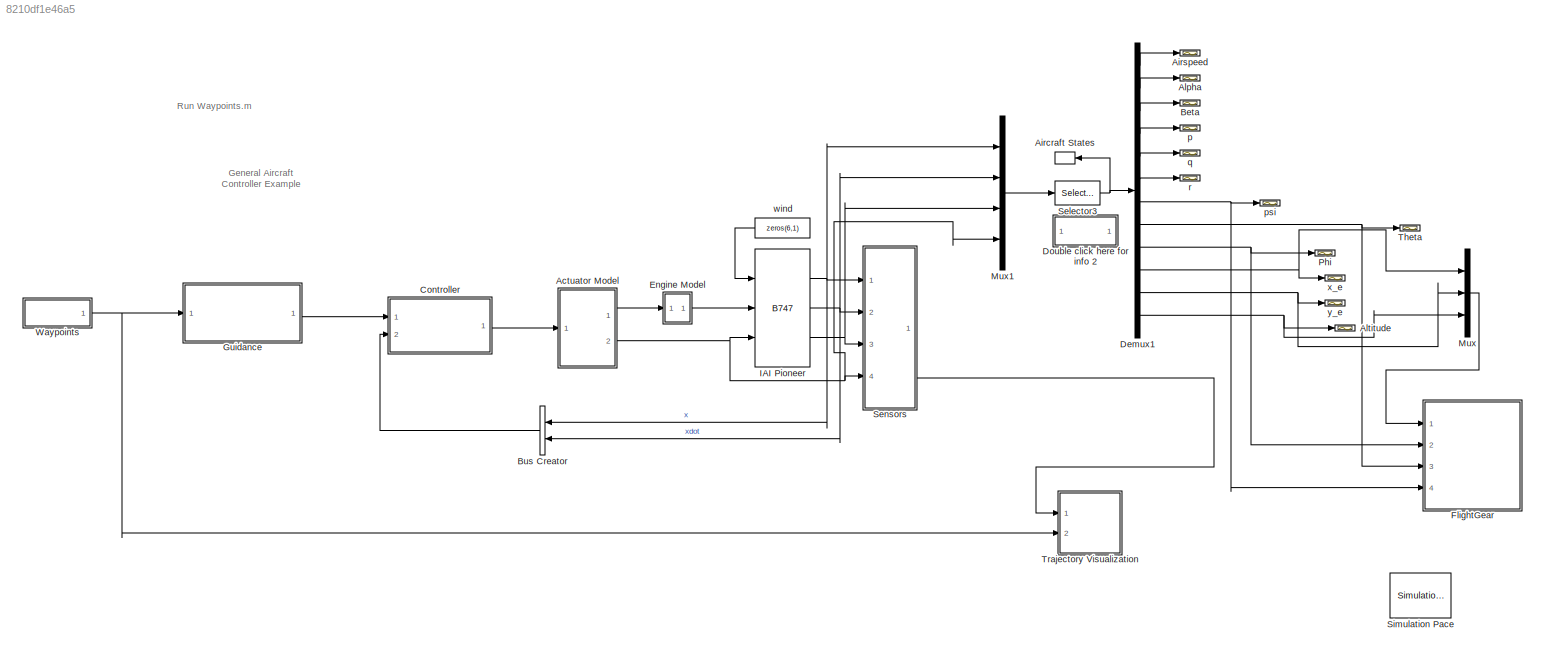
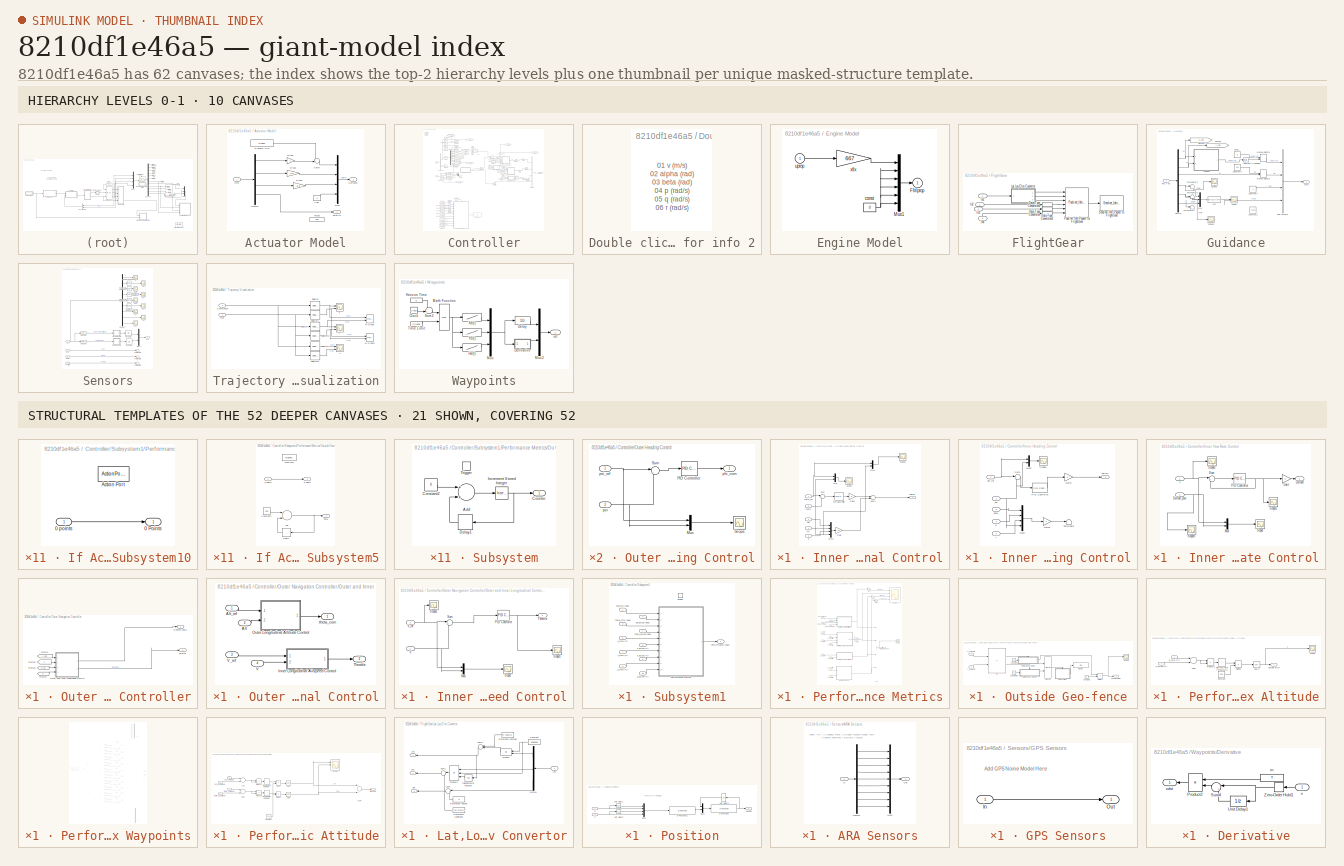
[diagram: thumbnail index - top-2 hierarchy levels (10 canvases) + 21 structural-template representatives of the remaining 52 canvases]
MODEL slx_8210df1e46a5
KIND model
CONFIG AbsTol = auto
CONFIG EnableMultiTasking = on
CONFIG FixedStep = T
CONFIG InitFcn = Waypoints\nRollPitchTracking_Stab_ControlPioneer
CONFIG MaxStep = auto
CONFIG MinStep = auto
CONFIG RelTol = 1e-3
CONFIG SampleTimeConstraint = Unconstrained
CONFIG Solver = VariableStepAuto
CONFIG SolverName = VariableStepAuto
CONFIG StartTime = 0
CONFIG StopTime = 445
BLOCK [Reference]  IAI Pioneer   REF=airlib/B747  (lib defined in mdl_00852699f85c, mdl_b3a2112ccc5d, +1 more)
  Ports = [3, 3]
  SourceBlock = airlib/B747
  SourceType = General Nonlinear Aircraft Model
BLOCK [SubSystem] Actuator Model
  Ports = [1, 2]
  RequestExecContextInheritance = off
BLOCK [Demux] Actuator Model/Demux
  Outputs = [1 1 1 1]
  Ports = [1, 4]
BLOCK [Constant] Actuator Model/Elevator Trim
  Value = 0.0493
BLOCK [Mux] Actuator Model/Mux1
  Ports = [4, 1]
BLOCK [Sum] Actuator Model/Sum5
  IconShape = round
  Inputs = ++|
  Ports = [2, 1]
BLOCK [Outport] Actuator Model/Surfaces
  IconDisplay = Port number
  Port = 2
BLOCK [Outport] Actuator Model/Throttle
  IconDisplay = Port number
BLOCK [Constant] Actuator Model/Thrust
  Value = 0.36
BLOCK [Inport] Actuator Model/cmd
  IconDisplay = Port number
BLOCK [Constant] Actuator Model/flap
  Value = 0
BLOCK [Gain] Actuator Model/wind1
  Gain = -1
BLOCK [Gain] Actuator Model/wind2
  Gain = -1/3
BLOCK [Gain] Actuator Model/wind4
  Gain = -1/3
BLOCK [ToWorkspace] Aircraft States
  Ports = [1]
  SampleTime = 0.05
  VariableName = x
BLOCK [Scope] Airspeed
  Floating = off
  NumInputPorts = 1
  Ports = [1]
  ScopeSpecificationString = Simulink.scopes.TimeScopeBlockCfg('CurrentConfiguration', extmgr.ConfigurationSet(extmgr.Configuration('Core','General UI',true),extmgr.Configuration('Core','Source UI',true),extmgr.Configuration('Sources','WiredSimulink',true,'DataLoggingVariableName','ScopeData2','DataLoggingSaveFormat','StructureWithTime','DataLoggingLimitDataPoints',true,'DataLoggingDecimation','1','DataLoggingDecimateData',tr...<+1776ch>
BLOCK [Scope] Alpha
  Floating = off
  NumInputPorts = 1
  Ports = [1]
  ScopeSpecificationString = Simulink.scopes.TimeScopeBlockCfg('CurrentConfiguration', extmgr.ConfigurationSet(extmgr.Configuration('Core','General UI',true),extmgr.Configuration('Core','Source UI',true),extmgr.Configuration('Sources','WiredSimulink',true,'DataLoggingVariableName','ScopeData3','DataLoggingSaveFormat','StructureWithTime','DataLoggingLimitDataPoints',true,'DataLoggingDecimation','1','DataLoggingDecimateData',tr...<+1780ch>
BLOCK [Scope] Altitude
  Floating = off
  NumInputPorts = 1
  Ports = [1]
  ScopeSpecificationString = Simulink.scopes.TimeScopeBlockCfg('CurrentConfiguration', extmgr.ConfigurationSet(extmgr.Configuration('Core','General UI',true),extmgr.Configuration('Core','Source UI',true),extmgr.Configuration('Sources','WiredSimulink',true,'DataLoggingVariableName','ScopeData4','DataLoggingSaveFormat','StructureWithTime','DataLoggingLimitDataPoints',true,'DataLoggingDecimation','1','DataLoggingDecimateData',tr...<+1856ch>
BLOCK [Scope] Beta
  Floating = off
  NumInputPorts = 1
  Ports = [1]
  ScopeSpecificationString = Simulink.scopes.TimeScopeBlockCfg('CurrentConfiguration', extmgr.ConfigurationSet(extmgr.Configuration('Core','General UI',true),extmgr.Configuration('Core','Source UI',true),extmgr.Configuration('Sources','WiredSimulink',true,'DataLoggingVariableName','ScopeData5','DataLoggingSaveFormat','StructureWithTime','DataLoggingLimitDataPoints',true,'DataLoggingDecimation','1','DataLoggingDecimateData',tr...<+1807ch>
BLOCK [BusCreator] Bus Creator
  DisplayOption = bar
  InheritFromInputs = on
  Inputs = 2
  Ports = [2, 1]
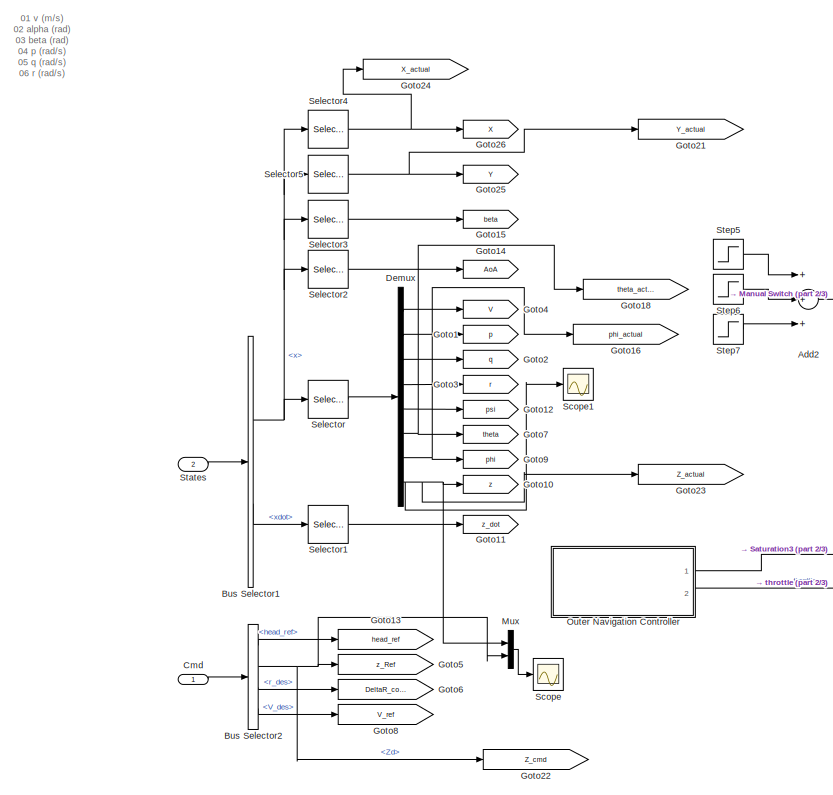
[diagram: Controller - part 1/3, top left region]
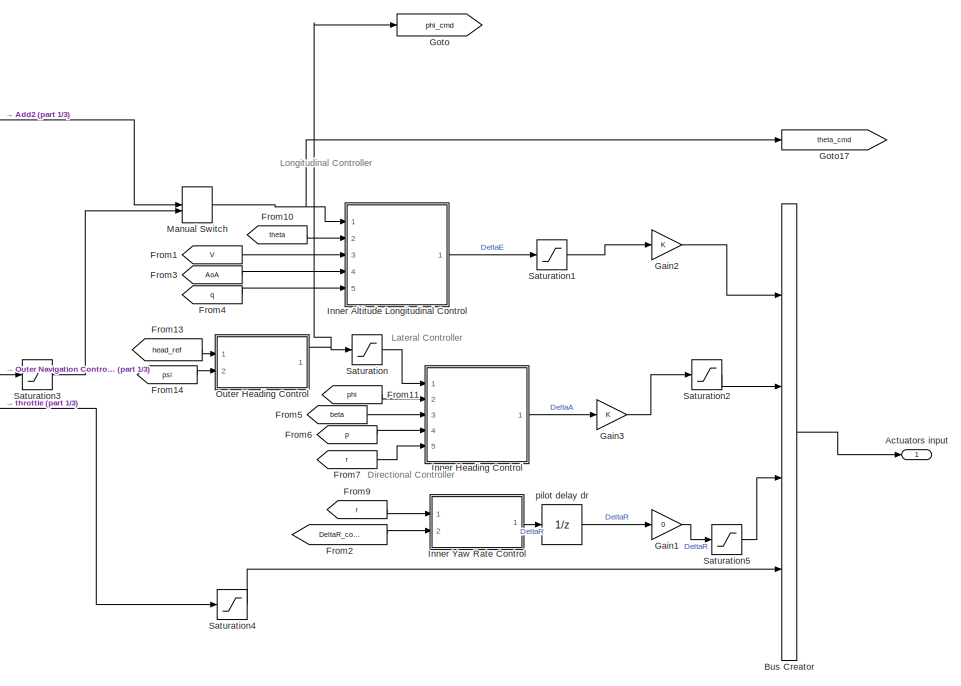
[diagram: Controller - part 2/3, middle right region]
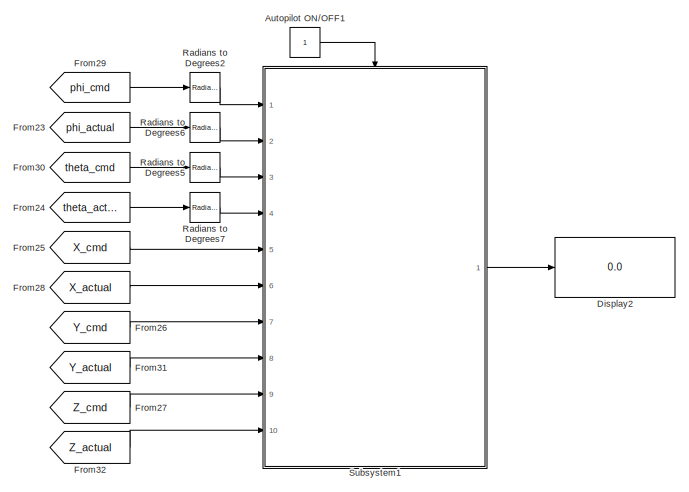
[diagram: Controller - part 3/3, bottom left region]
BLOCK [SubSystem] Controller
  Ports = [2, 1]
  RequestExecContextInheritance = off
BLOCK [Outport] Controller/Actuators input
  IconDisplay = Port number
BLOCK [Sum] Controller/Add2
  InputSameDT = off
  Inputs = +++
  OutDataTypeStr = Inherit: Inherit via internal rule
  Ports = [3, 1]
  SaturateOnIntegerOverflow = off
BLOCK [Constant] Controller/Autopilot ON//OFF1
BLOCK [BusCreator] Controller/Bus Creator
  DisplayOption = bar
  InheritFromInputs = on
  Inputs = 4
  Ports = [4, 1]
BLOCK [BusSelector] Controller/Bus Selector1
  OutputAsBus = off
  OutputSignals = x,xdot
  Ports = [1, 2]
BLOCK [BusSelector] Controller/Bus Selector2
  OutputAsBus = off
  OutputSignals = head_ref,Zd,r_des,V_des
  Ports = [1, 4]
BLOCK [Inport] Controller/Cmd
  IconDisplay = Port number
BLOCK [Demux] Controller/Demux
  DisplayOption = bar
  Outputs = 8
  Ports = [1, 8]
BLOCK [Display] Controller/Display2
  Decimation = 1
  Ports = [1]
BLOCK [From] Controller/From1
  CloseFcn = tagdialog Close
  GotoTag = V
  TagVisibility = global
BLOCK [From] Controller/From10
  CloseFcn = tagdialog Close
  GotoTag = theta
BLOCK [From] Controller/From11
  CloseFcn = tagdialog Close
  GotoTag = phi
BLOCK [From] Controller/From13
  CloseFcn = tagdialog Close
  GotoTag = head_ref
  TagVisibility = global
BLOCK [From] Controller/From14
  CloseFcn = tagdialog Close
  GotoTag = psi
BLOCK [From] Controller/From2
  CloseFcn = tagdialog Close
  GotoTag = DeltaR_comm
  TagVisibility = global
BLOCK [From] Controller/From23
  GotoTag = phi_actual
BLOCK [From] Controller/From24
  GotoTag = theta_actual
BLOCK [From] Controller/From25
  GotoTag = X_cmd
  TagVisibility = global
BLOCK [From] Controller/From26
  GotoTag = Y_cmd
  TagVisibility = global
BLOCK [From] Controller/From27
  GotoTag = Z_cmd
BLOCK [From] Controller/From28
  GotoTag = X_actual
BLOCK [From] Controller/From29
  GotoTag = phi_cmd
BLOCK [From] Controller/From3
  CloseFcn = tagdialog Close
  GotoTag = AoA
  TagVisibility = global
BLOCK [From] Controller/From30
  GotoTag = theta_cmd
BLOCK [From] Controller/From31
  GotoTag = Y_actual
BLOCK [From] Controller/From32
  GotoTag = Z_actual
BLOCK [From] Controller/From4
  CloseFcn = tagdialog Close
  GotoTag = q
BLOCK [From] Controller/From5
  CloseFcn = tagdialog Close
  GotoTag = beta
  TagVisibility = global
BLOCK [From] Controller/From6
  CloseFcn = tagdialog Close
  GotoTag = p
BLOCK [From] Controller/From7
  CloseFcn = tagdialog Close
  GotoTag = r
BLOCK [From] Controller/From9
  CloseFcn = tagdialog Close
  GotoTag = r
BLOCK [Gain] Controller/Gain1
  Gain = 0
  OutDataTypeStr = Inherit: Inherit via internal rule
  ParamDataTypeStr = Inherit: Inherit via internal rule
  SaturateOnIntegerOverflow = off
BLOCK [Gain] Controller/Gain2
  OutDataTypeStr = Inherit: Inherit via internal rule
  ParamDataTypeStr = Inherit: Inherit via internal rule
  SaturateOnIntegerOverflow = off
BLOCK [Gain] Controller/Gain3
  OutDataTypeStr = Inherit: Inherit via internal rule
  ParamDataTypeStr = Inherit: Inherit via internal rule
  SaturateOnIntegerOverflow = off
BLOCK [Goto] Controller/Goto
  GotoTag = phi_cmd
BLOCK [Goto] Controller/Goto1
  GotoTag = p
BLOCK [Goto] Controller/Goto10
  GotoTag = z
  TagVisibility = global
BLOCK [Goto] Controller/Goto11
  GotoTag = z_dot
BLOCK [Goto] Controller/Goto12
  GotoTag = psi
BLOCK [Goto] Controller/Goto13
  GotoTag = head_ref
  TagVisibility = global
BLOCK [Goto] Controller/Goto14
  GotoTag = AoA
  TagVisibility = global
BLOCK [Goto] Controller/Goto15
  GotoTag = beta
  TagVisibility = global
BLOCK [Goto] Controller/Goto16
  GotoTag = phi_actual
BLOCK [Goto] Controller/Goto17
  GotoTag = theta_cmd
BLOCK [Goto] Controller/Goto18
  GotoTag = theta_actual
BLOCK [Goto] Controller/Goto2
  GotoTag = q
BLOCK [Goto] Controller/Goto21
  GotoTag = Y_actual
BLOCK [Goto] Controller/Goto22
  GotoTag = Z_cmd
BLOCK [Goto] Controller/Goto23
  GotoTag = Z_actual
BLOCK [Goto] Controller/Goto24
  GotoTag = X_actual
BLOCK [Goto] Controller/Goto25
  GotoTag = Y
  TagVisibility = global
BLOCK [Goto] Controller/Goto26
  GotoTag = X
  TagVisibility = global
BLOCK [Goto] Controller/Goto3
  GotoTag = r
BLOCK [Goto] Controller/Goto4
  GotoTag = V
  TagVisibility = global
BLOCK [Goto] Controller/Goto5
  GotoTag = z_Ref
  TagVisibility = global
BLOCK [Goto] Controller/Goto6
  GotoTag = DeltaR_comm
  TagVisibility = global
BLOCK [Goto] Controller/Goto7
  GotoTag = theta
BLOCK [Goto] Controller/Goto8
  GotoTag = V_ref
  TagVisibility = global
BLOCK [Goto] Controller/Goto9
  GotoTag = phi
BLOCK [SubSystem] Controller/Inner Altitude Longitudinal Control
  Ports = [5, 1]
  RequestExecContextInheritance = off
  TreatAsAtomicUnit = on
BLOCK [Inport] Controller/Inner Altitude Longitudinal Control/AoA
  IconDisplay = Port number
  Port = 4
BLOCK [Gain] Controller/Inner Altitude Longitudinal Control/Gain
  Gain = -K1
  Multiplication = Matrix(K*u)
  OutDataTypeStr = Inherit: Inherit via internal rule
  ParamDataTypeStr = Inherit: Inherit via internal rule
  SaturateOnIntegerOverflow = off
BLOCK [Gain] Controller/Inner Altitude Longitudinal Control/Gain1
  OutDataTypeStr = Inherit: Inherit via internal rule
  ParamDataTypeStr = Inherit: Inherit via internal rule
  SaturateOnIntegerOverflow = off
BLOCK [Mux] Controller/Inner Altitude Longitudinal Control/Mux
  DisplayOption = bar
  Inputs = 2
  Ports = [2, 1]
BLOCK [Mux] Controller/Inner Altitude Longitudinal Control/Mux1
  DisplayOption = bar
  Ports = [4, 1]
BLOCK [Mux] Controller/Inner Altitude Longitudinal Control/Mux2
  DisplayOption = bar
  Inputs = 2
  Ports = [2, 1]
BLOCK [Reference] Controller/Inner Altitude Longitudinal Control/PID Controller  REF=simulink/Continuous/PID Controller
  Ports = [1, 1]
  SourceBlock = simulink/Continuous/PID Controller
  SourceProductBaseCode = SL
  SourceProductName = Simulink
  SourceType = PID 1dof
BLOCK [Scope] Controller/Inner Altitude Longitudinal Control/Scope
  Floating = off
  NumInputPorts = 1
  Ports = [1]
  ScopeSpecificationString = Simulink.scopes.TimeScopeBlockCfg('CurrentConfiguration', extmgr.ConfigurationSet(extmgr.Configuration('Core','General UI',true),extmgr.Configuration('Core','Source UI',true),extmgr.Configuration('Sources','WiredSimulink',true,'DataLoggingVariableName','ScopeData14'),extmgr.Configuration('Visuals','Time Domain',true,'SerializedDisplays',{struct('MinYLimReal','-0.22018','MaxYLimReal','0.4946','YLab...<+1446ch>
BLOCK [Scope] Controller/Inner Altitude Longitudinal Control/Scope1
  Floating = off
  NumInputPorts = 1
  Ports = [1]
  ScopeSpecificationString = Simulink.scopes.TimeScopeBlockCfg('CurrentConfiguration', extmgr.ConfigurationSet(extmgr.Configuration('Core','General UI',true),extmgr.Configuration('Core','Source UI',true),extmgr.Configuration('Sources','WiredSimulink',true,'DataLoggingVariableName','ScopeData1'),extmgr.Configuration('Visuals','Time Domain',true,'SerializedDisplays',{struct('MinYLimReal','-0.62256','MaxYLimReal','0.65234','YLab...<+1376ch>
BLOCK [Sum] Controller/Inner Altitude Longitudinal Control/Sum
  IconShape = round
  InputSameDT = off
  Inputs = |+-
  OutDataTypeStr = Inherit: Inherit via internal rule
  Ports = [2, 1]
  SaturateOnIntegerOverflow = off
BLOCK [Sum] Controller/Inner Altitude Longitudinal Control/Sum1
  InputSameDT = off
  OutDataTypeStr = Inherit: Inherit via internal rule
  Ports = [2, 1]
  SaturateOnIntegerOverflow = off
BLOCK [Inport] Controller/Inner Altitude Longitudinal Control/Vel
  IconDisplay = Port number
  Port = 3
BLOCK [Outport] Controller/Inner Altitude Longitudinal Control/deltaE
  IconDisplay = Port number
BLOCK [Inport] Controller/Inner Altitude Longitudinal Control/q
  IconDisplay = Port number
  Port = 5
BLOCK [Inport] Controller/Inner Altitude Longitudinal Control/theta
  IconDisplay = Port number
  Port = 2
BLOCK [Inport] Controller/Inner Altitude Longitudinal Control/theta_ref
  IconDisplay = Port number
BLOCK [SubSystem] Controller/Inner Heading Control
  Ports = [5, 1]
  RequestExecContextInheritance = off
  TreatAsAtomicUnit = on
BLOCK [Gain] Controller/Inner Heading Control/Gain1
  OutDataTypeStr = Inherit: Inherit via internal rule
  ParamDataTypeStr = Inherit: Inherit via internal rule
  SaturateOnIntegerOverflow = off
BLOCK [Gain] Controller/Inner Heading Control/Gain2
  Gain = 0
  Multiplication = Matrix(K*u)
  OutDataTypeStr = Inherit: Inherit via internal rule
  ParamDataTypeStr = Inherit: Inherit via internal rule
  SaturateOnIntegerOverflow = off
BLOCK [Mux] Controller/Inner Heading Control/Mux2
  DisplayOption = bar
  Ports = [4, 1]
BLOCK [Mux] Controller/Inner Heading Control/Mux3
  DisplayOption = bar
  Inputs = 2
  Ports = [2, 1]
BLOCK [Reference] Controller/Inner Heading Control/PID Controller  REF=simulink/Continuous/PID Controller
  Ports = [1, 1]
  SourceBlock = simulink/Continuous/PID Controller
  SourceProductBaseCode = SL
  SourceProductName = Simulink
  SourceType = PID 1dof
BLOCK [Scope] Controller/Inner Heading Control/Scope1
  Floating = off
  NumInputPorts = 1
  Ports = [1]
  ScopeSpecificationString = Simulink.scopes.TimeScopeBlockCfg('CurrentConfiguration', extmgr.ConfigurationSet(extmgr.Configuration('Core','General UI',true),extmgr.Configuration('Core','Source UI',true),extmgr.Configuration('Sources','WiredSimulink',true,'DataLoggingVariableName','ScopeData1'),extmgr.Configuration('Visuals','Time Domain',true,'SerializedDisplays',{struct('MinYLimReal','-1.15961','MaxYLimReal','1.80102','YLab...<+1445ch>
BLOCK [Sum] Controller/Inner Heading Control/Sum1
  IconShape = round
  InputSameDT = off
  Inputs = |+-
  OutDataTypeStr = Inherit: Inherit via internal rule
  Ports = [2, 1]
  SaturateOnIntegerOverflow = off
BLOCK [Terminator] Controller/Inner Heading Control/Terminator
BLOCK [Inport] Controller/Inner Heading Control/beta
  IconDisplay = Port number
  Port = 3
BLOCK [Outport] Controller/Inner Heading Control/deltaA
  IconDisplay = Port number
BLOCK [Inport] Controller/Inner Heading Control/p
  IconDisplay = Port number
  Port = 4
BLOCK [Inport] Controller/Inner Heading Control/phi
  IconDisplay = Port number
  Port = 2
BLOCK [Inport] Controller/Inner Heading Control/phi_ref
  IconDisplay = Port number
BLOCK [Inport] Controller/Inner Heading Control/r
  IconDisplay = Port number
  Port = 5
BLOCK [SubSystem] Controller/Inner Yaw Rate Control
  Ports = [2, 1]
  RequestExecContextInheritance = off
  TreatAsAtomicUnit = on
BLOCK [Outport] Controller/Inner Yaw Rate Control/DeltaR
  IconDisplay = Port number
BLOCK [Inport] Controller/Inner Yaw Rate Control/DeltaR_com
  IconDisplay = Port number
  Port = 2
BLOCK [Gain] Controller/Inner Yaw Rate Control/Gain
  OutDataTypeStr = Inherit: Inherit via internal rule
  ParamDataTypeStr = Inherit: Inherit via internal rule
  SaturateOnIntegerOverflow = off
BLOCK [Mux] Controller/Inner Yaw Rate Control/Mux
  DisplayOption = bar
  Inputs = 2
  Ports = [2, 1]
BLOCK [Reference] Controller/Inner Yaw Rate Control/PID Controller  REF=simulink/Continuous/PID Controller
  Ports = [1, 1]
  SourceBlock = simulink/Continuous/PID Controller
  SourceProductBaseCode = SL
  SourceProductName = Simulink
  SourceType = PID 1dof
BLOCK [Scope] Controller/Inner Yaw Rate Control/Scope
  Floating = off
  NumInputPorts = 1
  Ports = [1]
  ScopeSpecificationString = Simulink.scopes.TimeScopeBlockCfg('CurrentConfiguration', extmgr.ConfigurationSet(extmgr.Configuration('Core','General UI',true),extmgr.Configuration('Core','Source UI',true),extmgr.Configuration('Sources','WiredSimulink',true,'DataLoggingVariableName','ScopeData2'),extmgr.Configuration('Visuals','Time Domain',true,'SerializedDisplays',{struct('MinYLimReal','-0.87599','MaxYLimReal','0.88801','YLab...<+1446ch>
BLOCK [Scope] Controller/Inner Yaw Rate Control/Scope1
  Floating = off
  NumInputPorts = 1
  Ports = [1]
  ScopeSpecificationString = Simulink.scopes.TimeScopeBlockCfg('CurrentConfiguration', extmgr.ConfigurationSet(extmgr.Configuration('Core','General UI',true),extmgr.Configuration('Core','Source UI',true),extmgr.Configuration('Sources','WiredSimulink',true,'DataLoggingVariableName','ScopeData3'),extmgr.Configuration('Visuals','Time Domain',true,'SerializedDisplays',{struct('MinYLimReal','-0.00042','MaxYLimReal','0.00042','YLab...<+1446ch>
BLOCK [Scope] Controller/Inner Yaw Rate Control/Scope2
  Floating = off
  NumInputPorts = 1
  Ports = [1]
  ScopeSpecificationString = Simulink.scopes.TimeScopeBlockCfg('CurrentConfiguration', extmgr.ConfigurationSet(extmgr.Configuration('Core','General UI',true),extmgr.Configuration('Core','Source UI',true),extmgr.Configuration('Sources','WiredSimulink',true,'DataLoggingVariableName','ScopeData1'),extmgr.Configuration('Visuals','Time Domain',true,'SerializedDisplays',{struct('MinYLimReal','-0.87599','MaxYLimReal','0.88801','YLab...<+1433ch>
BLOCK [Scope] Controller/Inner Yaw Rate Control/Scope3
  Floating = off
  NumInputPorts = 1
  Ports = [1]
  ScopeSpecificationString = Simulink.scopes.TimeScopeBlockCfg('CurrentConfiguration', extmgr.ConfigurationSet(extmgr.Configuration('Core','General UI',true),extmgr.Configuration('Core','Source UI',true),extmgr.Configuration('Sources','WiredSimulink',true,'DataLoggingVariableName','ScopeData2'),extmgr.Configuration('Visuals','Time Domain',true,'SerializedDisplays',{struct('MinYLimReal','0.9','MaxYLimReal','1.1','YLabelReal','...<+1408ch>
BLOCK [Sum] Controller/Inner Yaw Rate Control/Sum
  IconShape = round
  InputSameDT = off
  Inputs = |+-
  OutDataTypeStr = Inherit: Inherit via internal rule
  Ports = [2, 1]
  SaturateOnIntegerOverflow = off
BLOCK [Inport] Controller/Inner Yaw Rate Control/r
  IconDisplay = Port number
BLOCK [ManualSwitch] Controller/Manual Switch
  CurrentSetting = 0
BLOCK [Mux] Controller/Mux
  DisplayOption = bar
  Inputs = 2
  Ports = [2, 1]
BLOCK [SubSystem] Controller/Outer Heading Control
  Ports = [2, 1]
  RequestExecContextInheritance = off
  TreatAsAtomicUnit = on
BLOCK [Mux] Controller/Outer Heading Control/Mux
  DisplayOption = bar
  Inputs = 2
  Ports = [2, 1]
BLOCK [Reference] Controller/Outer Heading Control/PID Controller  REF=simulink/Continuous/PID Controller
  Ports = [1, 1]
  SourceBlock = simulink/Continuous/PID Controller
  SourceProductBaseCode = SL
  SourceProductName = Simulink
  SourceType = PID 1dof
BLOCK [Scope] Controller/Outer Heading Control/Scope
  Floating = off
  NumInputPorts = 1
  Ports = [1]
  ScopeSpecificationString = Simulink.scopes.TimeScopeBlockCfg('CurrentConfiguration', extmgr.ConfigurationSet(extmgr.Configuration('Core','General UI',true),extmgr.Configuration('Core','Source UI',true),extmgr.Configuration('Sources','WiredSimulink',true,'DataLoggingVariableName','ScopeData4'),extmgr.Configuration('Visuals','Time Domain',true,'SerializedDisplays',{struct('MinYLimReal','-1.31691','MaxYLimReal','10.67235','YLa...<+1449ch>
BLOCK [Sum] Controller/Outer Heading Control/Sum
  IconShape = round
  InputSameDT = off
  Inputs = |+-
  OutDataTypeStr = Inherit: Inherit via internal rule
  Ports = [2, 1]
  SaturateOnIntegerOverflow = off
BLOCK [Outport] Controller/Outer Heading Control/phi_com
  IconDisplay = Port number
BLOCK [Inport] Controller/Outer Heading Control/psi
  IconDisplay = Port number
  Port = 2
BLOCK [Inport] Controller/Outer Heading Control/psi_ref
  IconDisplay = Port number
BLOCK [SubSystem] Controller/Outer Navigation Controller
  Ports = [0, 2]
  RequestExecContextInheritance = off
BLOCK [Outport] Controller/Outer Navigation Controller/Desired Theta
  IconDisplay = Port number
BLOCK [From] Controller/Outer Navigation Controller/From18
  CloseFcn = tagdialog Close
  GotoTag = V_ref
  TagVisibility = global
BLOCK [From] Controller/Outer Navigation Controller/From19
  CloseFcn = tagdialog Close
  GotoTag = V
  TagVisibility = global
BLOCK [From] Controller/Outer Navigation Controller/From20
  CloseFcn = tagdialog Close
  GotoTag = z
  TagVisibility = global
BLOCK [From] Controller/Outer Navigation Controller/From21
  CloseFcn = tagdialog Close
  GotoTag = z_Ref
  TagVisibility = global
BLOCK [SubSystem] Controller/Outer Navigation Controller/Outer and Inner Longitudinal Control
  Ports = [4, 2]
  RequestExecContextInheritance = off
  TreatAsAtomicUnit = on
BLOCK [Inport] Controller/Outer Navigation Controller/Outer and Inner Longitudinal Control/Alt
  IconDisplay = Port number
  Port = 2
BLOCK [Inport] Controller/Outer Navigation Controller/Outer and Inner Longitudinal Control/Alt_ref
  IconDisplay = Port number
BLOCK [SubSystem] Controller/Outer Navigation Controller/Outer and Inner Longitudinal Control/Inner Longitudinal Airspeed Control
  Ports = [2, 1]
  RequestExecContextInheritance = off
  TreatAsAtomicUnit = on
BLOCK [Mux] Controller/Outer Navigation Controller/Outer and Inner Longitudinal Control/Inner Longitudinal Airspeed Control/Mux
  DisplayOption = bar
  Inputs = 2
  Ports = [2, 1]
BLOCK [Reference] Controller/Outer Navigation Controller/Outer and Inner Longitudinal Control/Inner Longitudinal Airspeed Control/PID Controller  REF=simulink/Continuous/PID Controller
  Ports = [1, 1]
  SourceBlock = simulink/Continuous/PID Controller
  SourceProductBaseCode = SL
  SourceProductName = Simulink
  SourceType = PID 1dof
BLOCK [Scope] Controller/Outer Navigation Controller/Outer and Inner Longitudinal Control/Inner Longitudinal Airspeed Control/Scope
  Floating = off
  NumInputPorts = 1
  Ports = [1]
  ScopeSpecificationString = Simulink.scopes.TimeScopeBlockCfg('CurrentConfiguration', extmgr.ConfigurationSet(extmgr.Configuration('Core','General UI',true),extmgr.Configuration('Core','Source UI',true),extmgr.Configuration('Sources','WiredSimulink',true,'DataLoggingVariableName','ScopeData2'),extmgr.Configuration('Visuals','Time Domain',true,'SerializedDisplays',{struct('MinYLimReal','4.83856','MaxYLimReal','68.61144','YLab...<+1414ch>
BLOCK [Scope] Controller/Outer Navigation Controller/Outer and Inner Longitudinal Control/Inner Longitudinal Airspeed Control/Scope1
  Floating = off
  NumInputPorts = 1
  Ports = [1]
  ScopeSpecificationString = Simulink.scopes.TimeScopeBlockCfg('CurrentConfiguration', extmgr.ConfigurationSet(extmgr.Configuration('Core','General UI',true),extmgr.Configuration('Core','Source UI',true),extmgr.Configuration('Sources','WiredSimulink',true,'DataLoggingVariableName','ScopeData3'),extmgr.Configuration('Visuals','Time Domain',true,'SerializedDisplays',{struct('MinYLimReal','-41.77593','MaxYLimReal','12.29994','YL...<+1432ch>
BLOCK [Scope] Controller/Outer Navigation Controller/Outer and Inner Longitudinal Control/Inner Longitudinal Airspeed Control/Scope2
  Floating = off
  NumInputPorts = 1
  Ports = [1]
  ScopeSpecificationString = Simulink.scopes.TimeScopeBlockCfg('CurrentConfiguration', extmgr.ConfigurationSet(extmgr.Configuration('Core','General UI',true),extmgr.Configuration('Core','Source UI',true),extmgr.Configuration('Sources','WiredSimulink',true,'DataLoggingVariableName','ScopeData4'),extmgr.Configuration('Visuals','Time Domain',true,'SerializedDisplays',{struct('MinYLimReal','27.46954','MaxYLimReal','42.67005','YLa...<+1424ch>
BLOCK [Sum] Controller/Outer Navigation Controller/Outer and Inner Longitudinal Control/Inner Longitudinal Airspeed Control/Sum
  IconShape = round
  InputSameDT = off
  Inputs = |+-
  OutDataTypeStr = Inherit: Inherit via internal rule
  Ports = [2, 1]
  SaturateOnIntegerOverflow = off
BLOCK [Outport] Controller/Outer Navigation Controller/Outer and Inner Longitudinal Control/Inner Longitudinal Airspeed Control/Throttle
  IconDisplay = Port number
BLOCK [Inport] Controller/Outer Navigation Controller/Outer and Inner Longitudinal Control/Inner Longitudinal Airspeed Control/V
  IconDisplay = Port number
  Port = 2
BLOCK [Inport] Controller/Outer Navigation Controller/Outer and Inner Longitudinal Control/Inner Longitudinal Airspeed Control/V_ref
  IconDisplay = Port number
BLOCK [SubSystem] Controller/Outer Navigation Controller/Outer and Inner Longitudinal Control/Outer Longitudinal Altitude Control
  Ports = [2, 1]
  RequestExecContextInheritance = off
  TreatAsAtomicUnit = on
BLOCK [Inport] Controller/Outer Navigation Controller/Outer and Inner Longitudinal Control/Outer Longitudinal Altitude Control/Alt
  IconDisplay = Port number
  Port = 2
BLOCK [Inport] Controller/Outer Navigation Controller/Outer and Inner Longitudinal Control/Outer Longitudinal Altitude Control/Alt_ref
  IconDisplay = Port number
BLOCK [Mux] Controller/Outer Navigation Controller/Outer and Inner Longitudinal Control/Outer Longitudinal Altitude Control/Mux
  DisplayOption = bar
  Inputs = 2
  Ports = [2, 1]
BLOCK [Reference] Controller/Outer Navigation Controller/Outer and Inner Longitudinal Control/Outer Longitudinal Altitude Control/PID Controller  REF=simulink/Continuous/PID Controller
  Ports = [1, 1]
  SourceBlock = simulink/Continuous/PID Controller
  SourceProductBaseCode = SL
  SourceProductName = Simulink
  SourceType = PID 1dof
BLOCK [Scope] Controller/Outer Navigation Controller/Outer and Inner Longitudinal Control/Outer Longitudinal Altitude Control/Scope
  Floating = off
  NumInputPorts = 1
  Ports = [1]
  ScopeSpecificationString = Simulink.scopes.TimeScopeBlockCfg('CurrentConfiguration', extmgr.ConfigurationSet(extmgr.Configuration('Core','General UI',true),extmgr.Configuration('Core','Source UI',true),extmgr.Configuration('Sources','WiredSimulink',true,'DataLoggingVariableName','ScopeData1'),extmgr.Configuration('Visuals','Time Domain',true,'SerializedDisplays',{struct('MinYLimReal','218.03315','MaxYLimReal','222.60692','Y...<+1460ch>
BLOCK [Sum] Controller/Outer Navigation Controller/Outer and Inner Longitudinal Control/Outer Longitudinal Altitude Control/Sum
  IconShape = round
  InputSameDT = off
  Inputs = |+-
  OutDataTypeStr = Inherit: Inherit via internal rule
  Ports = [2, 1]
  SaturateOnIntegerOverflow = off
BLOCK [Outport] Controller/Outer Navigation Controller/Outer and Inner Longitudinal Control/Outer Longitudinal Altitude Control/theta_com
  IconDisplay = Port number
BLOCK [Outport] Controller/Outer Navigation Controller/Outer and Inner Longitudinal Control/Throttle
  IconDisplay = Port number
  Port = 2
BLOCK [Inport] Controller/Outer Navigation Controller/Outer and Inner Longitudinal Control/V
  IconDisplay = Port number
  Port = 4
BLOCK [Inport] Controller/Outer Navigation Controller/Outer and Inner Longitudinal Control/V_ref
  IconDisplay = Port number
  Port = 3
BLOCK [Outport] Controller/Outer Navigation Controller/Outer and Inner Longitudinal Control/theta_com
  IconDisplay = Port number
BLOCK [Outport] Controller/Outer Navigation Controller/Throttle
  IconDisplay = Port number
  Port = 2
BLOCK [Reference] Controller/Radians to Degrees2  REF=simulink_extras/Transformations/Radians
to Degrees
  Ports = [1, 1]
  SourceBlock = simulink_extras/Transformations/Radians\nto Degrees
  SourceProductBaseCode = SL
  SourceProductName = Simulink
  SourceType = RadiansToDegrees
BLOCK [Reference] Controller/Radians to Degrees5  REF=simulink_extras/Transformations/Radians
to Degrees
  Ports = [1, 1]
  SourceBlock = simulink_extras/Transformations/Radians\nto Degrees
  SourceProductBaseCode = SL
  SourceProductName = Simulink
  SourceType = RadiansToDegrees
BLOCK [Reference] Controller/Radians to Degrees6  REF=simulink_extras/Transformations/Radians
to Degrees
  Ports = [1, 1]
  SourceBlock = simulink_extras/Transformations/Radians\nto Degrees
  SourceProductBaseCode = SL
  SourceProductName = Simulink
  SourceType = RadiansToDegrees
BLOCK [Reference] Controller/Radians to Degrees7  REF=simulink_extras/Transformations/Radians
to Degrees
  Ports = [1, 1]
  SourceBlock = simulink_extras/Transformations/Radians\nto Degrees
  SourceProductBaseCode = SL
  SourceProductName = Simulink
  SourceType = RadiansToDegrees
BLOCK [Saturate] Controller/Saturation
  InputPortMap = u0
  LowerLimit = -62*pi/180
  Ports = [1, 1]
  UpperLimit = 62*pi/180
BLOCK [Saturate] Controller/Saturation1
  InputPortMap = u0
  LowerLimit = -40*pi/180
  Ports = [1, 1]
  UpperLimit = 40*pi/180
BLOCK [Saturate] Controller/Saturation2
  InputPortMap = u0
  LowerLimit = -45*pi/180
  Ports = [1, 1]
  UpperLimit = 45*pi/180
BLOCK [Saturate] Controller/Saturation3
  InputPortMap = u0
  LowerLimit = -65*pi/180
  Ports = [1, 1]
  UpperLimit = 65*pi/180
BLOCK [Saturate] Controller/Saturation4
  InputPortMap = u0
  LowerLimit = 0
  Ports = [1, 1]
  UpperLimit = 1
BLOCK [Saturate] Controller/Saturation5
  InputPortMap = u0
  LowerLimit = -40*pi/180
  Ports = [1, 1]
  UpperLimit = 40*pi/180
BLOCK [Scope] Controller/Scope
  Floating = off
  NumInputPorts = 1
  Ports = [1]
  ScopeSpecificationString = Simulink.scopes.TimeScopeBlockCfg('CurrentConfiguration', extmgr.ConfigurationSet(extmgr.Configuration('Core','General UI',true),extmgr.Configuration('Core','Source UI',true),extmgr.Configuration('Sources','WiredSimulink',true,'DataLoggingVariableName','ScopeData1'),extmgr.Configuration('Visuals','Time Domain',true,'SerializedDisplays',{struct('MinYLimReal','218.56697','MaxYLimReal','222.07107','Y...<+1416ch>
BLOCK [Scope] Controller/Scope1
  Floating = off
  NumInputPorts = 1
  Ports = [1]
  ScopeSpecificationString = Simulink.scopes.TimeScopeBlockCfg('CurrentConfiguration', extmgr.ConfigurationSet(extmgr.Configuration('Core','General UI',true),extmgr.Configuration('Core','Source UI',true),extmgr.Configuration('Sources','WiredSimulink',true,'DataLoggingVariableName','ScopeData2'),extmgr.Configuration('Visuals','Time Domain',true,'SerializedDisplays',{struct('MinYLimReal','210.74127','MaxYLimReal','303.32269','Y...<+1410ch>
BLOCK [Selector] Controller/Selector
  IndexOptions = Index vector (dialog)
  Indices = [1 4 5 6 7 8 9 12]
  InputPortWidth = 12
  OutputSizes = 1
  Ports = [1, 1]
BLOCK [Selector] Controller/Selector1
  IndexOptions = Index vector (dialog)
  Indices = 12
  InputPortWidth = 12
  OutputSizes = 1
  Ports = [1, 1]
BLOCK [Selector] Controller/Selector2
  IndexOptions = Index vector (dialog)
  Indices = 2
  InputPortWidth = 12
  OutputSizes = 1
  Ports = [1, 1]
BLOCK [Selector] Controller/Selector3
  IndexOptions = Index vector (dialog)
  Indices = 3
  InputPortWidth = 12
  OutputSizes = 1
  Ports = [1, 1]
BLOCK [Selector] Controller/Selector4
  IndexOptions = Index vector (dialog)
  Indices = 10
  InputPortWidth = 12
  OutputSizes = 1
  Ports = [1, 1]
BLOCK [Selector] Controller/Selector5
  IndexOptions = Index vector (dialog)
  Indices = 11
  InputPortWidth = 12
  OutputSizes = 1
  Ports = [1, 1]
BLOCK [Inport] Controller/States
  IconDisplay = Port number
  Port = 2
BLOCK [Step] Controller/Step5
  After = 30*pi/180
BLOCK [Step] Controller/Step6
  After = -30*pi/180
  Before = 30*pi/180
  Time = 20
BLOCK [Step] Controller/Step7
  After = 0
  Before = -30*pi/180
  Time = 40
BLOCK [SubSystem] Controller/Subsystem1
  Ports = [10, 1, 1]
  RequestExecContextInheritance = off
BLOCK [EnablePort] Controller/Subsystem1/Enable
  Ports = []
BLOCK [Outport] Controller/Subsystem1/Performance Index
  IconDisplay = Port number
BLOCK [SubSystem] Controller/Subsystem1/Performance Metrics
  Ports = [10, 1]
  RequestExecContextInheritance = off
BLOCK [Sum] Controller/Subsystem1/Performance Metrics/Add
  InputSameDT = off
  Inputs = -+--
  OutDataTypeStr = Inherit: Inherit via internal rule
  Ports = [4, 1]
  SaturateOnIntegerOverflow = off
BLOCK [Gain] Controller/Subsystem1/Performance Metrics/Gain
  Gain = -1
  OutDataTypeStr = Inherit: Inherit via internal rule
  ParamDataTypeStr = Inherit: Inherit via internal rule
  SaturateOnIntegerOverflow = off
BLOCK [Gain] Controller/Subsystem1/Performance Metrics/Gain1
  Gain = -1
  OutDataTypeStr = Inherit: Inherit via internal rule
  ParamDataTypeStr = Inherit: Inherit via internal rule
  SaturateOnIntegerOverflow = off
BLOCK [Gain] Controller/Subsystem1/Performance Metrics/Gain2
  Gain = -1
  OutDataTypeStr = Inherit: Inherit via internal rule
  ParamDataTypeStr = Inherit: Inherit via internal rule
  SaturateOnIntegerOverflow = off
BLOCK [Gain] Controller/Subsystem1/Performance Metrics/Gain3
  Gain = 1/10
  OutDataTypeStr = Inherit: Inherit via internal rule
  ParamDataTypeStr = Inherit: Inherit via internal rule
  SaturateOnIntegerOverflow = off
BLOCK [SubSystem] Controller/Subsystem1/Performance Metrics/Outside Geo-fence
  Ports = [2, 1]
  RequestExecContextInheritance = off
BLOCK [Constant] Controller/Subsystem1/Performance Metrics/Outside Geo-fence/Constant14
  Value = 0
BLOCK [Constant] Controller/Subsystem1/Performance Metrics/Outside Geo-fence/Constant2
  Value = 5
BLOCK [Constant] Controller/Subsystem1/Performance Metrics/Outside Geo-fence/Constant9
  Value = 5
BLOCK [Display] Controller/Subsystem1/Performance Metrics/Outside Geo-fence/Display
  Decimation = 1
  Ports = [1]
BLOCK [SubSystem] Controller/Subsystem1/Performance Metrics/Outside Geo-fence/If Action Subsystem10
  Ports = [1, 1, 0, 0, 0, 0, 0, 1]
  RequestExecContextInheritance = off
  TreatAsAtomicUnit = on
BLOCK [Outport] Controller/Subsystem1/Performance Metrics/Outside Geo-fence/If Action Subsystem10/0 Points
  IconDisplay = Port number
BLOCK [Inport] Controller/Subsystem1/Performance Metrics/Outside Geo-fence/If Action Subsystem10/0 points  
  IconDisplay = Port number
BLOCK [ActionPort] Controller/Subsystem1/Performance Metrics/Outside Geo-fence/If Action Subsystem10/Action Port
  ActionType = else
  InitializeStates = reset
BLOCK [SubSystem] Controller/Subsystem1/Performance Metrics/Outside Geo-fence/If Action Subsystem5
  Ports = [1, 2, 0, 0, 0, 0, 0, 1]
  RequestExecContextInheritance = off
  TreatAsAtomicUnit = on
BLOCK [Outport] Controller/Subsystem1/Performance Metrics/Outside Geo-fence/If Action Subsystem5/5 Points
  IconDisplay = Port number
  Port = 2
BLOCK [Inport] Controller/Subsystem1/Performance Metrics/Outside Geo-fence/If Action Subsystem5/5 points  
  IconDisplay = Port number
BLOCK [ActionPort] Controller/Subsystem1/Performance Metrics/Outside Geo-fence/If Action Subsystem5/Action Port
  ActionType = then
BLOCK [Sum] Controller/Subsystem1/Performance Metrics/Outside Geo-fence/If Action Subsystem5/Add
  InputSameDT = off
  OutDataTypeStr = Inherit: Inherit via internal rule
  Ports = [2, 1]
  SaturateOnIntegerOverflow = off
BLOCK [Constant] Controller/Subsystem1/Performance Metrics/Outside Geo-fence/If Action Subsystem5/Constant2
  Value = 0.05
BLOCK [Delay] Controller/Subsystem1/Performance Metrics/Outside Geo-fence/If Action Subsystem5/Delay1
  DelayLength = 1
  InitialCondition = 0
  InputPortMap = u0
  Ports = [1, 1]
BLOCK [Outport] Controller/Subsystem1/Performance Metrics/Outside Geo-fence/If Action Subsystem5/Time
  IconDisplay = Port number
BLOCK [If] Controller/Subsystem1/Performance Metrics/Outside Geo-fence/If1
  IfExpression = u2<0 | u1<0 |  u2>2750 | u1>4750
  NumInputs = 2
  Ports = [2, 2]
BLOCK [Merge] Controller/Subsystem1/Performance Metrics/Outside Geo-fence/Merge
  Ports = [2, 1]
BLOCK [Product] Controller/Subsystem1/Performance Metrics/Outside Geo-fence/Multiply1
  InputSameDT = off
  OutDataTypeStr = Inherit: Inherit via internal rule
  Ports = [2, 1]
  RndMeth = Floor
  SaturateOnIntegerOverflow = off
BLOCK [Outport] Controller/Subsystem1/Performance Metrics/Outside Geo-fence/Penalty = f(time)
  IconDisplay = Port number
BLOCK [Scope] Controller/Subsystem1/Performance Metrics/Outside Geo-fence/Scope
  Floating = off
  NumInputPorts = 1
  Ports = [1]
  ScopeSpecificationString = Simulink.scopes.TimeScopeBlockCfg('CurrentConfiguration', extmgr.ConfigurationSet(extmgr.Configuration('Core','General UI',true),extmgr.Configuration('Core','Source UI',true),extmgr.Configuration('Sources','WiredSimulink',true,'DataLoggingVariableName','ScopeData2'),extmgr.Configuration('Visuals','Time Domain',true,'SerializedDisplays',{struct('MinYLimReal','-1.00000','MaxYLimReal','1.00000','YLab...<+1401ch>
BLOCK [SubSystem] Controller/Subsystem1/Performance Metrics/Outside Geo-fence/Subsystem
  Ports = [0, 1, 0, 1]
  RequestExecContextInheritance = off
BLOCK [Sum] Controller/Subsystem1/Performance Metrics/Outside Geo-fence/Subsystem/Add
  InputSameDT = off
  OutDataTypeStr = Inherit: Inherit via internal rule
  Ports = [2, 1]
  SaturateOnIntegerOverflow = off
BLOCK [Constant] Controller/Subsystem1/Performance Metrics/Outside Geo-fence/Subsystem/Constant2
  Value = 0
BLOCK [Outport] Controller/Subsystem1/Performance Metrics/Outside Geo-fence/Subsystem/Counter
  IconDisplay = Port number
BLOCK [Delay] Controller/Subsystem1/Performance Metrics/Outside Geo-fence/Subsystem/Delay1
  DelayLength = 1
  InitialCondition = 0
  InputPortMap = u0
  Ports = [1, 1]
BLOCK [Reference] Controller/Subsystem1/Performance Metrics/Outside Geo-fence/Subsystem/Increment Stored Integer  REF=simulink/Additional Math
& Discrete/Additional Math:
Increment - Decrement/Increment
Stored Integer
  Ports = [1, 1]
  SourceBlock = simulink/Additional Math\n& Discrete/Additional Math:\nIncrement - Decrement/Increment\nStored Integer
  SourceProductBaseCode = SL
  SourceProductName = Simulink
  SourceType = Stored Integer Value Increment
BLOCK [TriggerPort] Controller/Subsystem1/Performance Metrics/Outside Geo-fence/Subsystem/Trigger
  PortDimensions = 1
  Ports = []
  StatesWhenEnabling = held
  VariantControl = Variant
BLOCK [Inport] Controller/Subsystem1/Performance Metrics/Outside Geo-fence/X_actual (ft)
  IconDisplay = Port number
BLOCK [Inport] Controller/Subsystem1/Performance Metrics/Outside Geo-fence/Y_actual (ft)
  IconDisplay = Port number
  Port = 2
BLOCK [Outport] Controller/Subsystem1/Performance Metrics/Performance Index
  IconDisplay = Port number
BLOCK [SubSystem] Controller/Subsystem1/Performance Metrics/Performance Index Altitude
  Ports = [2, 1]
  RequestExecContextInheritance = off
BLOCK [Sum] Controller/Subsystem1/Performance Metrics/Performance Index Altitude/Add2
  InputSameDT = off
  Inputs = +-
  OutDataTypeStr = Inherit: Inherit via internal rule
  Ports = [2, 1]
  SaturateOnIntegerOverflow = off
BLOCK [Outport] Controller/Subsystem1/Performance Metrics/Performance Index Altitude/Altitude Error
  IconDisplay = Port number
BLOCK [Constant] Controller/Subsystem1/Performance Metrics/Performance Index Altitude/Constant
  Value = 600
BLOCK [DiscreteIntegrator] Controller/Subsystem1/Performance Metrics/Performance Index Altitude/Discrete-Time Integrator2
  ICPrevOutput = DiscIntNeverNeededParam
  ICPrevScaledInput = DiscIntNeverNeededParam
  Ports = [1, 1]
  SampleTime = -1
BLOCK [Product] Controller/Subsystem1/Performance Metrics/Performance Index Altitude/Divide2
  InputSameDT = off
  Inputs = */
  OutDataTypeStr = Inherit: Inherit via internal rule
  Ports = [2, 1]
  RndMeth = Floor
  SaturateOnIntegerOverflow = off
BLOCK [Product] Controller/Subsystem1/Performance Metrics/Performance Index Altitude/Product2
  InputSameDT = off
  OutDataTypeStr = Inherit: Inherit via internal rule
  Ports = [2, 1]
  SaturateOnIntegerOverflow = off
BLOCK [Scope] Controller/Subsystem1/Performance Metrics/Performance Index Altitude/Scope
  Floating = off
  NumInputPorts = 1
  Ports = [1]
  ScopeSpecificationString = Simulink.scopes.TimeScopeBlockCfg('CurrentConfiguration', extmgr.ConfigurationSet(extmgr.Configuration('Core','General UI',true),extmgr.Configuration('Core','Source UI',true),extmgr.Configuration('Sources','WiredSimulink',true,'DataLoggingVariableName','ScopeData5'),extmgr.Configuration('Visuals','Time Domain',true,'SerializedDisplays',{struct('MinYLimReal','-5.16934','MaxYLimReal','46.52405','YLa...<+1388ch>
BLOCK [Sqrt] Controller/Subsystem1/Performance Metrics/Performance Index Altitude/Sqrt2
BLOCK [Inport] Controller/Subsystem1/Performance Metrics/Performance Index Altitude/Z_actual (ft)
  IconDisplay = Port number
  Port = 2
BLOCK [Inport] Controller/Subsystem1/Performance Metrics/Performance Index Altitude/Z_cmd (ft)
  IconDisplay = Port number
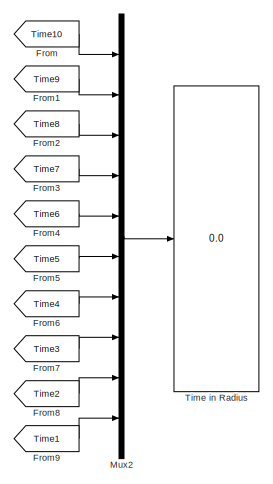
[diagram: Controller/Subsystem1/Performance Metrics/Performance Index Waypoints - part 1/7, top right region]
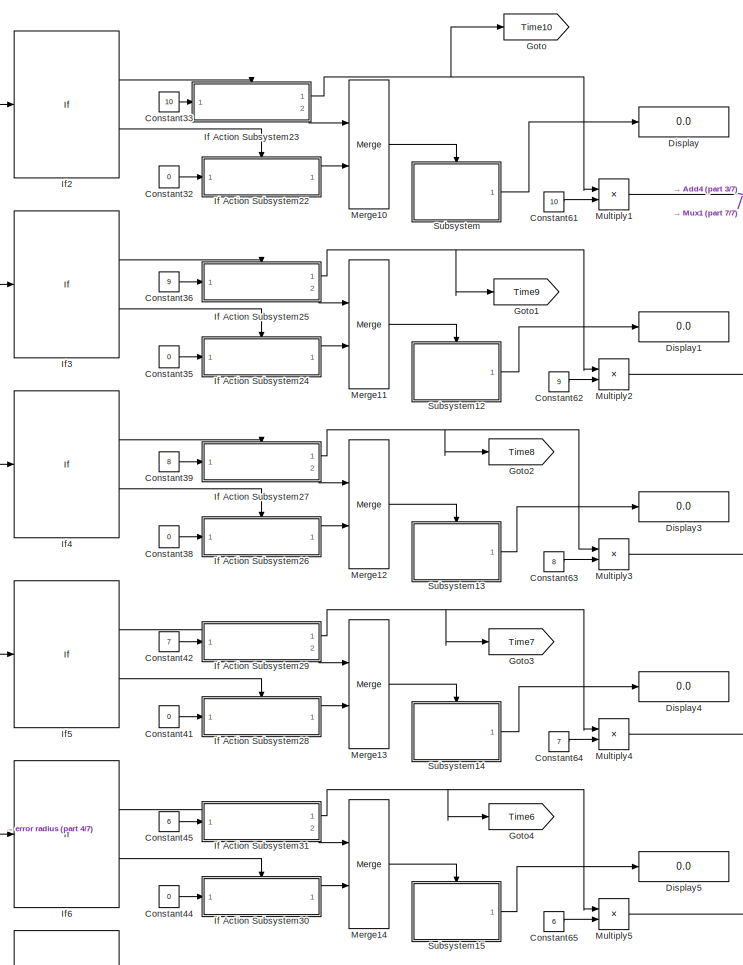
[diagram: Controller/Subsystem1/Performance Metrics/Performance Index Waypoints - part 2/7, central region]
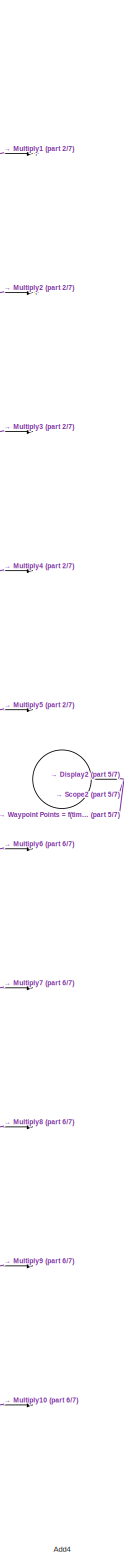
[diagram: Controller/Subsystem1/Performance Metrics/Performance Index Waypoints - part 3/7, middle right region]
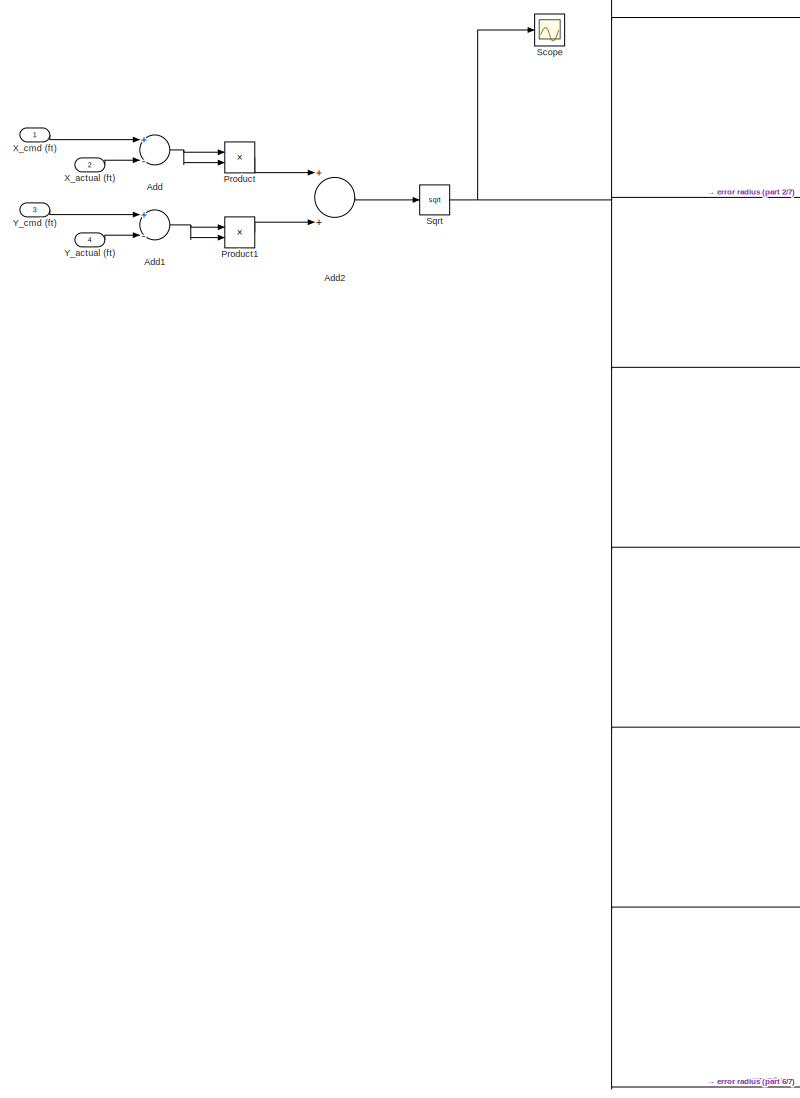
[diagram: Controller/Subsystem1/Performance Metrics/Performance Index Waypoints - part 4/7, middle left region]
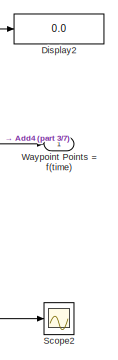
[diagram: Controller/Subsystem1/Performance Metrics/Performance Index Waypoints - part 5/7, middle right region]
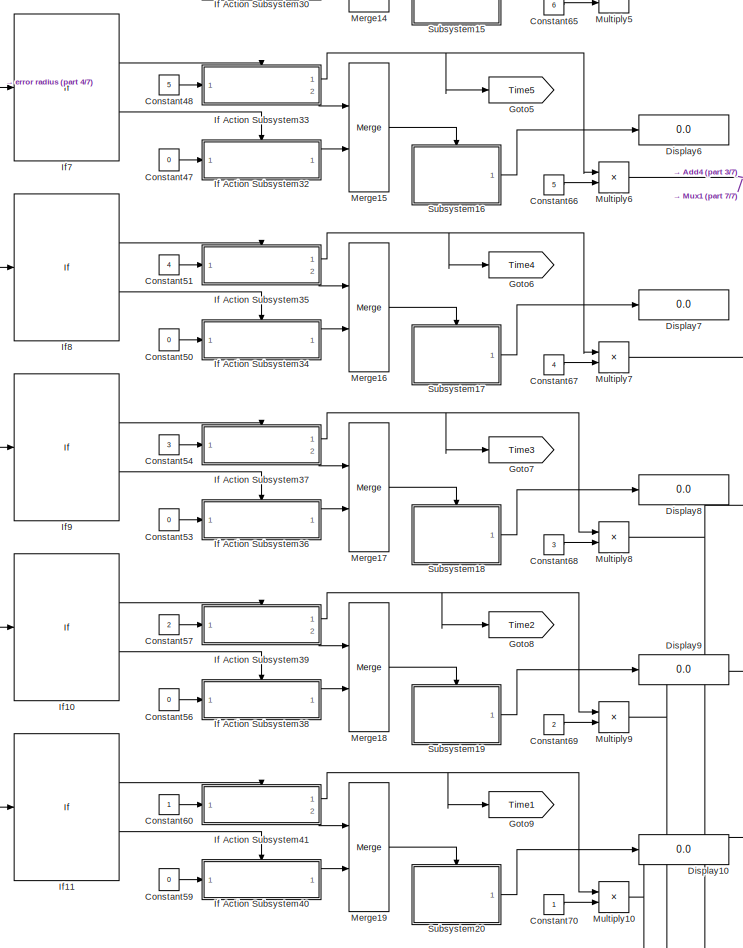
[diagram: Controller/Subsystem1/Performance Metrics/Performance Index Waypoints - part 6/7, central region]
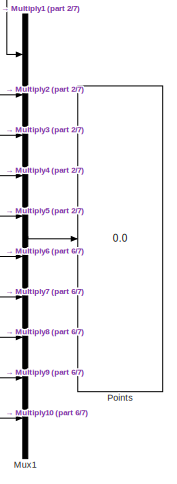
[diagram: Controller/Subsystem1/Performance Metrics/Performance Index Waypoints - part 7/7, bottom right region]
BLOCK [SubSystem] Controller/Subsystem1/Performance Metrics/Performance Index Waypoints
  Ports = [4, 1]
  RequestExecContextInheritance = off
BLOCK [Sum] Controller/Subsystem1/Performance Metrics/Performance Index Waypoints/Add
  InputSameDT = off
  Inputs = +-
  OutDataTypeStr = Inherit: Inherit via internal rule
  Ports = [2, 1]
  SaturateOnIntegerOverflow = off
BLOCK [Sum] Controller/Subsystem1/Performance Metrics/Performance Index Waypoints/Add1
  InputSameDT = off
  Inputs = +-
  OutDataTypeStr = Inherit: Inherit via internal rule
  Ports = [2, 1]
  SaturateOnIntegerOverflow = off
BLOCK [Sum] Controller/Subsystem1/Performance Metrics/Performance Index Waypoints/Add2
  InputSameDT = off
  OutDataTypeStr = Inherit: Inherit via internal rule
  Ports = [2, 1]
  SaturateOnIntegerOverflow = off
BLOCK [Sum] Controller/Subsystem1/Performance Metrics/Performance Index Waypoints/Add4
  InputSameDT = off
  Inputs = 10
  OutDataTypeStr = Inherit: Inherit via internal rule
  Ports = [10, 1]
  SaturateOnIntegerOverflow = off
BLOCK [Constant] Controller/Subsystem1/Performance Metrics/Performance Index Waypoints/Constant32
  Value = 0
BLOCK [Constant] Controller/Subsystem1/Performance Metrics/Performance Index Waypoints/Constant33
  Value = 10
BLOCK [Constant] Controller/Subsystem1/Performance Metrics/Performance Index Waypoints/Constant35
  Value = 0
BLOCK [Constant] Controller/Subsystem1/Performance Metrics/Performance Index Waypoints/Constant36
  Value = 9
BLOCK [Constant] Controller/Subsystem1/Performance Metrics/Performance Index Waypoints/Constant38
  Value = 0
BLOCK [Constant] Controller/Subsystem1/Performance Metrics/Performance Index Waypoints/Constant39
  Value = 8
BLOCK [Constant] Controller/Subsystem1/Performance Metrics/Performance Index Waypoints/Constant41
  Value = 0
BLOCK [Constant] Controller/Subsystem1/Performance Metrics/Performance Index Waypoints/Constant42
  Value = 7
BLOCK [Constant] Controller/Subsystem1/Performance Metrics/Performance Index Waypoints/Constant44
  Value = 0
BLOCK [Constant] Controller/Subsystem1/Performance Metrics/Performance Index Waypoints/Constant45
  Value = 6
BLOCK [Constant] Controller/Subsystem1/Performance Metrics/Performance Index Waypoints/Constant47
  Value = 0
BLOCK [Constant] Controller/Subsystem1/Performance Metrics/Performance Index Waypoints/Constant48
  Value = 5
BLOCK [Constant] Controller/Subsystem1/Performance Metrics/Performance Index Waypoints/Constant50
  Value = 0
BLOCK [Constant] Controller/Subsystem1/Performance Metrics/Performance Index Waypoints/Constant51
  Value = 4
BLOCK [Constant] Controller/Subsystem1/Performance Metrics/Performance Index Waypoints/Constant53
  Value = 0
BLOCK [Constant] Controller/Subsystem1/Performance Metrics/Performance Index Waypoints/Constant54
  Value = 3
BLOCK [Constant] Controller/Subsystem1/Performance Metrics/Performance Index Waypoints/Constant56
  Value = 0
BLOCK [Constant] Controller/Subsystem1/Performance Metrics/Performance Index Waypoints/Constant57
  Value = 2
BLOCK [Constant] Controller/Subsystem1/Performance Metrics/Performance Index Waypoints/Constant59
  Value = 0
BLOCK [Constant] Controller/Subsystem1/Performance Metrics/Performance Index Waypoints/Constant60
BLOCK [Constant] Controller/Subsystem1/Performance Metrics/Performance Index Waypoints/Constant61
  Value = 10
BLOCK [Constant] Controller/Subsystem1/Performance Metrics/Performance Index Waypoints/Constant62
  Value = 9
BLOCK [Constant] Controller/Subsystem1/Performance Metrics/Performance Index Waypoints/Constant63
  Value = 8
BLOCK [Constant] Controller/Subsystem1/Performance Metrics/Performance Index Waypoints/Constant64
  Value = 7
BLOCK [Constant] Controller/Subsystem1/Performance Metrics/Performance Index Waypoints/Constant65
  Value = 6
BLOCK [Constant] Controller/Subsystem1/Performance Metrics/Performance Index Waypoints/Constant66
  Value = 5
BLOCK [Constant] Controller/Subsystem1/Performance Metrics/Performance Index Waypoints/Constant67
  Value = 4
BLOCK [Constant] Controller/Subsystem1/Performance Metrics/Performance Index Waypoints/Constant68
  Value = 3
BLOCK [Constant] Controller/Subsystem1/Performance Metrics/Performance Index Waypoints/Constant69
  Value = 2
BLOCK [Constant] Controller/Subsystem1/Performance Metrics/Performance Index Waypoints/Constant70
BLOCK [Display] Controller/Subsystem1/Performance Metrics/Performance Index Waypoints/Display
  Decimation = 1
  Ports = [1]
BLOCK [Display] Controller/Subsystem1/Performance Metrics/Performance Index Waypoints/Display1
  Decimation = 1
  Ports = [1]
BLOCK [Display] Controller/Subsystem1/Performance Metrics/Performance Index Waypoints/Display10
  Decimation = 1
  Ports = [1]
BLOCK [Display] Controller/Subsystem1/Performance Metrics/Performance Index Waypoints/Display2
  Decimation = 1
  Ports = [1]
BLOCK [Display] Controller/Subsystem1/Performance Metrics/Performance Index Waypoints/Display3
  Decimation = 1
  Ports = [1]
BLOCK [Display] Controller/Subsystem1/Performance Metrics/Performance Index Waypoints/Display4
  Decimation = 1
  Ports = [1]
BLOCK [Display] Controller/Subsystem1/Performance Metrics/Performance Index Waypoints/Display5
  Decimation = 1
  Ports = [1]
BLOCK [Display] Controller/Subsystem1/Performance Metrics/Performance Index Waypoints/Display6
  Decimation = 1
  Ports = [1]
BLOCK [Display] Controller/Subsystem1/Performance Metrics/Performance Index Waypoints/Display7
  Decimation = 1
  Ports = [1]
BLOCK [Display] Controller/Subsystem1/Performance Metrics/Performance Index Waypoints/Display8
  Decimation = 1
  Ports = [1]
BLOCK [Display] Controller/Subsystem1/Performance Metrics/Performance Index Waypoints/Display9
  Decimation = 1
  Ports = [1]
BLOCK [From] Controller/Subsystem1/Performance Metrics/Performance Index Waypoints/From
  GotoTag = Time10
BLOCK [From] Controller/Subsystem1/Performance Metrics/Performance Index Waypoints/From1
  GotoTag = Time9
BLOCK [From] Controller/Subsystem1/Performance Metrics/Performance Index Waypoints/From2
  GotoTag = Time8
BLOCK [From] Controller/Subsystem1/Performance Metrics/Performance Index Waypoints/From3
  GotoTag = Time7
BLOCK [From] Controller/Subsystem1/Performance Metrics/Performance Index Waypoints/From4
  GotoTag = Time6
BLOCK [From] Controller/Subsystem1/Performance Metrics/Performance Index Waypoints/From5
  GotoTag = Time5
BLOCK [From] Controller/Subsystem1/Performance Metrics/Performance Index Waypoints/From6
  GotoTag = Time4
BLOCK [From] Controller/Subsystem1/Performance Metrics/Performance Index Waypoints/From7
  GotoTag = Time3
BLOCK [From] Controller/Subsystem1/Performance Metrics/Performance Index Waypoints/From8
  GotoTag = Time2
BLOCK [From] Controller/Subsystem1/Performance Metrics/Performance Index Waypoints/From9
  GotoTag = Time1
BLOCK [Goto] Controller/Subsystem1/Performance Metrics/Performance Index Waypoints/Goto
  GotoTag = Time10
BLOCK [Goto] Controller/Subsystem1/Performance Metrics/Performance Index Waypoints/Goto1
  GotoTag = Time9
BLOCK [Goto] Controller/Subsystem1/Performance Metrics/Performance Index Waypoints/Goto2
  GotoTag = Time8
BLOCK [Goto] Controller/Subsystem1/Performance Metrics/Performance Index Waypoints/Goto3
  GotoTag = Time7
BLOCK [Goto] Controller/Subsystem1/Performance Metrics/Performance Index Waypoints/Goto4
  GotoTag = Time6
BLOCK [Goto] Controller/Subsystem1/Performance Metrics/Performance Index Waypoints/Goto5
  GotoTag = Time5
BLOCK [Goto] Controller/Subsystem1/Performance Metrics/Performance Index Waypoints/Goto6
  GotoTag = Time4
BLOCK [Goto] Controller/Subsystem1/Performance Metrics/Performance Index Waypoints/Goto7
  GotoTag = Time3
BLOCK [Goto] Controller/Subsystem1/Performance Metrics/Performance Index Waypoints/Goto8
  GotoTag = Time2
BLOCK [Goto] Controller/Subsystem1/Performance Metrics/Performance Index Waypoints/Goto9
  GotoTag = Time1
BLOCK [SubSystem] Controller/Subsystem1/Performance Metrics/Performance Index Waypoints/If Action Subsystem22
  Ports = [1, 1, 0, 0, 0, 0, 0, 1]
  RequestExecContextInheritance = off
  TreatAsAtomicUnit = on
BLOCK [Outport] Controller/Subsystem1/Performance Metrics/Performance Index Waypoints/If Action Subsystem22/0 Points
  IconDisplay = Port number
BLOCK [Inport] Controller/Subsystem1/Performance Metrics/Performance Index Waypoints/If Action Subsystem22/0 points  
  IconDisplay = Port number
BLOCK [ActionPort] Controller/Subsystem1/Performance Metrics/Performance Index Waypoints/If Action Subsystem22/Action Port
  ActionType = else
  InitializeStates = reset
BLOCK [SubSystem] Controller/Subsystem1/Performance Metrics/Performance Index Waypoints/If Action Subsystem23
  Ports = [1, 2, 0, 0, 0, 0, 0, 1]
  RequestExecContextInheritance = off
  TreatAsAtomicUnit = on
BLOCK [Outport] Controller/Subsystem1/Performance Metrics/Performance Index Waypoints/If Action Subsystem23/10 Points
  IconDisplay = Port number
  Port = 2
BLOCK [Inport] Controller/Subsystem1/Performance Metrics/Performance Index Waypoints/If Action Subsystem23/10 points  
  IconDisplay = Port number
BLOCK [ActionPort] Controller/Subsystem1/Performance Metrics/Performance Index Waypoints/If Action Subsystem23/Action Port
  ActionType = then
BLOCK [Sum] Controller/Subsystem1/Performance Metrics/Performance Index Waypoints/If Action Subsystem23/Add
  InputSameDT = off
  OutDataTypeStr = Inherit: Inherit via internal rule
  Ports = [2, 1]
  SaturateOnIntegerOverflow = off
BLOCK [Constant] Controller/Subsystem1/Performance Metrics/Performance Index Waypoints/If Action Subsystem23/Constant2
  Value = 0.05
BLOCK [Delay] Controller/Subsystem1/Performance Metrics/Performance Index Waypoints/If Action Subsystem23/Delay1
  DelayLength = 1
  InitialCondition = 0
  InputPortMap = u0
  Ports = [1, 1]
BLOCK [Outport] Controller/Subsystem1/Performance Metrics/Performance Index Waypoints/If Action Subsystem23/Time
  IconDisplay = Port number
BLOCK [SubSystem] Controller/Subsystem1/Performance Metrics/Performance Index Waypoints/If Action Subsystem24
  Ports = [1, 1, 0, 0, 0, 0, 0, 1]
  RequestExecContextInheritance = off
  TreatAsAtomicUnit = on
BLOCK [Outport] Controller/Subsystem1/Performance Metrics/Performance Index Waypoints/If Action Subsystem24/0 Points
  IconDisplay = Port number
BLOCK [Inport] Controller/Subsystem1/Performance Metrics/Performance Index Waypoints/If Action Subsystem24/0 points  
  IconDisplay = Port number
BLOCK [ActionPort] Controller/Subsystem1/Performance Metrics/Performance Index Waypoints/If Action Subsystem24/Action Port
  ActionType = else
  InitializeStates = reset
BLOCK [SubSystem] Controller/Subsystem1/Performance Metrics/Performance Index Waypoints/If Action Subsystem25
  Ports = [1, 2, 0, 0, 0, 0, 0, 1]
  RequestExecContextInheritance = off
  TreatAsAtomicUnit = on
BLOCK [Outport] Controller/Subsystem1/Performance Metrics/Performance Index Waypoints/If Action Subsystem25/9 Points
  IconDisplay = Port number
  Port = 2
BLOCK [Inport] Controller/Subsystem1/Performance Metrics/Performance Index Waypoints/If Action Subsystem25/9 points  
  IconDisplay = Port number
BLOCK [ActionPort] Controller/Subsystem1/Performance Metrics/Performance Index Waypoints/If Action Subsystem25/Action Port
  ActionType = then
BLOCK [Sum] Controller/Subsystem1/Performance Metrics/Performance Index Waypoints/If Action Subsystem25/Add
  InputSameDT = off
  OutDataTypeStr = Inherit: Inherit via internal rule
  Ports = [2, 1]
  SaturateOnIntegerOverflow = off
BLOCK [Constant] Controller/Subsystem1/Performance Metrics/Performance Index Waypoints/If Action Subsystem25/Constant2
  Value = 0.05
BLOCK [Delay] Controller/Subsystem1/Performance Metrics/Performance Index Waypoints/If Action Subsystem25/Delay1
  DelayLength = 1
  InitialCondition = 0
  InputPortMap = u0
  Ports = [1, 1]
BLOCK [Outport] Controller/Subsystem1/Performance Metrics/Performance Index Waypoints/If Action Subsystem25/Time
  IconDisplay = Port number
BLOCK [SubSystem] Controller/Subsystem1/Performance Metrics/Performance Index Waypoints/If Action Subsystem26
  Ports = [1, 1, 0, 0, 0, 0, 0, 1]
  RequestExecContextInheritance = off
  TreatAsAtomicUnit = on
BLOCK [Outport] Controller/Subsystem1/Performance Metrics/Performance Index Waypoints/If Action Subsystem26/0 Points
  IconDisplay = Port number
BLOCK [Inport] Controller/Subsystem1/Performance Metrics/Performance Index Waypoints/If Action Subsystem26/0 points  
  IconDisplay = Port number
BLOCK [ActionPort] Controller/Subsystem1/Performance Metrics/Performance Index Waypoints/If Action Subsystem26/Action Port
  ActionType = else
  InitializeStates = reset
BLOCK [SubSystem] Controller/Subsystem1/Performance Metrics/Performance Index Waypoints/If Action Subsystem27
  Ports = [1, 2, 0, 0, 0, 0, 0, 1]
  RequestExecContextInheritance = off
  TreatAsAtomicUnit = on
BLOCK [Outport] Controller/Subsystem1/Performance Metrics/Performance Index Waypoints/If Action Subsystem27/8 Points
  IconDisplay = Port number
  Port = 2
BLOCK [Inport] Controller/Subsystem1/Performance Metrics/Performance Index Waypoints/If Action Subsystem27/8 points  
  IconDisplay = Port number
BLOCK [ActionPort] Controller/Subsystem1/Performance Metrics/Performance Index Waypoints/If Action Subsystem27/Action Port
  ActionType = then
BLOCK [Sum] Controller/Subsystem1/Performance Metrics/Performance Index Waypoints/If Action Subsystem27/Add
  InputSameDT = off
  OutDataTypeStr = Inherit: Inherit via internal rule
  Ports = [2, 1]
  SaturateOnIntegerOverflow = off
BLOCK [Constant] Controller/Subsystem1/Performance Metrics/Performance Index Waypoints/If Action Subsystem27/Constant2
  Value = 0.05
BLOCK [Delay] Controller/Subsystem1/Performance Metrics/Performance Index Waypoints/If Action Subsystem27/Delay1
  DelayLength = 1
  InitialCondition = 0
  InputPortMap = u0
  Ports = [1, 1]
BLOCK [Outport] Controller/Subsystem1/Performance Metrics/Performance Index Waypoints/If Action Subsystem27/Time
  IconDisplay = Port number
BLOCK [SubSystem] Controller/Subsystem1/Performance Metrics/Performance Index Waypoints/If Action Subsystem28
  Ports = [1, 1, 0, 0, 0, 0, 0, 1]
  RequestExecContextInheritance = off
  TreatAsAtomicUnit = on
BLOCK [Outport] Controller/Subsystem1/Performance Metrics/Performance Index Waypoints/If Action Subsystem28/0 Points
  IconDisplay = Port number
BLOCK [Inport] Controller/Subsystem1/Performance Metrics/Performance Index Waypoints/If Action Subsystem28/0 points  
  IconDisplay = Port number
BLOCK [ActionPort] Controller/Subsystem1/Performance Metrics/Performance Index Waypoints/If Action Subsystem28/Action Port
  ActionType = else
  InitializeStates = reset
BLOCK [SubSystem] Controller/Subsystem1/Performance Metrics/Performance Index Waypoints/If Action Subsystem29
  Ports = [1, 2, 0, 0, 0, 0, 0, 1]
  RequestExecContextInheritance = off
  TreatAsAtomicUnit = on
BLOCK [Outport] Controller/Subsystem1/Performance Metrics/Performance Index Waypoints/If Action Subsystem29/7 Points
  IconDisplay = Port number
  Port = 2
BLOCK [Inport] Controller/Subsystem1/Performance Metrics/Performance Index Waypoints/If Action Subsystem29/7 points  
  IconDisplay = Port number
BLOCK [ActionPort] Controller/Subsystem1/Performance Metrics/Performance Index Waypoints/If Action Subsystem29/Action Port
  ActionType = then
BLOCK [Sum] Controller/Subsystem1/Performance Metrics/Performance Index Waypoints/If Action Subsystem29/Add
  InputSameDT = off
  OutDataTypeStr = Inherit: Inherit via internal rule
  Ports = [2, 1]
  SaturateOnIntegerOverflow = off
BLOCK [Constant] Controller/Subsystem1/Performance Metrics/Performance Index Waypoints/If Action Subsystem29/Constant2
  Value = 0.05
BLOCK [Delay] Controller/Subsystem1/Performance Metrics/Performance Index Waypoints/If Action Subsystem29/Delay1
  DelayLength = 1
  InitialCondition = 0
  InputPortMap = u0
  Ports = [1, 1]
BLOCK [Outport] Controller/Subsystem1/Performance Metrics/Performance Index Waypoints/If Action Subsystem29/Time
  IconDisplay = Port number
BLOCK [SubSystem] Controller/Subsystem1/Performance Metrics/Performance Index Waypoints/If Action Subsystem30
  Ports = [1, 1, 0, 0, 0, 0, 0, 1]
  RequestExecContextInheritance = off
  TreatAsAtomicUnit = on
BLOCK [Outport] Controller/Subsystem1/Performance Metrics/Performance Index Waypoints/If Action Subsystem30/0 Points
  IconDisplay = Port number
BLOCK [Inport] Controller/Subsystem1/Performance Metrics/Performance Index Waypoints/If Action Subsystem30/0 points  
  IconDisplay = Port number
BLOCK [ActionPort] Controller/Subsystem1/Performance Metrics/Performance Index Waypoints/If Action Subsystem30/Action Port
  ActionType = else
  InitializeStates = reset
BLOCK [SubSystem] Controller/Subsystem1/Performance Metrics/Performance Index Waypoints/If Action Subsystem31
  Ports = [1, 2, 0, 0, 0, 0, 0, 1]
  RequestExecContextInheritance = off
  TreatAsAtomicUnit = on
BLOCK [Outport] Controller/Subsystem1/Performance Metrics/Performance Index Waypoints/If Action Subsystem31/6 Points
  IconDisplay = Port number
  Port = 2
BLOCK [Inport] Controller/Subsystem1/Performance Metrics/Performance Index Waypoints/If Action Subsystem31/6 points  
  IconDisplay = Port number
BLOCK [ActionPort] Controller/Subsystem1/Performance Metrics/Performance Index Waypoints/If Action Subsystem31/Action Port
  ActionType = then
BLOCK [Sum] Controller/Subsystem1/Performance Metrics/Performance Index Waypoints/If Action Subsystem31/Add
  InputSameDT = off
  OutDataTypeStr = Inherit: Inherit via internal rule
  Ports = [2, 1]
  SaturateOnIntegerOverflow = off
BLOCK [Constant] Controller/Subsystem1/Performance Metrics/Performance Index Waypoints/If Action Subsystem31/Constant2
  Value = 0.05
BLOCK [Delay] Controller/Subsystem1/Performance Metrics/Performance Index Waypoints/If Action Subsystem31/Delay1
  DelayLength = 1
  InitialCondition = 0
  InputPortMap = u0
  Ports = [1, 1]
BLOCK [Outport] Controller/Subsystem1/Performance Metrics/Performance Index Waypoints/If Action Subsystem31/Time
  IconDisplay = Port number
BLOCK [SubSystem] Controller/Subsystem1/Performance Metrics/Performance Index Waypoints/If Action Subsystem32
  Ports = [1, 1, 0, 0, 0, 0, 0, 1]
  RequestExecContextInheritance = off
  TreatAsAtomicUnit = on
BLOCK [Outport] Controller/Subsystem1/Performance Metrics/Performance Index Waypoints/If Action Subsystem32/0 Points
  IconDisplay = Port number
BLOCK [Inport] Controller/Subsystem1/Performance Metrics/Performance Index Waypoints/If Action Subsystem32/0 points  
  IconDisplay = Port number
BLOCK [ActionPort] Controller/Subsystem1/Performance Metrics/Performance Index Waypoints/If Action Subsystem32/Action Port
  ActionType = else
  InitializeStates = reset
BLOCK [SubSystem] Controller/Subsystem1/Performance Metrics/Performance Index Waypoints/If Action Subsystem33
  Ports = [1, 2, 0, 0, 0, 0, 0, 1]
  RequestExecContextInheritance = off
  TreatAsAtomicUnit = on
BLOCK [Outport] Controller/Subsystem1/Performance Metrics/Performance Index Waypoints/If Action Subsystem33/5 Points
  IconDisplay = Port number
  Port = 2
BLOCK [Inport] Controller/Subsystem1/Performance Metrics/Performance Index Waypoints/If Action Subsystem33/5 points  
  IconDisplay = Port number
BLOCK [ActionPort] Controller/Subsystem1/Performance Metrics/Performance Index Waypoints/If Action Subsystem33/Action Port
  ActionType = then
BLOCK [Sum] Controller/Subsystem1/Performance Metrics/Performance Index Waypoints/If Action Subsystem33/Add
  InputSameDT = off
  OutDataTypeStr = Inherit: Inherit via internal rule
  Ports = [2, 1]
  SaturateOnIntegerOverflow = off
BLOCK [Constant] Controller/Subsystem1/Performance Metrics/Performance Index Waypoints/If Action Subsystem33/Constant2
  Value = 0.05
BLOCK [Delay] Controller/Subsystem1/Performance Metrics/Performance Index Waypoints/If Action Subsystem33/Delay1
  DelayLength = 1
  InitialCondition = 0
  InputPortMap = u0
  Ports = [1, 1]
BLOCK [Outport] Controller/Subsystem1/Performance Metrics/Performance Index Waypoints/If Action Subsystem33/Time
  IconDisplay = Port number
BLOCK [SubSystem] Controller/Subsystem1/Performance Metrics/Performance Index Waypoints/If Action Subsystem34
  Ports = [1, 1, 0, 0, 0, 0, 0, 1]
  RequestExecContextInheritance = off
  TreatAsAtomicUnit = on
BLOCK [Outport] Controller/Subsystem1/Performance Metrics/Performance Index Waypoints/If Action Subsystem34/0 Points
  IconDisplay = Port number
BLOCK [Inport] Controller/Subsystem1/Performance Metrics/Performance Index Waypoints/If Action Subsystem34/0 points  
  IconDisplay = Port number
BLOCK [ActionPort] Controller/Subsystem1/Performance Metrics/Performance Index Waypoints/If Action Subsystem34/Action Port
  ActionType = else
  InitializeStates = reset
BLOCK [SubSystem] Controller/Subsystem1/Performance Metrics/Performance Index Waypoints/If Action Subsystem35
  Ports = [1, 2, 0, 0, 0, 0, 0, 1]
  RequestExecContextInheritance = off
  TreatAsAtomicUnit = on
BLOCK [Outport] Controller/Subsystem1/Performance Metrics/Performance Index Waypoints/If Action Subsystem35/4 Points
  IconDisplay = Port number
  Port = 2
BLOCK [Inport] Controller/Subsystem1/Performance Metrics/Performance Index Waypoints/If Action Subsystem35/4 points  
  IconDisplay = Port number
BLOCK [ActionPort] Controller/Subsystem1/Performance Metrics/Performance Index Waypoints/If Action Subsystem35/Action Port
  ActionType = then
BLOCK [Sum] Controller/Subsystem1/Performance Metrics/Performance Index Waypoints/If Action Subsystem35/Add
  InputSameDT = off
  OutDataTypeStr = Inherit: Inherit via internal rule
  Ports = [2, 1]
  SaturateOnIntegerOverflow = off
BLOCK [Constant] Controller/Subsystem1/Performance Metrics/Performance Index Waypoints/If Action Subsystem35/Constant2
  Value = 0.05
BLOCK [Delay] Controller/Subsystem1/Performance Metrics/Performance Index Waypoints/If Action Subsystem35/Delay1
  DelayLength = 1
  InitialCondition = 0
  InputPortMap = u0
  Ports = [1, 1]
BLOCK [Outport] Controller/Subsystem1/Performance Metrics/Performance Index Waypoints/If Action Subsystem35/Time
  IconDisplay = Port number
BLOCK [SubSystem] Controller/Subsystem1/Performance Metrics/Performance Index Waypoints/If Action Subsystem36
  Ports = [1, 1, 0, 0, 0, 0, 0, 1]
  RequestExecContextInheritance = off
  TreatAsAtomicUnit = on
BLOCK [Outport] Controller/Subsystem1/Performance Metrics/Performance Index Waypoints/If Action Subsystem36/0 Points
  IconDisplay = Port number
BLOCK [Inport] Controller/Subsystem1/Performance Metrics/Performance Index Waypoints/If Action Subsystem36/0 points  
  IconDisplay = Port number
BLOCK [ActionPort] Controller/Subsystem1/Performance Metrics/Performance Index Waypoints/If Action Subsystem36/Action Port
  ActionType = else
  InitializeStates = reset
BLOCK [SubSystem] Controller/Subsystem1/Performance Metrics/Performance Index Waypoints/If Action Subsystem37
  Ports = [1, 2, 0, 0, 0, 0, 0, 1]
  RequestExecContextInheritance = off
  TreatAsAtomicUnit = on
BLOCK [Outport] Controller/Subsystem1/Performance Metrics/Performance Index Waypoints/If Action Subsystem37/3 Points
  IconDisplay = Port number
  Port = 2
BLOCK [Inport] Controller/Subsystem1/Performance Metrics/Performance Index Waypoints/If Action Subsystem37/3 points  
  IconDisplay = Port number
BLOCK [ActionPort] Controller/Subsystem1/Performance Metrics/Performance Index Waypoints/If Action Subsystem37/Action Port
  ActionType = then
BLOCK [Sum] Controller/Subsystem1/Performance Metrics/Performance Index Waypoints/If Action Subsystem37/Add
  InputSameDT = off
  OutDataTypeStr = Inherit: Inherit via internal rule
  Ports = [2, 1]
  SaturateOnIntegerOverflow = off
BLOCK [Constant] Controller/Subsystem1/Performance Metrics/Performance Index Waypoints/If Action Subsystem37/Constant2
  Value = 0.05
BLOCK [Delay] Controller/Subsystem1/Performance Metrics/Performance Index Waypoints/If Action Subsystem37/Delay1
  DelayLength = 1
  InitialCondition = 0
  InputPortMap = u0
  Ports = [1, 1]
BLOCK [Outport] Controller/Subsystem1/Performance Metrics/Performance Index Waypoints/If Action Subsystem37/Time
  IconDisplay = Port number
BLOCK [SubSystem] Controller/Subsystem1/Performance Metrics/Performance Index Waypoints/If Action Subsystem38
  Ports = [1, 1, 0, 0, 0, 0, 0, 1]
  RequestExecContextInheritance = off
  TreatAsAtomicUnit = on
BLOCK [Outport] Controller/Subsystem1/Performance Metrics/Performance Index Waypoints/If Action Subsystem38/0 Points
  IconDisplay = Port number
BLOCK [Inport] Controller/Subsystem1/Performance Metrics/Performance Index Waypoints/If Action Subsystem38/0 points  
  IconDisplay = Port number
BLOCK [ActionPort] Controller/Subsystem1/Performance Metrics/Performance Index Waypoints/If Action Subsystem38/Action Port
  ActionType = else
  InitializeStates = reset
BLOCK [SubSystem] Controller/Subsystem1/Performance Metrics/Performance Index Waypoints/If Action Subsystem39
  Ports = [1, 2, 0, 0, 0, 0, 0, 1]
  RequestExecContextInheritance = off
  TreatAsAtomicUnit = on
BLOCK [Outport] Controller/Subsystem1/Performance Metrics/Performance Index Waypoints/If Action Subsystem39/2 Points
  IconDisplay = Port number
  Port = 2
BLOCK [Inport] Controller/Subsystem1/Performance Metrics/Performance Index Waypoints/If Action Subsystem39/2 points  
  IconDisplay = Port number
BLOCK [ActionPort] Controller/Subsystem1/Performance Metrics/Performance Index Waypoints/If Action Subsystem39/Action Port
  ActionType = then
BLOCK [Sum] Controller/Subsystem1/Performance Metrics/Performance Index Waypoints/If Action Subsystem39/Add
  InputSameDT = off
  OutDataTypeStr = Inherit: Inherit via internal rule
  Ports = [2, 1]
  SaturateOnIntegerOverflow = off
BLOCK [Constant] Controller/Subsystem1/Performance Metrics/Performance Index Waypoints/If Action Subsystem39/Constant2
  Value = 0.05
BLOCK [Delay] Controller/Subsystem1/Performance Metrics/Performance Index Waypoints/If Action Subsystem39/Delay1
  DelayLength = 1
  InitialCondition = 0
  InputPortMap = u0
  Ports = [1, 1]
BLOCK [Outport] Controller/Subsystem1/Performance Metrics/Performance Index Waypoints/If Action Subsystem39/Time
  IconDisplay = Port number
BLOCK [SubSystem] Controller/Subsystem1/Performance Metrics/Performance Index Waypoints/If Action Subsystem40
  Ports = [1, 1, 0, 0, 0, 0, 0, 1]
  RequestExecContextInheritance = off
  TreatAsAtomicUnit = on
BLOCK [Outport] Controller/Subsystem1/Performance Metrics/Performance Index Waypoints/If Action Subsystem40/0 Points
  IconDisplay = Port number
BLOCK [Inport] Controller/Subsystem1/Performance Metrics/Performance Index Waypoints/If Action Subsystem40/0 points  
  IconDisplay = Port number
BLOCK [ActionPort] Controller/Subsystem1/Performance Metrics/Performance Index Waypoints/If Action Subsystem40/Action Port
  ActionType = else
  InitializeStates = reset
BLOCK [SubSystem] Controller/Subsystem1/Performance Metrics/Performance Index Waypoints/If Action Subsystem41
  Ports = [1, 2, 0, 0, 0, 0, 0, 1]
  RequestExecContextInheritance = off
  TreatAsAtomicUnit = on
BLOCK [Outport] Controller/Subsystem1/Performance Metrics/Performance Index Waypoints/If Action Subsystem41/1 Points
  IconDisplay = Port number
  Port = 2
BLOCK [Inport] Controller/Subsystem1/Performance Metrics/Performance Index Waypoints/If Action Subsystem41/1 points  
  IconDisplay = Port number
BLOCK [ActionPort] Controller/Subsystem1/Performance Metrics/Performance Index Waypoints/If Action Subsystem41/Action Port
  ActionType = then
BLOCK [Sum] Controller/Subsystem1/Performance Metrics/Performance Index Waypoints/If Action Subsystem41/Add
  InputSameDT = off
  OutDataTypeStr = Inherit: Inherit via internal rule
  Ports = [2, 1]
  SaturateOnIntegerOverflow = off
BLOCK [Constant] Controller/Subsystem1/Performance Metrics/Performance Index Waypoints/If Action Subsystem41/Constant2
  Value = 0.05
BLOCK [Delay] Controller/Subsystem1/Performance Metrics/Performance Index Waypoints/If Action Subsystem41/Delay1
  DelayLength = 1
  InitialCondition = 0
  InputPortMap = u0
  Ports = [1, 1]
BLOCK [Outport] Controller/Subsystem1/Performance Metrics/Performance Index Waypoints/If Action Subsystem41/Time
  IconDisplay = Port number
BLOCK [If] Controller/Subsystem1/Performance Metrics/Performance Index Waypoints/If10
  IfExpression = u1 > 105 & u1 <= 115
  Ports = [1, 2]
BLOCK [If] Controller/Subsystem1/Performance Metrics/Performance Index Waypoints/If11
  IfExpression = u1 > 115 & u1 <= 125
  Ports = [1, 2]
BLOCK [If] Controller/Subsystem1/Performance Metrics/Performance Index Waypoints/If2
  IfExpression = u1 <= 33.76
  Ports = [1, 2]
BLOCK [If] Controller/Subsystem1/Performance Metrics/Performance Index Waypoints/If3
  IfExpression = u1 > 33.76 & u1 <= 45
  Ports = [1, 2]
BLOCK [If] Controller/Subsystem1/Performance Metrics/Performance Index Waypoints/If4
  IfExpression = u1 > 45 & u1 <= 55
  Ports = [1, 2]
BLOCK [If] Controller/Subsystem1/Performance Metrics/Performance Index Waypoints/If5
  IfExpression = u1 > 55 & u1 <= 65
  Ports = [1, 2]
BLOCK [If] Controller/Subsystem1/Performance Metrics/Performance Index Waypoints/If6
  IfExpression = u1 > 65 & u1 <= 75
  Ports = [1, 2]
BLOCK [If] Controller/Subsystem1/Performance Metrics/Performance Index Waypoints/If7
  IfExpression = u1 > 75 & u1 <= 85
  Ports = [1, 2]
BLOCK [If] Controller/Subsystem1/Performance Metrics/Performance Index Waypoints/If8
  IfExpression = u1 > 85 & u1 <= 95
  Ports = [1, 2]
BLOCK [If] Controller/Subsystem1/Performance Metrics/Performance Index Waypoints/If9
  IfExpression = u1 > 95 & u1 <= 105
  Ports = [1, 2]
BLOCK [Merge] Controller/Subsystem1/Performance Metrics/Performance Index Waypoints/Merge10
  Ports = [2, 1]
BLOCK [Merge] Controller/Subsystem1/Performance Metrics/Performance Index Waypoints/Merge11
  Ports = [2, 1]
BLOCK [Merge] Controller/Subsystem1/Performance Metrics/Performance Index Waypoints/Merge12
  Ports = [2, 1]
BLOCK [Merge] Controller/Subsystem1/Performance Metrics/Performance Index Waypoints/Merge13
  Ports = [2, 1]
BLOCK [Merge] Controller/Subsystem1/Performance Metrics/Performance Index Waypoints/Merge14
  Ports = [2, 1]
BLOCK [Merge] Controller/Subsystem1/Performance Metrics/Performance Index Waypoints/Merge15
  Ports = [2, 1]
BLOCK [Merge] Controller/Subsystem1/Performance Metrics/Performance Index Waypoints/Merge16
  Ports = [2, 1]
BLOCK [Merge] Controller/Subsystem1/Performance Metrics/Performance Index Waypoints/Merge17
  Ports = [2, 1]
BLOCK [Merge] Controller/Subsystem1/Performance Metrics/Performance Index Waypoints/Merge18
  Ports = [2, 1]
BLOCK [Merge] Controller/Subsystem1/Performance Metrics/Performance Index Waypoints/Merge19
  Ports = [2, 1]
BLOCK [Product] Controller/Subsystem1/Performance Metrics/Performance Index Waypoints/Multiply1
  InputSameDT = off
  OutDataTypeStr = Inherit: Inherit via internal rule
  Ports = [2, 1]
  RndMeth = Floor
  SaturateOnIntegerOverflow = off
BLOCK [Product] Controller/Subsystem1/Performance Metrics/Performance Index Waypoints/Multiply10
  InputSameDT = off
  OutDataTypeStr = Inherit: Inherit via internal rule
  Ports = [2, 1]
  RndMeth = Floor
  SaturateOnIntegerOverflow = off
BLOCK [Product] Controller/Subsystem1/Performance Metrics/Performance Index Waypoints/Multiply2
  InputSameDT = off
  OutDataTypeStr = Inherit: Inherit via internal rule
  Ports = [2, 1]
  RndMeth = Floor
  SaturateOnIntegerOverflow = off
BLOCK [Product] Controller/Subsystem1/Performance Metrics/Performance Index Waypoints/Multiply3
  InputSameDT = off
  OutDataTypeStr = Inherit: Inherit via internal rule
  Ports = [2, 1]
  RndMeth = Floor
  SaturateOnIntegerOverflow = off
BLOCK [Product] Controller/Subsystem1/Performance Metrics/Performance Index Waypoints/Multiply4
  InputSameDT = off
  OutDataTypeStr = Inherit: Inherit via internal rule
  Ports = [2, 1]
  RndMeth = Floor
  SaturateOnIntegerOverflow = off
BLOCK [Product] Controller/Subsystem1/Performance Metrics/Performance Index Waypoints/Multiply5
  InputSameDT = off
  OutDataTypeStr = Inherit: Inherit via internal rule
  Ports = [2, 1]
  RndMeth = Floor
  SaturateOnIntegerOverflow = off
BLOCK [Product] Controller/Subsystem1/Performance Metrics/Performance Index Waypoints/Multiply6
  InputSameDT = off
  OutDataTypeStr = Inherit: Inherit via internal rule
  Ports = [2, 1]
  RndMeth = Floor
  SaturateOnIntegerOverflow = off
BLOCK [Product] Controller/Subsystem1/Performance Metrics/Performance Index Waypoints/Multiply7
  InputSameDT = off
  OutDataTypeStr = Inherit: Inherit via internal rule
  Ports = [2, 1]
  RndMeth = Floor
  SaturateOnIntegerOverflow = off
BLOCK [Product] Controller/Subsystem1/Performance Metrics/Performance Index Waypoints/Multiply8
  InputSameDT = off
  OutDataTypeStr = Inherit: Inherit via internal rule
  Ports = [2, 1]
  RndMeth = Floor
  SaturateOnIntegerOverflow = off
BLOCK [Product] Controller/Subsystem1/Performance Metrics/Performance Index Waypoints/Multiply9
  InputSameDT = off
  OutDataTypeStr = Inherit: Inherit via internal rule
  Ports = [2, 1]
  RndMeth = Floor
  SaturateOnIntegerOverflow = off
BLOCK [Mux] Controller/Subsystem1/Performance Metrics/Performance Index Waypoints/Mux1
  DisplayOption = bar
  Inputs = 10
  Ports = [10, 1]
BLOCK [Mux] Controller/Subsystem1/Performance Metrics/Performance Index Waypoints/Mux2
  DisplayOption = bar
  Inputs = 10
  Ports = [10, 1]
BLOCK [Display] Controller/Subsystem1/Performance Metrics/Performance Index Waypoints/Points
  Decimation = 1
  Ports = [1]
BLOCK [Product] Controller/Subsystem1/Performance Metrics/Performance Index Waypoints/Product
  InputSameDT = off
  OutDataTypeStr = Inherit: Inherit via internal rule
  Ports = [2, 1]
  SaturateOnIntegerOverflow = off
BLOCK [Product] Controller/Subsystem1/Performance Metrics/Performance Index Waypoints/Product1
  InputSameDT = off
  OutDataTypeStr = Inherit: Inherit via internal rule
  Ports = [2, 1]
  SaturateOnIntegerOverflow = off
BLOCK [Scope] Controller/Subsystem1/Performance Metrics/Performance Index Waypoints/Scope
  Floating = off
  NumInputPorts = 1
  Ports = [1]
  ScopeSpecificationString = Simulink.scopes.TimeScopeBlockCfg('CurrentConfiguration', extmgr.ConfigurationSet(extmgr.Configuration('Core','General UI',true),extmgr.Configuration('Core','Source UI',true),extmgr.Configuration('Sources','WiredSimulink',true,'DataLoggingVariableName','ScopeData1'),extmgr.Configuration('Visuals','Time Domain',true,'SerializedDisplays',{struct('MinYLimReal','-91.12999','MaxYLimReal','820.16993','Y...<+1434ch>
BLOCK [Scope] Controller/Subsystem1/Performance Metrics/Performance Index Waypoints/Scope2
  Floating = off
  NumInputPorts = 1
  Ports = [1]
  ScopeSpecificationString = Simulink.scopes.TimeScopeBlockCfg('CurrentConfiguration', extmgr.ConfigurationSet(extmgr.Configuration('Core','General UI',true),extmgr.Configuration('Core','Source UI',true),extmgr.Configuration('Sources','WiredSimulink',true,'DataLoggingVariableName','ScopeData3'),extmgr.Configuration('Visuals','Time Domain',true,'SerializedDisplays',{struct('MinYLimReal','-65.40625','MaxYLimReal','593.65625','Y...<+1434ch>
BLOCK [Sqrt] Controller/Subsystem1/Performance Metrics/Performance Index Waypoints/Sqrt
BLOCK [SubSystem] Controller/Subsystem1/Performance Metrics/Performance Index Waypoints/Subsystem
  Ports = [0, 1, 0, 1]
  RequestExecContextInheritance = off
BLOCK [Sum] Controller/Subsystem1/Performance Metrics/Performance Index Waypoints/Subsystem/Add
  InputSameDT = off
  OutDataTypeStr = Inherit: Inherit via internal rule
  Ports = [2, 1]
  SaturateOnIntegerOverflow = off
BLOCK [Constant] Controller/Subsystem1/Performance Metrics/Performance Index Waypoints/Subsystem/Constant2
  Value = 0
BLOCK [Outport] Controller/Subsystem1/Performance Metrics/Performance Index Waypoints/Subsystem/Counter
  IconDisplay = Port number
BLOCK [Delay] Controller/Subsystem1/Performance Metrics/Performance Index Waypoints/Subsystem/Delay1
  DelayLength = 1
  InitialCondition = 0
  InputPortMap = u0
  Ports = [1, 1]
BLOCK [Reference] Controller/Subsystem1/Performance Metrics/Performance Index Waypoints/Subsystem/Increment Stored Integer  REF=simulink/Additional Math
& Discrete/Additional Math:
Increment - Decrement/Increment
Stored Integer
  Ports = [1, 1]
  SourceBlock = simulink/Additional Math\n& Discrete/Additional Math:\nIncrement - Decrement/Increment\nStored Integer
  SourceProductBaseCode = SL
  SourceProductName = Simulink
  SourceType = Stored Integer Value Increment
BLOCK [TriggerPort] Controller/Subsystem1/Performance Metrics/Performance Index Waypoints/Subsystem/Trigger
  InitialTriggerSignalState = zero
  PortDimensions = 1
  Ports = []
  StatesWhenEnabling = held
  VariantControl = Variant
BLOCK [SubSystem] Controller/Subsystem1/Performance Metrics/Performance Index Waypoints/Subsystem12
  Ports = [0, 1, 0, 1]
  RequestExecContextInheritance = off
BLOCK [Sum] Controller/Subsystem1/Performance Metrics/Performance Index Waypoints/Subsystem12/Add
  InputSameDT = off
  OutDataTypeStr = Inherit: Inherit via internal rule
  Ports = [2, 1]
  SaturateOnIntegerOverflow = off
BLOCK [Constant] Controller/Subsystem1/Performance Metrics/Performance Index Waypoints/Subsystem12/Constant2
  Value = 0
BLOCK [Outport] Controller/Subsystem1/Performance Metrics/Performance Index Waypoints/Subsystem12/Counter
  IconDisplay = Port number
BLOCK [Delay] Controller/Subsystem1/Performance Metrics/Performance Index Waypoints/Subsystem12/Delay1
  DelayLength = 1
  InitialCondition = 0
  InputPortMap = u0
  Ports = [1, 1]
BLOCK [Reference] Controller/Subsystem1/Performance Metrics/Performance Index Waypoints/Subsystem12/Increment Stored Integer  REF=simulink/Additional Math
& Discrete/Additional Math:
Increment - Decrement/Increment
Stored Integer
  Ports = [1, 1]
  SourceBlock = simulink/Additional Math\n& Discrete/Additional Math:\nIncrement - Decrement/Increment\nStored Integer
  SourceProductBaseCode = SL
  SourceProductName = Simulink
  SourceType = Stored Integer Value Increment
BLOCK [TriggerPort] Controller/Subsystem1/Performance Metrics/Performance Index Waypoints/Subsystem12/Trigger
  InitialTriggerSignalState = zero
  PortDimensions = 1
  Ports = []
  StatesWhenEnabling = held
  VariantControl = Variant
BLOCK [SubSystem] Controller/Subsystem1/Performance Metrics/Performance Index Waypoints/Subsystem13
  Ports = [0, 1, 0, 1]
  RequestExecContextInheritance = off
BLOCK [Sum] Controller/Subsystem1/Performance Metrics/Performance Index Waypoints/Subsystem13/Add
  InputSameDT = off
  OutDataTypeStr = Inherit: Inherit via internal rule
  Ports = [2, 1]
  SaturateOnIntegerOverflow = off
BLOCK [Constant] Controller/Subsystem1/Performance Metrics/Performance Index Waypoints/Subsystem13/Constant2
  Value = 0
BLOCK [Outport] Controller/Subsystem1/Performance Metrics/Performance Index Waypoints/Subsystem13/Counter
  IconDisplay = Port number
BLOCK [Delay] Controller/Subsystem1/Performance Metrics/Performance Index Waypoints/Subsystem13/Delay1
  DelayLength = 1
  InitialCondition = 0
  InputPortMap = u0
  Ports = [1, 1]
BLOCK [Reference] Controller/Subsystem1/Performance Metrics/Performance Index Waypoints/Subsystem13/Increment Stored Integer  REF=simulink/Additional Math
& Discrete/Additional Math:
Increment - Decrement/Increment
Stored Integer
  Ports = [1, 1]
  SourceBlock = simulink/Additional Math\n& Discrete/Additional Math:\nIncrement - Decrement/Increment\nStored Integer
  SourceProductBaseCode = SL
  SourceProductName = Simulink
  SourceType = Stored Integer Value Increment
BLOCK [TriggerPort] Controller/Subsystem1/Performance Metrics/Performance Index Waypoints/Subsystem13/Trigger
  InitialTriggerSignalState = zero
  PortDimensions = 1
  Ports = []
  StatesWhenEnabling = held
  VariantControl = Variant
BLOCK [SubSystem] Controller/Subsystem1/Performance Metrics/Performance Index Waypoints/Subsystem14
  Ports = [0, 1, 0, 1]
  RequestExecContextInheritance = off
BLOCK [Sum] Controller/Subsystem1/Performance Metrics/Performance Index Waypoints/Subsystem14/Add
  InputSameDT = off
  OutDataTypeStr = Inherit: Inherit via internal rule
  Ports = [2, 1]
  SaturateOnIntegerOverflow = off
BLOCK [Constant] Controller/Subsystem1/Performance Metrics/Performance Index Waypoints/Subsystem14/Constant2
  Value = 0
BLOCK [Outport] Controller/Subsystem1/Performance Metrics/Performance Index Waypoints/Subsystem14/Counter
  IconDisplay = Port number
BLOCK [Delay] Controller/Subsystem1/Performance Metrics/Performance Index Waypoints/Subsystem14/Delay1
  DelayLength = 1
  InitialCondition = 0
  InputPortMap = u0
  Ports = [1, 1]
BLOCK [Reference] Controller/Subsystem1/Performance Metrics/Performance Index Waypoints/Subsystem14/Increment Stored Integer  REF=simulink/Additional Math
& Discrete/Additional Math:
Increment - Decrement/Increment
Stored Integer
  Ports = [1, 1]
  SourceBlock = simulink/Additional Math\n& Discrete/Additional Math:\nIncrement - Decrement/Increment\nStored Integer
  SourceProductBaseCode = SL
  SourceProductName = Simulink
  SourceType = Stored Integer Value Increment
BLOCK [TriggerPort] Controller/Subsystem1/Performance Metrics/Performance Index Waypoints/Subsystem14/Trigger
  InitialTriggerSignalState = zero
  PortDimensions = 1
  Ports = []
  StatesWhenEnabling = held
  VariantControl = Variant
BLOCK [SubSystem] Controller/Subsystem1/Performance Metrics/Performance Index Waypoints/Subsystem15
  Ports = [0, 1, 0, 1]
  RequestExecContextInheritance = off
BLOCK [Sum] Controller/Subsystem1/Performance Metrics/Performance Index Waypoints/Subsystem15/Add
  InputSameDT = off
  OutDataTypeStr = Inherit: Inherit via internal rule
  Ports = [2, 1]
  SaturateOnIntegerOverflow = off
BLOCK [Constant] Controller/Subsystem1/Performance Metrics/Performance Index Waypoints/Subsystem15/Constant2
  Value = 0
BLOCK [Outport] Controller/Subsystem1/Performance Metrics/Performance Index Waypoints/Subsystem15/Counter
  IconDisplay = Port number
BLOCK [Delay] Controller/Subsystem1/Performance Metrics/Performance Index Waypoints/Subsystem15/Delay1
  DelayLength = 1
  InitialCondition = 0
  InputPortMap = u0
  Ports = [1, 1]
BLOCK [Reference] Controller/Subsystem1/Performance Metrics/Performance Index Waypoints/Subsystem15/Increment Stored Integer  REF=simulink/Additional Math
& Discrete/Additional Math:
Increment - Decrement/Increment
Stored Integer
  Ports = [1, 1]
  SourceBlock = simulink/Additional Math\n& Discrete/Additional Math:\nIncrement - Decrement/Increment\nStored Integer
  SourceProductBaseCode = SL
  SourceProductName = Simulink
  SourceType = Stored Integer Value Increment
BLOCK [TriggerPort] Controller/Subsystem1/Performance Metrics/Performance Index Waypoints/Subsystem15/Trigger
  InitialTriggerSignalState = zero
  PortDimensions = 1
  Ports = []
  StatesWhenEnabling = held
  VariantControl = Variant
BLOCK [SubSystem] Controller/Subsystem1/Performance Metrics/Performance Index Waypoints/Subsystem16
  Ports = [0, 1, 0, 1]
  RequestExecContextInheritance = off
BLOCK [Sum] Controller/Subsystem1/Performance Metrics/Performance Index Waypoints/Subsystem16/Add
  InputSameDT = off
  OutDataTypeStr = Inherit: Inherit via internal rule
  Ports = [2, 1]
  SaturateOnIntegerOverflow = off
BLOCK [Constant] Controller/Subsystem1/Performance Metrics/Performance Index Waypoints/Subsystem16/Constant2
  Value = 0
BLOCK [Outport] Controller/Subsystem1/Performance Metrics/Performance Index Waypoints/Subsystem16/Counter
  IconDisplay = Port number
BLOCK [Delay] Controller/Subsystem1/Performance Metrics/Performance Index Waypoints/Subsystem16/Delay1
  DelayLength = 1
  InitialCondition = 0
  InputPortMap = u0
  Ports = [1, 1]
BLOCK [Reference] Controller/Subsystem1/Performance Metrics/Performance Index Waypoints/Subsystem16/Increment Stored Integer  REF=simulink/Additional Math
& Discrete/Additional Math:
Increment - Decrement/Increment
Stored Integer
  Ports = [1, 1]
  SourceBlock = simulink/Additional Math\n& Discrete/Additional Math:\nIncrement - Decrement/Increment\nStored Integer
  SourceProductBaseCode = SL
  SourceProductName = Simulink
  SourceType = Stored Integer Value Increment
BLOCK [TriggerPort] Controller/Subsystem1/Performance Metrics/Performance Index Waypoints/Subsystem16/Trigger
  InitialTriggerSignalState = zero
  PortDimensions = 1
  Ports = []
  StatesWhenEnabling = held
  VariantControl = Variant
BLOCK [SubSystem] Controller/Subsystem1/Performance Metrics/Performance Index Waypoints/Subsystem17
  Ports = [0, 1, 0, 1]
  RequestExecContextInheritance = off
BLOCK [Sum] Controller/Subsystem1/Performance Metrics/Performance Index Waypoints/Subsystem17/Add
  InputSameDT = off
  OutDataTypeStr = Inherit: Inherit via internal rule
  Ports = [2, 1]
  SaturateOnIntegerOverflow = off
BLOCK [Constant] Controller/Subsystem1/Performance Metrics/Performance Index Waypoints/Subsystem17/Constant2
  Value = 0
BLOCK [Outport] Controller/Subsystem1/Performance Metrics/Performance Index Waypoints/Subsystem17/Counter
  IconDisplay = Port number
BLOCK [Delay] Controller/Subsystem1/Performance Metrics/Performance Index Waypoints/Subsystem17/Delay1
  DelayLength = 1
  InitialCondition = 0
  InputPortMap = u0
  Ports = [1, 1]
BLOCK [Reference] Controller/Subsystem1/Performance Metrics/Performance Index Waypoints/Subsystem17/Increment Stored Integer  REF=simulink/Additional Math
& Discrete/Additional Math:
Increment - Decrement/Increment
Stored Integer
  Ports = [1, 1]
  SourceBlock = simulink/Additional Math\n& Discrete/Additional Math:\nIncrement - Decrement/Increment\nStored Integer
  SourceProductBaseCode = SL
  SourceProductName = Simulink
  SourceType = Stored Integer Value Increment
BLOCK [TriggerPort] Controller/Subsystem1/Performance Metrics/Performance Index Waypoints/Subsystem17/Trigger
  InitialTriggerSignalState = zero
  PortDimensions = 1
  Ports = []
  StatesWhenEnabling = held
  VariantControl = Variant
BLOCK [SubSystem] Controller/Subsystem1/Performance Metrics/Performance Index Waypoints/Subsystem18
  Ports = [0, 1, 0, 1]
  RequestExecContextInheritance = off
BLOCK [Sum] Controller/Subsystem1/Performance Metrics/Performance Index Waypoints/Subsystem18/Add
  InputSameDT = off
  OutDataTypeStr = Inherit: Inherit via internal rule
  Ports = [2, 1]
  SaturateOnIntegerOverflow = off
BLOCK [Constant] Controller/Subsystem1/Performance Metrics/Performance Index Waypoints/Subsystem18/Constant2
  Value = 0
BLOCK [Outport] Controller/Subsystem1/Performance Metrics/Performance Index Waypoints/Subsystem18/Counter
  IconDisplay = Port number
BLOCK [Delay] Controller/Subsystem1/Performance Metrics/Performance Index Waypoints/Subsystem18/Delay1
  DelayLength = 1
  InitialCondition = 0
  InputPortMap = u0
  Ports = [1, 1]
BLOCK [Reference] Controller/Subsystem1/Performance Metrics/Performance Index Waypoints/Subsystem18/Increment Stored Integer  REF=simulink/Additional Math
& Discrete/Additional Math:
Increment - Decrement/Increment
Stored Integer
  Ports = [1, 1]
  SourceBlock = simulink/Additional Math\n& Discrete/Additional Math:\nIncrement - Decrement/Increment\nStored Integer
  SourceProductBaseCode = SL
  SourceProductName = Simulink
  SourceType = Stored Integer Value Increment
BLOCK [TriggerPort] Controller/Subsystem1/Performance Metrics/Performance Index Waypoints/Subsystem18/Trigger
  InitialTriggerSignalState = zero
  PortDimensions = 1
  Ports = []
  StatesWhenEnabling = held
  VariantControl = Variant
BLOCK [SubSystem] Controller/Subsystem1/Performance Metrics/Performance Index Waypoints/Subsystem19
  Ports = [0, 1, 0, 1]
  RequestExecContextInheritance = off
BLOCK [Sum] Controller/Subsystem1/Performance Metrics/Performance Index Waypoints/Subsystem19/Add
  InputSameDT = off
  OutDataTypeStr = Inherit: Inherit via internal rule
  Ports = [2, 1]
  SaturateOnIntegerOverflow = off
BLOCK [Constant] Controller/Subsystem1/Performance Metrics/Performance Index Waypoints/Subsystem19/Constant2
  Value = 0
BLOCK [Outport] Controller/Subsystem1/Performance Metrics/Performance Index Waypoints/Subsystem19/Counter
  IconDisplay = Port number
BLOCK [Delay] Controller/Subsystem1/Performance Metrics/Performance Index Waypoints/Subsystem19/Delay1
  DelayLength = 1
  InitialCondition = 0
  InputPortMap = u0
  Ports = [1, 1]
BLOCK [Reference] Controller/Subsystem1/Performance Metrics/Performance Index Waypoints/Subsystem19/Increment Stored Integer  REF=simulink/Additional Math
& Discrete/Additional Math:
Increment - Decrement/Increment
Stored Integer
  Ports = [1, 1]
  SourceBlock = simulink/Additional Math\n& Discrete/Additional Math:\nIncrement - Decrement/Increment\nStored Integer
  SourceProductBaseCode = SL
  SourceProductName = Simulink
  SourceType = Stored Integer Value Increment
BLOCK [TriggerPort] Controller/Subsystem1/Performance Metrics/Performance Index Waypoints/Subsystem19/Trigger
  InitialTriggerSignalState = zero
  PortDimensions = 1
  Ports = []
  StatesWhenEnabling = held
  VariantControl = Variant
BLOCK [SubSystem] Controller/Subsystem1/Performance Metrics/Performance Index Waypoints/Subsystem20
  Ports = [0, 1, 0, 1]
  RequestExecContextInheritance = off
BLOCK [Sum] Controller/Subsystem1/Performance Metrics/Performance Index Waypoints/Subsystem20/Add
  InputSameDT = off
  OutDataTypeStr = Inherit: Inherit via internal rule
  Ports = [2, 1]
  SaturateOnIntegerOverflow = off
BLOCK [Constant] Controller/Subsystem1/Performance Metrics/Performance Index Waypoints/Subsystem20/Constant2
  Value = 0
BLOCK [Outport] Controller/Subsystem1/Performance Metrics/Performance Index Waypoints/Subsystem20/Counter
  IconDisplay = Port number
BLOCK [Delay] Controller/Subsystem1/Performance Metrics/Performance Index Waypoints/Subsystem20/Delay1
  DelayLength = 1
  InitialCondition = 0
  InputPortMap = u0
  Ports = [1, 1]
BLOCK [Reference] Controller/Subsystem1/Performance Metrics/Performance Index Waypoints/Subsystem20/Increment Stored Integer  REF=simulink/Additional Math
& Discrete/Additional Math:
Increment - Decrement/Increment
Stored Integer
  Ports = [1, 1]
  SourceBlock = simulink/Additional Math\n& Discrete/Additional Math:\nIncrement - Decrement/Increment\nStored Integer
  SourceProductBaseCode = SL
  SourceProductName = Simulink
  SourceType = Stored Integer Value Increment
BLOCK [TriggerPort] Controller/Subsystem1/Performance Metrics/Performance Index Waypoints/Subsystem20/Trigger
  InitialTriggerSignalState = zero
  PortDimensions = 1
  Ports = []
  StatesWhenEnabling = held
  VariantControl = Variant
BLOCK [Display] Controller/Subsystem1/Performance Metrics/Performance Index Waypoints/Time in Radius
  Decimation = 1
  Ports = [1]
BLOCK [Outport] Controller/Subsystem1/Performance Metrics/Performance Index Waypoints/Waypoint Points = f(time)
  IconDisplay = Port number
BLOCK [Inport] Controller/Subsystem1/Performance Metrics/Performance Index Waypoints/X_actual (ft)
  IconDisplay = Port number
  Port = 2
BLOCK [Inport] Controller/Subsystem1/Performance Metrics/Performance Index Waypoints/X_cmd (ft)
  IconDisplay = Port number
BLOCK [Inport] Controller/Subsystem1/Performance Metrics/Performance Index Waypoints/Y_actual (ft)
  IconDisplay = Port number
  Port = 4
BLOCK [Inport] Controller/Subsystem1/Performance Metrics/Performance Index Waypoints/Y_cmd (ft)
  IconDisplay = Port number
  Port = 3
BLOCK [SubSystem] Controller/Subsystem1/Performance Metrics/Performance Metric Attitude
  Ports = [4, 1]
  RequestExecContextInheritance = off
BLOCK [Sum] Controller/Subsystem1/Performance Metrics/Performance Metric Attitude/Add
  InputSameDT = off
  Inputs = +-
  OutDataTypeStr = Inherit: Inherit via internal rule
  Ports = [2, 1]
  SaturateOnIntegerOverflow = off
BLOCK [Sum] Controller/Subsystem1/Performance Metrics/Performance Metric Attitude/Add1
  InputSameDT = off
  Inputs = +-
  OutDataTypeStr = Inherit: Inherit via internal rule
  Ports = [2, 1]
  SaturateOnIntegerOverflow = off
BLOCK [Outport] Controller/Subsystem1/Performance Metrics/Performance Metric Attitude/Attitude Error
  IconDisplay = Port number
BLOCK [Constant] Controller/Subsystem1/Performance Metrics/Performance Metric Attitude/Constant
  Value = 600
BLOCK [DiscreteIntegrator] Controller/Subsystem1/Performance Metrics/Performance Metric Attitude/Discrete-Time Integrator
  ICPrevOutput = DiscIntNeverNeededParam
  ICPrevScaledInput = DiscIntNeverNeededParam
  Ports = [1, 1]
  SampleTime = -1
BLOCK [DiscreteIntegrator] Controller/Subsystem1/Performance Metrics/Performance Metric Attitude/Discrete-Time Integrator1
  ICPrevOutput = DiscIntNeverNeededParam
  ICPrevScaledInput = DiscIntNeverNeededParam
  Ports = [1, 1]
  SampleTime = -1
BLOCK [Product] Controller/Subsystem1/Performance Metrics/Performance Metric Attitude/Divide
  InputSameDT = off
  Inputs = */
  OutDataTypeStr = Inherit: Inherit via internal rule
  Ports = [2, 1]
  RndMeth = Floor
  SaturateOnIntegerOverflow = off
BLOCK [Product] Controller/Subsystem1/Performance Metrics/Performance Metric Attitude/Divide1
  InputSameDT = off
  Inputs = */
  OutDataTypeStr = Inherit: Inherit via internal rule
  Ports = [2, 1]
  RndMeth = Floor
  SaturateOnIntegerOverflow = off
BLOCK [Product] Controller/Subsystem1/Performance Metrics/Performance Metric Attitude/Product
  InputSameDT = off
  OutDataTypeStr = Inherit: Inherit via internal rule
  Ports = [2, 1]
  SaturateOnIntegerOverflow = off
BLOCK [Product] Controller/Subsystem1/Performance Metrics/Performance Metric Attitude/Product1
  InputSameDT = off
  OutDataTypeStr = Inherit: Inherit via internal rule
  Ports = [2, 1]
  SaturateOnIntegerOverflow = off
BLOCK [Scope] Controller/Subsystem1/Performance Metrics/Performance Metric Attitude/Scope
  Floating = off
  NumInputPorts = 3
  Ports = [3]
  ScopeSpecificationString = Simulink.scopes.TimeScopeBlockCfg('CurrentConfiguration', extmgr.ConfigurationSet(extmgr.Configuration('Core','General UI',true),extmgr.Configuration('Core','Source UI',true),extmgr.Configuration('Sources','WiredSimulink',true,'DataLoggingVariableName','ScopeData7'),extmgr.Configuration('Visuals','Time Domain',true,'SerializedDisplays',{struct('MinYLimReal','-22.84069','MaxYLimReal','205.5662','YL...<+1463ch>
BLOCK [Sqrt] Controller/Subsystem1/Performance Metrics/Performance Metric Attitude/Sqrt
BLOCK [Sqrt] Controller/Subsystem1/Performance Metrics/Performance Metric Attitude/Sqrt1
BLOCK [Sum] Controller/Subsystem1/Performance Metrics/Performance Metric Attitude/Sum4
  InputSameDT = off
  OutDataTypeStr = Inherit: Inherit via internal rule
  Ports = [2, 1]
  SaturateOnIntegerOverflow = off
BLOCK [Inport] Controller/Subsystem1/Performance Metrics/Performance Metric Attitude/phi_actual (deg)
  IconDisplay = Port number
  Port = 2
BLOCK [Inport] Controller/Subsystem1/Performance Metrics/Performance Metric Attitude/phi_cmd (deg)
  IconDisplay = Port number
BLOCK [Inport] Controller/Subsystem1/Performance Metrics/Performance Metric Attitude/theta_actual (deg)
  IconDisplay = Port number
  Port = 4
BLOCK [Inport] Controller/Subsystem1/Performance Metrics/Performance Metric Attitude/theta_cmd (deg)
  IconDisplay = Port number
  Port = 3
BLOCK [Scope] Controller/Subsystem1/Performance Metrics/Scope
  Floating = off
  NumInputPorts = 1
  Ports = [1]
  ScopeSpecificationString = Simulink.scopes.TimeScopeBlockCfg('CurrentConfiguration', extmgr.ConfigurationSet(extmgr.Configuration('Core','General UI',true),extmgr.Configuration('Core','Source UI',true),extmgr.Configuration('Sources','WiredSimulink',true,'DataLoggingVariableName','ScopeData6'),extmgr.Configuration('Visuals','Time Domain',true,'SerializedDisplays',{struct('MinYLimReal','-48.48005','MaxYLimReal','411.79135','Y...<+1397ch>
BLOCK [Scope] Controller/Subsystem1/Performance Metrics/Scope1
  Floating = off
  NumInputPorts = 4
  Ports = [4]
  ScopeSpecificationString = Simulink.scopes.TimeScopeBlockCfg('CurrentConfiguration', extmgr.ConfigurationSet(extmgr.Configuration('Core','General UI',true),extmgr.Configuration('Core','Source UI',true),extmgr.Configuration('Sources','WiredSimulink',true,'DataLoggingVariableName','ScopeData7'),extmgr.Configuration('Visuals','Time Domain',true,'SerializedDisplays',{struct('MinYLimReal','-291.11163','MaxYLimReal','585.95685','...<+1449ch>
BLOCK [Inport] Controller/Subsystem1/Performance Metrics/X_actual (ft)
  IconDisplay = Port number
  Port = 6
BLOCK [InportShadow] Controller/Subsystem1/Performance Metrics/X_actual (ft) 
  IconDisplay = Port number
  Port = 6
BLOCK [Inport] Controller/Subsystem1/Performance Metrics/X_cmd (ft)
  IconDisplay = Port number
  Port = 5
BLOCK [Inport] Controller/Subsystem1/Performance Metrics/Y_actual (ft)
  IconDisplay = Port number
  Port = 8
BLOCK [InportShadow] Controller/Subsystem1/Performance Metrics/Y_actual (ft) 
  IconDisplay = Port number
  Port = 8
BLOCK [Inport] Controller/Subsystem1/Performance Metrics/Y_cmd (ft)
  IconDisplay = Port number
  Port = 7
BLOCK [Inport] Controller/Subsystem1/Performance Metrics/Z_actual (ft)
  IconDisplay = Port number
  Port = 10
BLOCK [Inport] Controller/Subsystem1/Performance Metrics/Z_cmd (ft)
  IconDisplay = Port number
  Port = 9
BLOCK [Inport] Controller/Subsystem1/Performance Metrics/phi_actual (deg)
  IconDisplay = Port number
  Port = 2
BLOCK [Inport] Controller/Subsystem1/Performance Metrics/phi_cmd (deg)
  IconDisplay = Port number
BLOCK [Inport] Controller/Subsystem1/Performance Metrics/theta_actual (deg)
  IconDisplay = Port number
  Port = 4
BLOCK [Inport] Controller/Subsystem1/Performance Metrics/theta_cmd (deg)
  IconDisplay = Port number
  Port = 3
BLOCK [Inport] Controller/Subsystem1/X_actual (ft)
  IconDisplay = Port number
  Port = 6
BLOCK [Inport] Controller/Subsystem1/X_cmd (ft)
  IconDisplay = Port number
  Port = 5
BLOCK [Inport] Controller/Subsystem1/Y_actual (ft)
  IconDisplay = Port number
  Port = 8
BLOCK [Inport] Controller/Subsystem1/Y_cmd (ft)
  IconDisplay = Port number
  Port = 7
BLOCK [Inport] Controller/Subsystem1/Z_actual (ft)
  IconDisplay = Port number
  Port = 10
BLOCK [Inport] Controller/Subsystem1/Z_cmd (ft)
  IconDisplay = Port number
  Port = 9
BLOCK [Inport] Controller/Subsystem1/phi_actual (deg)
  IconDisplay = Port number
  Port = 2
BLOCK [Inport] Controller/Subsystem1/phi_cmd (deg)
  IconDisplay = Port number
BLOCK [Inport] Controller/Subsystem1/theta_actual (deg)
  IconDisplay = Port number
  Port = 4
BLOCK [Inport] Controller/Subsystem1/theta_cmd (deg)
  IconDisplay = Port number
  Port = 3
BLOCK [UnitDelay] Controller/pilot delay dr
  SampleTime = -1
BLOCK [Demux] Demux1
  Outputs = 12
  Ports = [1, 12]
BLOCK [SubSystem] Double click here for info 2
  Ports = []
  RequestExecContextInheritance = off
  ShowPortLabels = none
BLOCK [SubSystem] Engine Model
  Ports = [1, 1]
  RequestExecContextInheritance = off
  ShowPortLabels = none
BLOCK [Outport] Engine Model/FMprop
  IconDisplay = Port number
  InitialOutput = 0
BLOCK [Mux] Engine Model/Mux1
  Inputs = 6
  Ports = [6, 1]
BLOCK [Constant] Engine Model/const
  SampleTime = -1
  Value = 0
BLOCK [Inport] Engine Model/uprop
  IconDisplay = Port number
BLOCK [Gain] Engine Model/xfix
  Gain = 667
BLOCK [SubSystem] FlightGear
  Commented = on
  Ports = [4]
  RequestExecContextInheritance = off
BLOCK [DataTypeConversion] FlightGear/Data Type Conversion
  OutDataTypeStr = single
  RndMeth = Floor
  SaturateOnIntegerOverflow = off
BLOCK [DataTypeConversion] FlightGear/Data Type Conversion1
  OutDataTypeStr = single
  RndMeth = Floor
  SaturateOnIntegerOverflow = off
BLOCK [DataTypeConversion] FlightGear/Data Type Conversion2
  OutDataTypeStr = single
  RndMeth = Floor
  SaturateOnIntegerOverflow = off
BLOCK [Inport] FlightGear/In1
  IconDisplay = Port number
BLOCK [Inport] FlightGear/In2
  IconDisplay = Port number
  Port = 2
BLOCK [Inport] FlightGear/In3
  IconDisplay = Port number
  Port = 3
BLOCK [Inport] FlightGear/In4
  IconDisplay = Port number
  Port = 4
BLOCK [SubSystem] FlightGear/Lat,Lon,Elev Convertor
  Ports = [1, 3]
  RequestExecContextInheritance = off
BLOCK [Constant] FlightGear/Lat,Lon,Elev Convertor/Constant
  Value = 6380000
BLOCK [Demux] FlightGear/Lat,Lon,Elev Convertor/Demux
  Outputs = 3
  Ports = [1, 3]
BLOCK [Outport] FlightGear/Lat,Lon,Elev Convertor/Ele
  IconDisplay = Port number
  Port = 3
BLOCK [Inport] FlightGear/Lat,Lon,Elev Convertor/Inp
  IconDisplay = Port number
BLOCK [Outport] FlightGear/Lat,Lon,Elev Convertor/Lat
  IconDisplay = Port number
  Port = 2
BLOCK [Outport] FlightGear/Lat,Lon,Elev Convertor/Lon
  IconDisplay = Port number
BLOCK [Product] FlightGear/Lat,Lon,Elev Convertor/Product
  InputSameDT = off
  Inputs = /*
  Ports = [2, 1]
  RndMeth = Floor
  SampleTime = Td
BLOCK [Product] FlightGear/Lat,Lon,Elev Convertor/Product1
  InputSameDT = off
  Inputs = *//
  Ports = [3, 1]
  RndMeth = Floor
  SampleTime = Td
BLOCK [Constant] FlightGear/Lat,Lon,Elev Convertor/Reference Altitude
  Value = 0
BLOCK [Constant] FlightGear/Lat,Lon,Elev Convertor/Reference Latitude
  Value = 37.7889/57.3
BLOCK [Constant] FlightGear/Lat,Lon,Elev Convertor/Reference Longitude
  Value = -122.4778/57.3
BLOCK [Sum] FlightGear/Lat,Lon,Elev Convertor/Sum
  IconShape = round
  InputSameDT = off
  Inputs = |++
  OutDataTypeStr = Inherit: Inherit via internal rule
  Ports = [2, 1]
  SampleTime = Td
BLOCK [Sum] FlightGear/Lat,Lon,Elev Convertor/Sum1
  IconShape = round
  InputSameDT = off
  Inputs = |++
  OutDataTypeStr = Inherit: Inherit via internal rule
  Ports = [2, 1]
  SampleTime = Td
BLOCK [Sum] FlightGear/Lat,Lon,Elev Convertor/Sum2
  IconShape = round
  InputSameDT = off
  Inputs = |++
  OutDataTypeStr = Inherit: Inherit via internal rule
  Ports = [2, 1]
  SampleTime = Td
BLOCK [Trigonometry] FlightGear/Lat,Lon,Elev Convertor/Trigonometric Function
  Operator = cos
  Ports = [1, 1]
  SampleTime = Td
BLOCK [Reference] FlightGear/Pack net_fdm Packet for FlightGear  REF=aerolibfltsims/Pack
net_fdm Packet
for FlightGear
  AttributesFormatString = Version Selected: %<FlightGearVersion>
  Ports = [6, 1]
  SourceBlock = aerolibfltsims/Pack\nnet_fdm Packet\nfor FlightGear
  SourceProductBaseCode = AE
  SourceProductName = Aerospace Blockset
  SourceType = FlightGearPackNetFdm
BLOCK [Reference] FlightGear/Send net_fdm Packet to FlightGear  REF=aerolibfltsims/Send
net_fdm Packet
to FlightGear
  Ports = [1]
  SourceBlock = aerolibfltsims/Send\nnet_fdm Packet\nto FlightGear
  SourceProductBaseCode = AE
  SourceProductName = Aerospace Blockset
  SourceType = FlightGearSendNetFdm
BLOCK [SubSystem] Guidance
  Ports = [1, 1]
  RequestExecContextInheritance = off
BLOCK [BusCreator] Guidance/Bus Creator
  DisplayOption = bar
  InheritFromInputs = on
  Inputs = 4
  Ports = [4, 1]
BLOCK [Outport] Guidance/Cmd
  IconDisplay = Port number
BLOCK [Constant] Guidance/Constant2
  SampleTime = -1
  Value = 41.15
BLOCK [Constant] Guidance/Constant4
  SampleTime = -1
  Value = 0
BLOCK [Constant] Guidance/Constant7
  SampleTime = -1
  Value = 220
BLOCK [Reference] Guidance/Degrees to Radians  REF=simulink_extras/Transformations/Degrees to
Radians
  Ports = [1, 1]
  SourceBlock = simulink_extras/Transformations/Degrees to\nRadians
  SourceProductBaseCode = SL
  SourceProductName = Simulink
  SourceType = DegreesToRadians
BLOCK [Demux] Guidance/Demux
  DisplayOption = bar
  Outputs = 6
  Ports = [1, 6]
BLOCK [Fcn] Guidance/Fcn
  Expr = sqrt(u(1)^2+u(2)^2+u(3)^2)
BLOCK [Goto] Guidance/Goto19
  GotoTag = X_cmd
  TagVisibility = global
BLOCK [Goto] Guidance/Goto20
  GotoTag = Y_cmd
  TagVisibility = global
BLOCK [ManualSwitch] Guidance/Manual Switch1
  CurrentSetting = 0
BLOCK [ManualSwitch] Guidance/Manual Switch2
BLOCK [Mux] Guidance/Mux
  DisplayOption = bar
  Inputs = 3
  Ports = [3, 1]
BLOCK [Inport] Guidance/Pos + vel
  IconDisplay = Port number
BLOCK [SubSystem] Guidance/Position
  Ports = [2, 1]
  RequestExecContextInheritance = off
BLOCK [Outport] Guidance/Position/Heading
  IconDisplay = Port number
BLOCK [Mux] Guidance/Position/Mux1
  DisplayOption = bar
  Ports = [4, 1]
BLOCK [Mux] Guidance/Position/Mux2
  DisplayOption = bar
  Inputs = 2
  Ports = [2, 1]
BLOCK [S-Function] Guidance/Position/S-Function1
  EnableBusSupport = off
  FunctionName = XYtoHeadingCorr
  Ports = [1, 1]
  SFcnIsStateOwnerBlock = off
  SFunctionDeploymentMode = off
BLOCK [S-Function] Guidance/Position/S-Function11
  EnableBusSupport = off
  FunctionName = XYtoHeading
  Ports = [1, 1]
  SFcnIsStateOwnerBlock = off
  SFunctionDeploymentMode = off
BLOCK [UnitDelay] Guidance/Position/Unit Delay1
  SampleTime = -1
BLOCK [UnitDelay] Guidance/Position/Unit Delay2
  SampleTime = -1
BLOCK [UnitDelay] Guidance/Position/Unit Delay3
  SampleTime = -1
BLOCK [Inport] Guidance/Position/X
  IconDisplay = Port number
BLOCK [Inport] Guidance/Position/Y
  IconDisplay = Port number
  Port = 2
BLOCK [Scope] Guidance/Scope
  Floating = off
  NumInputPorts = 1
  Ports = [1]
  ScopeSpecificationString = Simulink.scopes.TimeScopeBlockCfg('CurrentConfiguration', extmgr.ConfigurationSet(extmgr.Configuration('Core','General UI',true),extmgr.Configuration('Core','Source UI',true),extmgr.Configuration('Sources','WiredSimulink',true,'DataLoggingVariableName','ScopeData1'),extmgr.Configuration('Visuals','Time Domain',true,'SerializedDisplays',{struct('MinYLimReal','27.46954','MaxYLimReal','42.67005','YLa...<+1395ch>
BLOCK [Scope] Guidance/Scope1
  Floating = off
  NumInputPorts = 1
  Ports = [1]
  ScopeSpecificationString = Simulink.scopes.TimeScopeBlockCfg('CurrentConfiguration', extmgr.ConfigurationSet(extmgr.Configuration('Core','General UI',true),extmgr.Configuration('Core','Source UI',true),extmgr.Configuration('Sources','WiredSimulink',true,'DataLoggingVariableName','ScopeData2'),extmgr.Configuration('Visuals','Time Domain',true,'SerializedDisplays',{struct('MinYLimReal','-51.4375','MaxYLimReal','51.4375','YLab...<+1364ch>
BLOCK [Scope] Guidance/Scope2
  Floating = off
  NumInputPorts = 1
  Ports = [1]
  ScopeSpecificationString = Simulink.scopes.TimeScopeBlockCfg('CurrentConfiguration', extmgr.ConfigurationSet(extmgr.Configuration('Core','General UI',true),extmgr.Configuration('Core','Source UI',true),extmgr.Configuration('Sources','WiredSimulink',true,'DataLoggingVariableName','ScopeData3'),extmgr.Configuration('Visuals','Time Domain',true,'SerializedDisplays',{struct('MinYLimReal','-51.4375','MaxYLimReal','51.4375','YLab...<+1364ch>
BLOCK [Terminator] Guidance/Terminator1
BLOCK [Terminator] Guidance/Terminator2
BLOCK [Terminator] Guidance/Terminator3
BLOCK [Constant] Guidance/head_
  SampleTime = -1
  Value = 0
BLOCK [Mux] Mux
  DisplayOption = bar
  Inputs = 3
  Ports = [3, 1]
BLOCK [Mux] Mux1
  Inputs = [12 12 12 4]
  Ports = [4, 1]
BLOCK [Scope] Phi
  Floating = off
  NumInputPorts = 1
  Ports = [1]
  ScopeSpecificationString = Simulink.scopes.TimeScopeBlockCfg('CurrentConfiguration', extmgr.ConfigurationSet(extmgr.Configuration('Core','General UI',true),extmgr.Configuration('Core','Source UI',true),extmgr.Configuration('Sources','WiredSimulink',true,'DataLoggingVariableName','ScopeData6','DataLoggingSaveFormat','StructureWithTime','DataLoggingLimitDataPoints',true,'DataLoggingDecimation','1','DataLoggingDecimateData',tr...<+1805ch>
BLOCK [Selector] Selector3
  IndexOptions = Index vector (dialog)
  Indices = 1:12
  InputPortWidth = 40
  OutputSizes = 1
  Ports = [1, 1]
BLOCK [SubSystem] Sensors
  Ports = [4, 1]
  RequestExecContextInheritance = off
BLOCK [Scope] Sensors/AOA
  Floating = off
  NumInputPorts = 1
  Ports = [1]
  ScopeSpecificationString = Simulink.scopes.TimeScopeBlockCfg('CurrentConfiguration', extmgr.ConfigurationSet(extmgr.Configuration('Core','General UI',true),extmgr.Configuration('Core','Source UI',true),extmgr.Configuration('Sources','WiredSimulink',true,'DataLoggingVariableName','ScopeData2'),extmgr.Configuration('Visuals','Time Domain',true,'SerializedDisplays',{struct('MinYLimReal','-1.00000','MaxYLimReal','1.00000','YLab...<+1427ch>
BLOCK [SubSystem] Sensors/ARA Sensors
  Ports = [1, 1]
  RequestExecContextInheritance = off
BLOCK [Demux] Sensors/ARA Sensors/Demux
  Outputs = 9
  Ports = [1, 9]
BLOCK [Inport] Sensors/ARA Sensors/In
  IconDisplay = Port number
BLOCK [Mux] Sensors/ARA Sensors/Mux1
  DisplayOption = bar
  Inputs = 9
  Ports = [9, 1]
BLOCK [Outport] Sensors/ARA Sensors/Out
  IconDisplay = Port number
BLOCK [UnitDelay] Sensors/ARA delay
  InitialCondition = [60 -0.0293682 0   0 0 0   0 -0.0293682 0]
  SampleTime = T
BLOCK [Scope] Sensors/Beta
  Floating = off
  NumInputPorts = 1
  Ports = [1]
  ScopeSpecificationString = Simulink.scopes.TimeScopeBlockCfg('CurrentConfiguration', extmgr.ConfigurationSet(extmgr.Configuration('Core','General UI',true),extmgr.Configuration('Core','Source UI',true),extmgr.Configuration('Sources','WiredSimulink',true,'DataLoggingVariableName','ScopeData3'),extmgr.Configuration('Visuals','Time Domain',true,'SerializedDisplays',{struct('MinYLimReal','-1.00000','MaxYLimReal','1.00000','YLab...<+1406ch>
BLOCK [Demux] Sensors/Demux1
  DisplayOption = bar
  Outputs = 9
  Ports = [1, 9]
BLOCK [SubSystem] Sensors/GPS Sensors
  Ports = [1, 1]
  RequestExecContextInheritance = off
BLOCK [Inport] Sensors/GPS Sensors/In
  IconDisplay = Port number
BLOCK [Outport] Sensors/GPS Sensors/Out
  IconDisplay = Port number
BLOCK [UnitDelay] Sensors/GPS delay
  InitialCondition = [-2.5  0  60]
  SampleTime = T
BLOCK [Mux] Sensors/Mux1
  DisplayOption = bar
  Inputs = [9 3]
  Ports = [2, 1]
BLOCK [Reference] Sensors/Radians to Degrees  REF=simulink_extras/Transformations/Radians
to Degrees
  Ports = [1, 1]
  SourceBlock = simulink_extras/Transformations/Radians\nto Degrees
  SourceProductBaseCode = SL
  SourceProductName = Simulink
  SourceType = RadiansToDegrees
BLOCK [Reference] Sensors/Radians to Degrees1  REF=simulink_extras/Transformations/Radians
to Degrees
  Ports = [1, 1]
  SourceBlock = simulink_extras/Transformations/Radians\nto Degrees
  SourceProductBaseCode = SL
  SourceProductName = Simulink
  SourceType = RadiansToDegrees
BLOCK [Reference] Sensors/Radians to Degrees2  REF=simulink_extras/Transformations/Radians
to Degrees
  Ports = [1, 1]
  SourceBlock = simulink_extras/Transformations/Radians\nto Degrees
  SourceProductBaseCode = SL
  SourceProductName = Simulink
  SourceType = RadiansToDegrees
BLOCK [Reference] Sensors/Radians to Degrees3  REF=simulink_extras/Transformations/Radians
to Degrees
  Ports = [1, 1]
  SourceBlock = simulink_extras/Transformations/Radians\nto Degrees
  SourceProductBaseCode = SL
  SourceProductName = Simulink
  SourceType = RadiansToDegrees
BLOCK [Reference] Sensors/Radians to Degrees4  REF=simulink_extras/Transformations/Radians
to Degrees
  Ports = [1, 1]
  SourceBlock = simulink_extras/Transformations/Radians\nto Degrees
  SourceProductBaseCode = SL
  SourceProductName = Simulink
  SourceType = RadiansToDegrees
BLOCK [Selector] Sensors/Selector1
  IndexOptions = Index vector (dialog)
  Indices = [10 11 12]
  InputPortWidth = 12
  OutputSizes = 1
  Ports = [1, 1]
BLOCK [Selector] Sensors/Selector2
  IndexOptions = Index vector (dialog)
  Indices = [1:9]
  InputPortWidth = 12
  OutputSizes = 1
  Ports = [1, 1]
BLOCK [Terminator] Sensors/Terminator1
BLOCK [Terminator] Sensors/Terminator2
BLOCK [Terminator] Sensors/Terminator3
BLOCK [Scope] Sensors/V
  Floating = off
  NumInputPorts = 1
  Ports = [1]
  ScopeSpecificationString = Simulink.scopes.TimeScopeBlockCfg('CurrentConfiguration', extmgr.ConfigurationSet(extmgr.Configuration('Core','General UI',true),extmgr.Configuration('Core','Source UI',true),extmgr.Configuration('Sources','WiredSimulink',true,'DataLoggingVariableName','ScopeData4'),extmgr.Configuration('Visuals','Time Domain',true,'SerializedDisplays',{struct('MinYLimReal','-26.4878','MaxYLimReal','236.96272','YL...<+1415ch>
BLOCK [Inport] Sensors/controls
  IconDisplay = Port number
  Port = 4
BLOCK [Inport] Sensors/others
  IconDisplay = Port number
  Port = 3
BLOCK [Outport] Sensors/out
  IconDisplay = Port number
BLOCK [Scope] Sensors/phi
  Floating = off
  NumInputPorts = 1
  Ports = [1]
  ScopeSpecificationString = Simulink.scopes.TimeScopeBlockCfg('CurrentConfiguration', extmgr.ConfigurationSet(extmgr.Configuration('Core','General UI',true),extmgr.Configuration('Core','Source UI',true),extmgr.Configuration('Sources','WiredSimulink',true,'DataLoggingVariableName','ScopeData5'),extmgr.Configuration('Visuals','Time Domain',true,'SerializedDisplays',{struct('MinYLimReal','-1.00000','MaxYLimReal','1.00000','YLab...<+1378ch>
BLOCK [Scope] Sensors/psi
  Floating = off
  NumInputPorts = 1
  Ports = [1]
  ScopeSpecificationString = Simulink.scopes.TimeScopeBlockCfg('CurrentConfiguration', extmgr.ConfigurationSet(extmgr.Configuration('Core','General UI',true),extmgr.Configuration('Core','Source UI',true),extmgr.Configuration('Sources','WiredSimulink',true,'DataLoggingVariableName','ScopeData6'),extmgr.Configuration('Visuals','Time Domain',true,'SerializedDisplays',{struct('MinYLimReal','-1.00000','MaxYLimReal','1.00000','YLab...<+1378ch>
BLOCK [Scope] Sensors/theta
  Floating = off
  NumInputPorts = 1
  Ports = [1]
  ScopeSpecificationString = Simulink.scopes.TimeScopeBlockCfg('CurrentConfiguration', extmgr.ConfigurationSet(extmgr.Configuration('Core','General UI',true),extmgr.Configuration('Core','Source UI',true),extmgr.Configuration('Sources','WiredSimulink',true,'DataLoggingVariableName','ScopeData7'),extmgr.Configuration('Visuals','Time Domain',true,'SerializedDisplays',{struct('MinYLimReal','-97.09195','MaxYLimReal','97.78987','YL...<+1384ch>
BLOCK [Inport] Sensors/x
  IconDisplay = Port number
BLOCK [Inport] Sensors/xdot
  IconDisplay = Port number
  Port = 2
BLOCK [Scope] Sensors/xe
  Floating = off
  NumInputPorts = 1
  Ports = [1]
  ScopeSpecificationString = Simulink.scopes.TimeScopeBlockCfg('CurrentConfiguration', extmgr.ConfigurationSet(extmgr.Configuration('Core','General UI',true),extmgr.Configuration('Core','Source UI',true),extmgr.Configuration('Sources','WiredSimulink',true,'DataLoggingVariableName','ScopeData8'),extmgr.Configuration('Visuals','Time Domain',true,'SerializedDisplays',{struct('MinYLimReal','-2986.53338','MaxYLimReal','26878.80046...<+1393ch>
BLOCK [Scope] Sensors/ye
  Floating = off
  NumInputPorts = 1
  Ports = [1]
  ScopeSpecificationString = Simulink.scopes.TimeScopeBlockCfg('CurrentConfiguration', extmgr.ConfigurationSet(extmgr.Configuration('Core','General UI',true),extmgr.Configuration('Core','Source UI',true),extmgr.Configuration('Sources','WiredSimulink',true,'DataLoggingVariableName','ScopeData9'),extmgr.Configuration('Visuals','Time Domain',true,'SerializedDisplays',{struct('MinYLimReal','-1182.24289','MaxYLimReal','647.39725',...<+1416ch>
BLOCK [Scope] Sensors/ze
  Floating = off
  NumInputPorts = 1
  Ports = [1]
  ScopeSpecificationString = Simulink.scopes.TimeScopeBlockCfg('CurrentConfiguration', extmgr.ConfigurationSet(extmgr.Configuration('Core','General UI',true),extmgr.Configuration('Core','Source UI',true),extmgr.Configuration('Sources','WiredSimulink',true,'DataLoggingVariableName','ScopeData10'),extmgr.Configuration('Visuals','Time Domain',true,'SerializedDisplays',{struct('MinYLimReal','11961.87329','MaxYLimReal','14189.6236...<+1423ch>
BLOCK [Reference] Simulation Pace  REF=aerolibanimutils/Simulation Pace
  AttributesFormatString = %<SimulationPace> sec/sec
  Commented = on
  Ports = []
  SourceBlock = aerolibanimutils/Simulation Pace
  SourceProductBaseCode = AE
  SourceProductName = Aerospace Blockset
  SourceType = Simulation Pace
BLOCK [Scope] Theta
  Floating = off
  NumInputPorts = 1
  Ports = [1]
  ScopeSpecificationString = Simulink.scopes.TimeScopeBlockCfg('CurrentConfiguration', extmgr.ConfigurationSet(extmgr.Configuration('Core','General UI',true),extmgr.Configuration('Core','Source UI',true),extmgr.Configuration('Sources','WiredSimulink',true,'DataLoggingVariableName','ScopeData7','DataLoggingSaveFormat','StructureWithTime','DataLoggingLimitDataPoints',true,'DataLoggingDecimation','1','DataLoggingDecimateData',tr...<+1784ch>
BLOCK [SubSystem] Trajectory Visualization
  Ports = [2]
  RequestExecContextInheritance = off
BLOCK [Inport] Trajectory Visualization/Commands
  IconDisplay = Port number
  Port = 2
BLOCK [Selector] Trajectory Visualization/Selector
  IndexOptions = Index vector (dialog)
  Indices = 1
  InputPortWidth = 6
  OutputSizes = 1
  Ports = [1, 1]
BLOCK [Selector] Trajectory Visualization/Selector1
  IndexOptions = Index vector (dialog)
  Indices = 10
  InputPortWidth = 12
  OutputSizes = 1
  Ports = [1, 1]
BLOCK [Selector] Trajectory Visualization/Selector2
  IndexOptions = Index vector (dialog)
  Indices = 2
  InputPortWidth = 6
  OutputSizes = 1
  Ports = [1, 1]
BLOCK [Selector] Trajectory Visualization/Selector3
  IndexOptions = Index vector (dialog)
  Indices = 11
  InputPortWidth = 12
  OutputSizes = 1
  Ports = [1, 1]
BLOCK [Selector] Trajectory Visualization/Selector4
  IndexOptions = Index vector (dialog)
  Indices = 3
  InputPortWidth = 6
  OutputSizes = 1
  Ports = [1, 1]
BLOCK [Selector] Trajectory Visualization/Selector5
  IndexOptions = Index vector (dialog)
  Indices = 12
  InputPortWidth = 12
  OutputSizes = 1
  Ports = [1, 1]
BLOCK [Inport] Trajectory Visualization/True
  IconDisplay = Port number
BLOCK [Reference] Trajectory Visualization/XY Graph  REF=simulink/Sinks/XY Graph
  Ports = [2]
  SourceBlock = simulink/Sinks/XY Graph
  SourceProductBaseCode = SL
  SourceProductName = Simulink
  SourceType = XY scope.
BLOCK [Reference] Trajectory Visualization/XY Graph1  REF=simulink/Sinks/XY Graph
  Ports = [2]
  SourceBlock = simulink/Sinks/XY Graph
  SourceProductBaseCode = SL
  SourceProductName = Simulink
  SourceType = XY scope.
BLOCK [Scope] Trajectory Visualization/x
  Floating = off
  NumInputPorts = 2
  Ports = [2]
  ScopeSpecificationString = Simulink.scopes.TimeScopeBlockCfg('CurrentConfiguration', extmgr.ConfigurationSet(extmgr.Configuration('Core','General UI',true),extmgr.Configuration('Core','Source UI',true),extmgr.Configuration('Sources','WiredSimulink',true,'DataLoggingVariableName','ScopeData9'),extmgr.Configuration('Visuals','Time Domain',true,'SerializedDisplays',{struct('MinYLimReal','-1566.69586','MaxYLimReal','4100.26278'...<+1463ch>
BLOCK [Scope] Trajectory Visualization/y
  Floating = off
  NumInputPorts = 2
  Ports = [2]
  ScopeSpecificationString = Simulink.scopes.TimeScopeBlockCfg('CurrentConfiguration', extmgr.ConfigurationSet(extmgr.Configuration('Core','General UI',true),extmgr.Configuration('Core','Source UI',true),extmgr.Configuration('Sources','WiredSimulink',true,'DataLoggingVariableName','ScopeData10'),extmgr.Configuration('Visuals','Time Domain',true,'SerializedDisplays',{struct('MinYLimReal','-1187.5','MaxYLimReal','687.5','YLabel...<+1394ch>
BLOCK [Scope] Trajectory Visualization/z
  Floating = off
  NumInputPorts = 2
  Ports = [2]
  ScopeSpecificationString = Simulink.scopes.TimeScopeBlockCfg('CurrentConfiguration', extmgr.ConfigurationSet(extmgr.Configuration('Core','General UI',true),extmgr.Configuration('Core','Source UI',true),extmgr.Configuration('Sources','WiredSimulink',true,'DataLoggingVariableName','ScopeData11'),extmgr.Configuration('Visuals','Time Domain',true,'SerializedDisplays',{struct('MinYLimReal','-58.26622','MaxYLimReal','353.39783','...<+1408ch>
BLOCK [SubSystem] Waypoints
  Ports = [0, 1]
  RequestExecContextInheritance = off
BLOCK [Clock] Waypoints/Clock
BLOCK [UnitDelay] Waypoints/Delay
  InitialCondition = [Px(1) Py(1) Ph(1)]
  SampleTime = T
BLOCK [SubSystem] Waypoints/Derivative
  Ports = [1, 1]
  RequestExecContextInheritance = off
BLOCK [Product] Waypoints/Derivative/Product2
  Inputs = /*
  Ports = [2, 1]
BLOCK [Sum] Waypoints/Derivative/Sum4
  IconShape = round
  Inputs = |+-
  Ports = [2, 1]
BLOCK [UnitDelay] Waypoints/Derivative/Unit Delay1
  InitialCondition = x0
  SampleTime = T
BLOCK [ZeroOrderHold] Waypoints/Derivative/Zero-Order Hold1
  SampleTime = T
BLOCK [Constant] Waypoints/Derivative/m
  Value = T
BLOCK [Inport] Waypoints/Derivative/x
  IconDisplay = Port number
BLOCK [Outport] Waypoints/Derivative/xdot
  IconDisplay = Port number
BLOCK [Lookup] Waypoints/Hd(t)
  InputValues = Pt
  Table = Ph
BLOCK [Constant] Waypoints/Horizon Time
  Value = 0
BLOCK [Math] Waypoints/Math Function
  Operator = mod
  Ports = [2, 1]
BLOCK [Mux] Waypoints/Mux
  DisplayOption = bar
  Inputs = 3
  Ports = [3, 1]
BLOCK [Mux] Waypoints/Mux2
  DisplayOption = bar
  Inputs = [3 3]
  Ports = [2, 1]
BLOCK [Sum] Waypoints/Sum2
  IconShape = round
  Inputs = ++|
  Ports = [2, 1]
BLOCK [Constant] Waypoints/Time Limit
  Value = Pt(end)
BLOCK [Lookup] Waypoints/Xd(t)
  InputValues = Pt
  Table = Px
BLOCK [Lookup] Waypoints/Yd(t)
  InputValues = Pt
  Table = Py
BLOCK [Outport] Waypoints/ref
  IconDisplay = Port number
BLOCK [Scope] p
  Floating = off
  NumInputPorts = 1
  Ports = [1]
  ScopeSpecificationString = Simulink.scopes.TimeScopeBlockCfg('CurrentConfiguration', extmgr.ConfigurationSet(extmgr.Configuration('Core','General UI',true),extmgr.Configuration('Core','Source UI',true),extmgr.Configuration('Sources','WiredSimulink',true,'DataLoggingVariableName','ScopeData8','DataLoggingSaveFormat','StructureWithTime','DataLoggingLimitDataPoints',true,'DataLoggingDecimation','1','DataLoggingDecimateData',tr...<+1800ch>
BLOCK [Scope] psi
  Floating = off
  NumInputPorts = 1
  Ports = [1]
  ScopeSpecificationString = Simulink.scopes.TimeScopeBlockCfg('CurrentConfiguration', extmgr.ConfigurationSet(extmgr.Configuration('Core','General UI',true),extmgr.Configuration('Core','Source UI',true),extmgr.Configuration('Sources','WiredSimulink',true,'DataLoggingVariableName','ScopeData9','DataLoggingSaveFormat','StructureWithTime','DataLoggingLimitDataPoints',true,'DataLoggingDecimation','1','DataLoggingDecimateData',tr...<+1801ch>
BLOCK [Scope] q
  Floating = off
  NumInputPorts = 1
  Ports = [1]
  ScopeSpecificationString = Simulink.scopes.TimeScopeBlockCfg('CurrentConfiguration', extmgr.ConfigurationSet(extmgr.Configuration('Core','General UI',true),extmgr.Configuration('Core','Source UI',true),extmgr.Configuration('Sources','WiredSimulink',true,'DataLoggingVariableName','ScopeData10','DataLoggingSaveFormat','StructureWithTime','DataLoggingLimitDataPoints',true,'DataLoggingDecimation','1','DataLoggingDecimateData',t...<+1739ch>
BLOCK [Scope] r
  Floating = off
  NumInputPorts = 1
  Ports = [1]
  ScopeSpecificationString = Simulink.scopes.TimeScopeBlockCfg('CurrentConfiguration', extmgr.ConfigurationSet(extmgr.Configuration('Core','General UI',true),extmgr.Configuration('Core','Source UI',true),extmgr.Configuration('Sources','WiredSimulink',true,'DataLoggingVariableName','ScopeData11','DataLoggingSaveFormat','StructureWithTime','DataLoggingLimitDataPoints',true,'DataLoggingDecimation','1','DataLoggingDecimateData',t...<+1803ch>
BLOCK [Constant] wind
  Value = zeros(6,1)
BLOCK [Scope] x_e
  Floating = off
  NumInputPorts = 1
  Ports = [1]
  ScopeSpecificationString = Simulink.scopes.TimeScopeBlockCfg('CurrentConfiguration', extmgr.ConfigurationSet(extmgr.Configuration('Core','General UI',true),extmgr.Configuration('Core','Source UI',true),extmgr.Configuration('Sources','WiredSimulink',true,'DataLoggingVariableName','ScopeData12','DataLoggingSaveFormat','StructureWithTime','DataLoggingLimitDataPoints',true,'DataLoggingDecimation','1','DataLoggingDecimateData',t...<+1713ch>
BLOCK [Scope] y_e
  Floating = off
  NumInputPorts = 1
  Ports = [1]
  ScopeSpecificationString = Simulink.scopes.TimeScopeBlockCfg('CurrentConfiguration', extmgr.ConfigurationSet(extmgr.Configuration('Core','General UI',true),extmgr.Configuration('Core','Source UI',true),extmgr.Configuration('Sources','WiredSimulink',true,'DataLoggingVariableName','ScopeData13','DataLoggingSaveFormat','StructureWithTime','DataLoggingLimitDataPoints',true,'DataLoggingDecimation','1','DataLoggingDecimateData',t...<+1713ch>
ANNOTATION (root): Run Waypoints.m
ANNOTATION (root): General Aircraft Controller Example
ANNOTATION Controller: 01 v (m/s) 02 alpha (rad) 03 beta (rad) 04 p (rad/s) 05 q (rad/s) 06 r (rad/s) 07 psi (rad) 08 theta (rad) 09 phi (rad) 10 xe (m) 11 ye (m) 12 ze (m) 13 v dot (m/s2) 14 alpha dot (rad/s) 15 beta dot (rad/s) 16 p dot (rad/s2) 17 q dot (rad/s2) 18 r dot (rad/s2) 19 fi dot (rad/s) 20 theta dot (rad/s) 21 psi dot (rad/s) 22 xe dot (m/s) 23 ye dot (m/s) 24 ze dot (m/s) 25 u dot (m/s2) 26 v dot (m/s2) 2...<+117ch>
ANNOTATION Controller: Directional Controller
ANNOTATION Controller: Lateral Controller
ANNOTATION Controller: Longitudinal Controller
ANNOTATION Double click here for info 2: 01 v (m/s) 02 alpha (rad) 03 beta (rad) 04 p (rad/s) 05 q (rad/s) 06 r (rad/s) 07 psi (rad) 08 theta (rad) 09 phi (rad) 10 xe (m) 11 ye (m) 12 ze (m) 13 v dot (m/s2) 14 alpha dot (rad/s) 15 beta dot (rad/s) 16 p dot (rad/s2) 17 q dot (rad/s2) 18 r dot (rad/s2) 19 fi dot (rad/s) 20 theta dot (rad/s) 21 psi dot (rad/s) 22 xe dot (m/s) 23 ye dot (m/s) 24 ze dot (m/s) 25 u dot (m/s2) 26 v dot (m/s2) 2...<+209ch>
ANNOTATION Guidance/Position: From XY to Heading
ANNOTATION Sensors/ARA Sensors: Insert ARA (Airspeed, Rate, Attitude) Sensors Model Here ( Transfer Functions + Limiters + Noise)
ANNOTATION Sensors/GPS Sensors: Add GPS Noine Model Here
NET  IAI Pioneer :1 -> Bus Creator:1, Mux1:1, Sensors:1
NET  IAI Pioneer :2 -> Bus Creator:2, Mux1:2, Sensors:2
NET  IAI Pioneer :3 -> Mux1:3, Sensors:3
LINE Actuator Model/Demux:1 -> Actuator Model/wind1:1
LINE Actuator Model/Demux:2 -> Actuator Model/wind2:1
LINE Actuator Model/Demux:3 -> Actuator Model/wind4:1
LINE Actuator Model/Demux:4 -> Actuator Model/Throttle:1
LINE Actuator Model/Elevator Trim:1 -> Actuator Model/Sum5:1
LINE Actuator Model/Mux1:1 -> Actuator Model/Surfaces:1
LINE Actuator Model/Sum5:1 -> Actuator Model/Mux1:1
LINE Actuator Model/cmd:1 -> Actuator Model/Demux:1
LINE Actuator Model/flap:1 -> Actuator Model/Mux1:4
LINE Actuator Model/wind1:1 -> Actuator Model/Sum5:2
LINE Actuator Model/wind2:1 -> Actuator Model/Mux1:2
LINE Actuator Model/wind4:1 -> Actuator Model/Mux1:3
LINE Actuator Model:1 -> Engine Model:1
NET Actuator Model:2 ->  IAI Pioneer :3, Mux1:4, Sensors:4
LINE Bus Creator:1 -> Controller:2
LINE Controller/Add2:1 -> Controller/Manual Switch:1
LINE Controller/Autopilot ON//OFF1:1 -> Controller/Subsystem1:enable
LINE Controller/Bus Creator:1 -> Controller/Actuators input:1
NET Controller/Bus Selector1:1 -> Controller/Selector2:1, Controller/Selector3:1, Controller/Selector4:1, Controller/Selector5:1, Controller/Selector:1
LINE Controller/Bus Selector1:2 -> Controller/Selector1:1
LINE Controller/Bus Selector2:1 -> Controller/Goto13:1
NET Controller/Bus Selector2:2 -> Controller/Goto22:1, Controller/Goto5:1, Controller/Mux:2
LINE Controller/Bus Selector2:3 -> Controller/Goto6:1
LINE Controller/Bus Selector2:4 -> Controller/Goto8:1
LINE Controller/Cmd:1 -> Controller/Bus Selector2:1
LINE Controller/Demux:1 -> Controller/Goto4:1
LINE Controller/Demux:2 -> Controller/Goto1:1
LINE Controller/Demux:3 -> Controller/Goto2:1
LINE Controller/Demux:4 -> Controller/Goto3:1
LINE Controller/Demux:5 -> Controller/Goto12:1
NET Controller/Demux:6 -> Controller/Goto18:1, Controller/Goto7:1
NET Controller/Demux:7 -> Controller/Goto16:1, Controller/Goto9:1
NET Controller/Demux:8 -> Controller/Goto10:1, Controller/Goto23:1, Controller/Mux:1, Controller/Scope1:1
LINE Controller/From10:1 -> Controller/Inner Altitude Longitudinal Control:2
LINE Controller/From11:1 -> Controller/Inner Heading Control:2
LINE Controller/From13:1 -> Controller/Outer Heading Control:1
LINE Controller/From14:1 -> Controller/Outer Heading Control:2
LINE Controller/From1:1 -> Controller/Inner Altitude Longitudinal Control:3
LINE Controller/From23:1 -> Controller/Radians to Degrees6:1
LINE Controller/From24:1 -> Controller/Radians to Degrees7:1
LINE Controller/From25:1 -> Controller/Subsystem1:5
LINE Controller/From26:1 -> Controller/Subsystem1:7
LINE Controller/From27:1 -> Controller/Subsystem1:9
LINE Controller/From28:1 -> Controller/Subsystem1:6
LINE Controller/From29:1 -> Controller/Radians to Degrees2:1
LINE Controller/From2:1 -> Controller/Inner Yaw Rate Control:2
LINE Controller/From30:1 -> Controller/Radians to Degrees5:1
LINE Controller/From31:1 -> Controller/Subsystem1:8
LINE Controller/From32:1 -> Controller/Subsystem1:10
LINE Controller/From3:1 -> Controller/Inner Altitude Longitudinal Control:4
LINE Controller/From4:1 -> Controller/Inner Altitude Longitudinal Control:5
LINE Controller/From5:1 -> Controller/Inner Heading Control:3
LINE Controller/From6:1 -> Controller/Inner Heading Control:4
LINE Controller/From7:1 -> Controller/Inner Heading Control:5
LINE Controller/From9:1 -> Controller/Inner Yaw Rate Control:1
LINE Controller/Gain1:1 -> Controller/Saturation5:1
LINE Controller/Gain2:1 -> Controller/Bus Creator:1
LINE Controller/Gain3:1 -> Controller/Saturation2:1
LINE Controller/Inner Altitude Longitudinal Control/AoA:1 -> Controller/Inner Altitude Longitudinal Control/Mux1:2
LINE Controller/Inner Altitude Longitudinal Control/Gain1:1 -> Controller/Inner Altitude Longitudinal Control/Sum1:1
LINE Controller/Inner Altitude Longitudinal Control/Gain:1 -> Controller/Inner Altitude Longitudinal Control/Sum1:2
LINE Controller/Inner Altitude Longitudinal Control/Mux1:1 -> Controller/Inner Altitude Longitudinal Control/Gain:1
LINE Controller/Inner Altitude Longitudinal Control/Mux2:1 -> Controller/Inner Altitude Longitudinal Control/Scope1:1
LINE Controller/Inner Altitude Longitudinal Control/Mux:1 -> Controller/Inner Altitude Longitudinal Control/Scope:1
LINE Controller/Inner Altitude Longitudinal Control/PID Controller:1 -> Controller/Inner Altitude Longitudinal Control/Gain1:1
LINE Controller/Inner Altitude Longitudinal Control/Sum1:1 -> Controller/Inner Altitude Longitudinal Control/deltaE:1
LINE Controller/Inner Altitude Longitudinal Control/Sum:1 -> Controller/Inner Altitude Longitudinal Control/PID Controller:1
LINE Controller/Inner Altitude Longitudinal Control/Vel:1 -> Controller/Inner Altitude Longitudinal Control/Mux1:1
LINE Controller/Inner Altitude Longitudinal Control/q:1 -> Controller/Inner Altitude Longitudinal Control/Mux1:3
NET Controller/Inner Altitude Longitudinal Control/theta:1 -> Controller/Inner Altitude Longitudinal Control/Mux1:4, Controller/Inner Altitude Longitudinal Control/Mux2:2, Controller/Inner Altitude Longitudinal Control/Mux:2, Controller/Inner Altitude Longitudinal Control/Sum:2
NET Controller/Inner Altitude Longitudinal Control/theta_ref:1 -> Controller/Inner Altitude Longitudinal Control/Mux2:1, Controller/Inner Altitude Longitudinal Control/Mux:1, Controller/Inner Altitude Longitudinal Control/Sum:1
LINE Controller/Inner Altitude Longitudinal Control:1 -> Controller/Saturation1:1
LINE Controller/Inner Heading Control/Gain1:1 -> Controller/Inner Heading Control/deltaA:1
LINE Controller/Inner Heading Control/Gain2:1 -> Controller/Inner Heading Control/Terminator:1
LINE Controller/Inner Heading Control/Mux2:1 -> Controller/Inner Heading Control/Gain2:1
LINE Controller/Inner Heading Control/Mux3:1 -> Controller/Inner Heading Control/Scope1:1
LINE Controller/Inner Heading Control/PID Controller:1 -> Controller/Inner Heading Control/Gain1:1
LINE Controller/Inner Heading Control/Sum1:1 -> Controller/Inner Heading Control/PID Controller:1
LINE Controller/Inner Heading Control/beta:1 -> Controller/Inner Heading Control/Mux2:1
LINE Controller/Inner Heading Control/p:1 -> Controller/Inner Heading Control/Mux2:2
NET Controller/Inner Heading Control/phi:1 -> Controller/Inner Heading Control/Mux2:4, Controller/Inner Heading Control/Mux3:2, Controller/Inner Heading Control/Sum1:2
NET Controller/Inner Heading Control/phi_ref:1 -> Controller/Inner Heading Control/Mux3:1, Controller/Inner Heading Control/Sum1:1
LINE Controller/Inner Heading Control/r:1 -> Controller/Inner Heading Control/Mux2:3
LINE Controller/Inner Heading Control:1 -> Controller/Gain3:1
NET Controller/Inner Yaw Rate Control/DeltaR_com:1 -> Controller/Inner Yaw Rate Control/Mux:2, Controller/Inner Yaw Rate Control/Scope3:1
LINE Controller/Inner Yaw Rate Control/Gain:1 -> Controller/Inner Yaw Rate Control/DeltaR:1
LINE Controller/Inner Yaw Rate Control/Mux:1 -> Controller/Inner Yaw Rate Control/Scope:1
NET Controller/Inner Yaw Rate Control/PID Controller:1 -> Controller/Inner Yaw Rate Control/Gain:1, Controller/Inner Yaw Rate Control/Scope1:1, Controller/Inner Yaw Rate Control/Sum:2
LINE Controller/Inner Yaw Rate Control/Sum:1 -> Controller/Inner Yaw Rate Control/PID Controller:1
NET Controller/Inner Yaw Rate Control/r:1 -> Controller/Inner Yaw Rate Control/Mux:1, Controller/Inner Yaw Rate Control/Scope2:1, Controller/Inner Yaw Rate Control/Sum:1
LINE Controller/Inner Yaw Rate Control:1 -> Controller/pilot delay dr:1
NET Controller/Manual Switch:1 -> Controller/Goto17:1, Controller/Inner Altitude Longitudinal Control:1
LINE Controller/Mux:1 -> Controller/Scope:1
LINE Controller/Outer Heading Control/Mux:1 -> Controller/Outer Heading Control/Scope:1
LINE Controller/Outer Heading Control/PID Controller:1 -> Controller/Outer Heading Control/phi_com:1
LINE Controller/Outer Heading Control/Sum:1 -> Controller/Outer Heading Control/PID Controller:1
NET Controller/Outer Heading Control/psi:1 -> Controller/Outer Heading Control/Mux:2, Controller/Outer Heading Control/Sum:2
NET Controller/Outer Heading Control/psi_ref:1 -> Controller/Outer Heading Control/Mux:1, Controller/Outer Heading Control/Sum:1
NET Controller/Outer Heading Control:1 -> Controller/Goto:1, Controller/Saturation:1
LINE Controller/Outer Navigation Controller/From18:1 -> Controller/Outer Navigation Controller/Outer and Inner Longitudinal Control:3
LINE Controller/Outer Navigation Controller/From19:1 -> Controller/Outer Navigation Controller/Outer and Inner Longitudinal Control:4
LINE Controller/Outer Navigation Controller/From20:1 -> Controller/Outer Navigation Controller/Outer and Inner Longitudinal Control:2
LINE Controller/Outer Navigation Controller/From21:1 -> Controller/Outer Navigation Controller/Outer and Inner Longitudinal Control:1
LINE Controller/Outer Navigation Controller/Outer and Inner Longitudinal Control/Alt:1 -> Controller/Outer Navigation Controller/Outer and Inner Longitudinal Control/Outer Longitudinal Altitude Control:2
LINE Controller/Outer Navigation Controller/Outer and Inner Longitudinal Control/Alt_ref:1 -> Controller/Outer Navigation Controller/Outer and Inner Longitudinal Control/Outer Longitudinal Altitude Control:1
LINE Controller/Outer Navigation Controller/Outer and Inner Longitudinal Control/Inner Longitudinal Airspeed Control/Mux:1 -> Controller/Outer Navigation Controller/Outer and Inner Longitudinal Control/Inner Longitudinal Airspeed Control/Scope:1
NET Controller/Outer Navigation Controller/Outer and Inner Longitudinal Control/Inner Longitudinal Airspeed Control/PID Controller:1 -> Controller/Outer Navigation Controller/Outer and Inner Longitudinal Control/Inner Longitudinal Airspeed Control/Scope1:1, Controller/Outer Navigation Controller/Outer and Inner Longitudinal Control/Inner Longitudinal Airspeed Control/Throttle:1
LINE Controller/Outer Navigation Controller/Outer and Inner Longitudinal Control/Inner Longitudinal Airspeed Control/Sum:1 -> Controller/Outer Navigation Controller/Outer and Inner Longitudinal Control/Inner Longitudinal Airspeed Control/PID Controller:1
NET Controller/Outer Navigation Controller/Outer and Inner Longitudinal Control/Inner Longitudinal Airspeed Control/V:1 -> Controller/Outer Navigation Controller/Outer and Inner Longitudinal Control/Inner Longitudinal Airspeed Control/Mux:2, Controller/Outer Navigation Controller/Outer and Inner Longitudinal Control/Inner Longitudinal Airspeed Control/Sum:2
NET Controller/Outer Navigation Controller/Outer and Inner Longitudinal Control/Inner Longitudinal Airspeed Control/V_ref:1 -> Controller/Outer Navigation Controller/Outer and Inner Longitudinal Control/Inner Longitudinal Airspeed Control/Mux:1, Controller/Outer Navigation Controller/Outer and Inner Longitudinal Control/Inner Longitudinal Airspeed Control/Scope2:1, Controller/Outer Navigation Controller/Outer and Inner Longitudinal Control/Inner Longitudinal Airspeed Control/Sum:1
LINE Controller/Outer Navigation Controller/Outer and Inner Longitudinal Control/Inner Longitudinal Airspeed Control:1 -> Controller/Outer Navigation Controller/Outer and Inner Longitudinal Control/Throttle:1
NET Controller/Outer Navigation Controller/Outer and Inner Longitudinal Control/Outer Longitudinal Altitude Control/Alt:1 -> Controller/Outer Navigation Controller/Outer and Inner Longitudinal Control/Outer Longitudinal Altitude Control/Mux:2, Controller/Outer Navigation Controller/Outer and Inner Longitudinal Control/Outer Longitudinal Altitude Control/Sum:2
NET Controller/Outer Navigation Controller/Outer and Inner Longitudinal Control/Outer Longitudinal Altitude Control/Alt_ref:1 -> Controller/Outer Navigation Controller/Outer and Inner Longitudinal Control/Outer Longitudinal Altitude Control/Mux:1, Controller/Outer Navigation Controller/Outer and Inner Longitudinal Control/Outer Longitudinal Altitude Control/Sum:1
LINE Controller/Outer Navigation Controller/Outer and Inner Longitudinal Control/Outer Longitudinal Altitude Control/Mux:1 -> Controller/Outer Navigation Controller/Outer and Inner Longitudinal Control/Outer Longitudinal Altitude Control/Scope:1
LINE Controller/Outer Navigation Controller/Outer and Inner Longitudinal Control/Outer Longitudinal Altitude Control/PID Controller:1 -> Controller/Outer Navigation Controller/Outer and Inner Longitudinal Control/Outer Longitudinal Altitude Control/theta_com:1
LINE Controller/Outer Navigation Controller/Outer and Inner Longitudinal Control/Outer Longitudinal Altitude Control/Sum:1 -> Controller/Outer Navigation Controller/Outer and Inner Longitudinal Control/Outer Longitudinal Altitude Control/PID Controller:1
LINE Controller/Outer Navigation Controller/Outer and Inner Longitudinal Control/Outer Longitudinal Altitude Control:1 -> Controller/Outer Navigation Controller/Outer and Inner Longitudinal Control/theta_com:1
LINE Controller/Outer Navigation Controller/Outer and Inner Longitudinal Control/V:1 -> Controller/Outer Navigation Controller/Outer and Inner Longitudinal Control/Inner Longitudinal Airspeed Control:2
LINE Controller/Outer Navigation Controller/Outer and Inner Longitudinal Control/V_ref:1 -> Controller/Outer Navigation Controller/Outer and Inner Longitudinal Control/Inner Longitudinal Airspeed Control:1
LINE Controller/Outer Navigation Controller/Outer and Inner Longitudinal Control:1 -> Controller/Outer Navigation Controller/Desired Theta:1
LINE Controller/Outer Navigation Controller/Outer and Inner Longitudinal Control:2 -> Controller/Outer Navigation Controller/Throttle:1
LINE Controller/Outer Navigation Controller:1 -> Controller/Saturation3:1
LINE Controller/Outer Navigation Controller:2 -> Controller/Saturation4:1
LINE Controller/Radians to Degrees2:1 -> Controller/Subsystem1:1
LINE Controller/Radians to Degrees5:1 -> Controller/Subsystem1:3
LINE Controller/Radians to Degrees6:1 -> Controller/Subsystem1:2
LINE Controller/Radians to Degrees7:1 -> Controller/Subsystem1:4
LINE Controller/Saturation1:1 -> Controller/Gain2:1
LINE Controller/Saturation2:1 -> Controller/Bus Creator:2
LINE Controller/Saturation3:1 -> Controller/Manual Switch:2
LINE Controller/Saturation4:1 -> Controller/Bus Creator:4
LINE Controller/Saturation5:1 -> Controller/Bus Creator:3
LINE Controller/Saturation:1 -> Controller/Inner Heading Control:1
LINE Controller/Selector1:1 -> Controller/Goto11:1
LINE Controller/Selector2:1 -> Controller/Goto14:1
LINE Controller/Selector3:1 -> Controller/Goto15:1
NET Controller/Selector4:1 -> Controller/Goto24:1, Controller/Goto26:1
NET Controller/Selector5:1 -> Controller/Goto21:1, Controller/Goto25:1
LINE Controller/Selector:1 -> Controller/Demux:1
LINE Controller/States:1 -> Controller/Bus Selector1:1
LINE Controller/Step5:1 -> Controller/Add2:1
LINE Controller/Step6:1 -> Controller/Add2:2
LINE Controller/Step7:1 -> Controller/Add2:3
NET Controller/Subsystem1/Performance Metrics/Add:1 -> Controller/Subsystem1/Performance Metrics/Performance Index:1, Controller/Subsystem1/Performance Metrics/Scope:1
LINE Controller/Subsystem1/Performance Metrics/Gain1:1 -> Controller/Subsystem1/Performance Metrics/Scope1:3
LINE Controller/Subsystem1/Performance Metrics/Gain2:1 -> Controller/Subsystem1/Performance Metrics/Scope1:4
NET Controller/Subsystem1/Performance Metrics/Gain3:1 -> Controller/Subsystem1/Performance Metrics/Add:2, Controller/Subsystem1/Performance Metrics/Scope1:2
LINE Controller/Subsystem1/Performance Metrics/Gain:1 -> Controller/Subsystem1/Performance Metrics/Scope1:1
LINE Controller/Subsystem1/Performance Metrics/Outside Geo-fence/Constant14:1 -> Controller/Subsystem1/Performance Metrics/Outside Geo-fence/If Action Subsystem10:1
LINE Controller/Subsystem1/Performance Metrics/Outside Geo-fence/Constant2:1 -> Controller/Subsystem1/Performance Metrics/Outside Geo-fence/Multiply1:2
LINE Controller/Subsystem1/Performance Metrics/Outside Geo-fence/Constant9:1 -> Controller/Subsystem1/Performance Metrics/Outside Geo-fence/If Action Subsystem5:1
LINE Controller/Subsystem1/Performance Metrics/Outside Geo-fence/If Action Subsystem10/0 points  :1 -> Controller/Subsystem1/Performance Metrics/Outside Geo-fence/If Action Subsystem10/0 Points:1
LINE Controller/Subsystem1/Performance Metrics/Outside Geo-fence/If Action Subsystem10:1 -> Controller/Subsystem1/Performance Metrics/Outside Geo-fence/Merge:2
LINE Controller/Subsystem1/Performance Metrics/Outside Geo-fence/If Action Subsystem5/5 points  :1 -> Controller/Subsystem1/Performance Metrics/Outside Geo-fence/If Action Subsystem5/5 Points:1
NET Controller/Subsystem1/Performance Metrics/Outside Geo-fence/If Action Subsystem5/Add:1 -> Controller/Subsystem1/Performance Metrics/Outside Geo-fence/If Action Subsystem5/Delay1:1, Controller/Subsystem1/Performance Metrics/Outside Geo-fence/If Action Subsystem5/Time:1
LINE Controller/Subsystem1/Performance Metrics/Outside Geo-fence/If Action Subsystem5/Constant2:1 -> Controller/Subsystem1/Performance Metrics/Outside Geo-fence/If Action Subsystem5/Add:1
LINE Controller/Subsystem1/Performance Metrics/Outside Geo-fence/If Action Subsystem5/Delay1:1 -> Controller/Subsystem1/Performance Metrics/Outside Geo-fence/If Action Subsystem5/Add:2
LINE Controller/Subsystem1/Performance Metrics/Outside Geo-fence/If Action Subsystem5:1 -> Controller/Subsystem1/Performance Metrics/Outside Geo-fence/Multiply1:1
LINE Controller/Subsystem1/Performance Metrics/Outside Geo-fence/If Action Subsystem5:2 -> Controller/Subsystem1/Performance Metrics/Outside Geo-fence/Merge:1
LINE Controller/Subsystem1/Performance Metrics/Outside Geo-fence/If1:1 -> Controller/Subsystem1/Performance Metrics/Outside Geo-fence/If Action Subsystem5:ifaction
LINE Controller/Subsystem1/Performance Metrics/Outside Geo-fence/If1:2 -> Controller/Subsystem1/Performance Metrics/Outside Geo-fence/If Action Subsystem10:ifaction
LINE Controller/Subsystem1/Performance Metrics/Outside Geo-fence/Merge:1 -> Controller/Subsystem1/Performance Metrics/Outside Geo-fence/Subsystem:trigger
NET Controller/Subsystem1/Performance Metrics/Outside Geo-fence/Multiply1:1 -> Controller/Subsystem1/Performance Metrics/Outside Geo-fence/Penalty = f(time):1, Controller/Subsystem1/Performance Metrics/Outside Geo-fence/Scope:1
LINE Controller/Subsystem1/Performance Metrics/Outside Geo-fence/Subsystem/Add:1 -> Controller/Subsystem1/Performance Metrics/Outside Geo-fence/Subsystem/Increment Stored Integer:1
LINE Controller/Subsystem1/Performance Metrics/Outside Geo-fence/Subsystem/Constant2:1 -> Controller/Subsystem1/Performance Metrics/Outside Geo-fence/Subsystem/Add:1
LINE Controller/Subsystem1/Performance Metrics/Outside Geo-fence/Subsystem/Delay1:1 -> Controller/Subsystem1/Performance Metrics/Outside Geo-fence/Subsystem/Add:2
NET Controller/Subsystem1/Performance Metrics/Outside Geo-fence/Subsystem/Increment Stored Integer:1 -> Controller/Subsystem1/Performance Metrics/Outside Geo-fence/Subsystem/Counter:1, Controller/Subsystem1/Performance Metrics/Outside Geo-fence/Subsystem/Delay1:1
LINE Controller/Subsystem1/Performance Metrics/Outside Geo-fence/Subsystem:1 -> Controller/Subsystem1/Performance Metrics/Outside Geo-fence/Display:1
LINE Controller/Subsystem1/Performance Metrics/Outside Geo-fence/X_actual (ft):1 -> Controller/Subsystem1/Performance Metrics/Outside Geo-fence/If1:1
LINE Controller/Subsystem1/Performance Metrics/Outside Geo-fence/Y_actual (ft):1 -> Controller/Subsystem1/Performance Metrics/Outside Geo-fence/If1:2
NET Controller/Subsystem1/Performance Metrics/Outside Geo-fence:1 -> Controller/Subsystem1/Performance Metrics/Add:4, Controller/Subsystem1/Performance Metrics/Gain2:1
NET Controller/Subsystem1/Performance Metrics/Performance Index Altitude/Add2:1 -> Controller/Subsystem1/Performance Metrics/Performance Index Altitude/Product2:1, Controller/Subsystem1/Performance Metrics/Performance Index Altitude/Product2:2
LINE Controller/Subsystem1/Performance Metrics/Performance Index Altitude/Constant:1 -> Controller/Subsystem1/Performance Metrics/Performance Index Altitude/Divide2:2
LINE Controller/Subsystem1/Performance Metrics/Performance Index Altitude/Discrete-Time Integrator2:1 -> Controller/Subsystem1/Performance Metrics/Performance Index Altitude/Divide2:1
LINE Controller/Subsystem1/Performance Metrics/Performance Index Altitude/Divide2:1 -> Controller/Subsystem1/Performance Metrics/Performance Index Altitude/Sqrt2:1
LINE Controller/Subsystem1/Performance Metrics/Performance Index Altitude/Product2:1 -> Controller/Subsystem1/Performance Metrics/Performance Index Altitude/Discrete-Time Integrator2:1
NET Controller/Subsystem1/Performance Metrics/Performance Index Altitude/Sqrt2:1 -> Controller/Subsystem1/Performance Metrics/Performance Index Altitude/Altitude Error:1, Controller/Subsystem1/Performance Metrics/Performance Index Altitude/Scope:1
LINE Controller/Subsystem1/Performance Metrics/Performance Index Altitude/Z_actual (ft):1 -> Controller/Subsystem1/Performance Metrics/Performance Index Altitude/Add2:2
LINE Controller/Subsystem1/Performance Metrics/Performance Index Altitude/Z_cmd (ft):1 -> Controller/Subsystem1/Performance Metrics/Performance Index Altitude/Add2:1
NET Controller/Subsystem1/Performance Metrics/Performance Index Altitude:1 -> Controller/Subsystem1/Performance Metrics/Add:3, Controller/Subsystem1/Performance Metrics/Gain1:1
NET Controller/Subsystem1/Performance Metrics/Performance Index Waypoints/Add1:1 -> Controller/Subsystem1/Performance Metrics/Performance Index Waypoints/Product1:1, Controller/Subsystem1/Performance Metrics/Performance Index Waypoints/Product1:2
LINE Controller/Subsystem1/Performance Metrics/Performance Index Waypoints/Add2:1 -> Controller/Subsystem1/Performance Metrics/Performance Index Waypoints/Sqrt:1
NET Controller/Subsystem1/Performance Metrics/Performance Index Waypoints/Add4:1 -> Controller/Subsystem1/Performance Metrics/Performance Index Waypoints/Display2:1, Controller/Subsystem1/Performance Metrics/Performance Index Waypoints/Scope2:1, Controller/Subsystem1/Performance Metrics/Performance Index Waypoints/Waypoint Points = f(time):1
NET Controller/Subsystem1/Performance Metrics/Performance Index Waypoints/Add:1 -> Controller/Subsystem1/Performance Metrics/Performance Index Waypoints/Product:1, Controller/Subsystem1/Performance Metrics/Performance Index Waypoints/Product:2
LINE Controller/Subsystem1/Performance Metrics/Performance Index Waypoints/Constant32:1 -> Controller/Subsystem1/Performance Metrics/Performance Index Waypoints/If Action Subsystem22:1
LINE Controller/Subsystem1/Performance Metrics/Performance Index Waypoints/Constant33:1 -> Controller/Subsystem1/Performance Metrics/Performance Index Waypoints/If Action Subsystem23:1
LINE Controller/Subsystem1/Performance Metrics/Performance Index Waypoints/Constant35:1 -> Controller/Subsystem1/Performance Metrics/Performance Index Waypoints/If Action Subsystem24:1
LINE Controller/Subsystem1/Performance Metrics/Performance Index Waypoints/Constant36:1 -> Controller/Subsystem1/Performance Metrics/Performance Index Waypoints/If Action Subsystem25:1
LINE Controller/Subsystem1/Performance Metrics/Performance Index Waypoints/Constant38:1 -> Controller/Subsystem1/Performance Metrics/Performance Index Waypoints/If Action Subsystem26:1
LINE Controller/Subsystem1/Performance Metrics/Performance Index Waypoints/Constant39:1 -> Controller/Subsystem1/Performance Metrics/Performance Index Waypoints/If Action Subsystem27:1
LINE Controller/Subsystem1/Performance Metrics/Performance Index Waypoints/Constant41:1 -> Controller/Subsystem1/Performance Metrics/Performance Index Waypoints/If Action Subsystem28:1
LINE Controller/Subsystem1/Performance Metrics/Performance Index Waypoints/Constant42:1 -> Controller/Subsystem1/Performance Metrics/Performance Index Waypoints/If Action Subsystem29:1
LINE Controller/Subsystem1/Performance Metrics/Performance Index Waypoints/Constant44:1 -> Controller/Subsystem1/Performance Metrics/Performance Index Waypoints/If Action Subsystem30:1
LINE Controller/Subsystem1/Performance Metrics/Performance Index Waypoints/Constant45:1 -> Controller/Subsystem1/Performance Metrics/Performance Index Waypoints/If Action Subsystem31:1
LINE Controller/Subsystem1/Performance Metrics/Performance Index Waypoints/Constant47:1 -> Controller/Subsystem1/Performance Metrics/Performance Index Waypoints/If Action Subsystem32:1
LINE Controller/Subsystem1/Performance Metrics/Performance Index Waypoints/Constant48:1 -> Controller/Subsystem1/Performance Metrics/Performance Index Waypoints/If Action Subsystem33:1
LINE Controller/Subsystem1/Performance Metrics/Performance Index Waypoints/Constant50:1 -> Controller/Subsystem1/Performance Metrics/Performance Index Waypoints/If Action Subsystem34:1
LINE Controller/Subsystem1/Performance Metrics/Performance Index Waypoints/Constant51:1 -> Controller/Subsystem1/Performance Metrics/Performance Index Waypoints/If Action Subsystem35:1
LINE Controller/Subsystem1/Performance Metrics/Performance Index Waypoints/Constant53:1 -> Controller/Subsystem1/Performance Metrics/Performance Index Waypoints/If Action Subsystem36:1
LINE Controller/Subsystem1/Performance Metrics/Performance Index Waypoints/Constant54:1 -> Controller/Subsystem1/Performance Metrics/Performance Index Waypoints/If Action Subsystem37:1
LINE Controller/Subsystem1/Performance Metrics/Performance Index Waypoints/Constant56:1 -> Controller/Subsystem1/Performance Metrics/Performance Index Waypoints/If Action Subsystem38:1
LINE Controller/Subsystem1/Performance Metrics/Performance Index Waypoints/Constant57:1 -> Controller/Subsystem1/Performance Metrics/Performance Index Waypoints/If Action Subsystem39:1
LINE Controller/Subsystem1/Performance Metrics/Performance Index Waypoints/Constant59:1 -> Controller/Subsystem1/Performance Metrics/Performance Index Waypoints/If Action Subsystem40:1
LINE Controller/Subsystem1/Performance Metrics/Performance Index Waypoints/Constant60:1 -> Controller/Subsystem1/Performance Metrics/Performance Index Waypoints/If Action Subsystem41:1
LINE Controller/Subsystem1/Performance Metrics/Performance Index Waypoints/Constant61:1 -> Controller/Subsystem1/Performance Metrics/Performance Index Waypoints/Multiply1:2
LINE Controller/Subsystem1/Performance Metrics/Performance Index Waypoints/Constant62:1 -> Controller/Subsystem1/Performance Metrics/Performance Index Waypoints/Multiply2:2
LINE Controller/Subsystem1/Performance Metrics/Performance Index Waypoints/Constant63:1 -> Controller/Subsystem1/Performance Metrics/Performance Index Waypoints/Multiply3:2
LINE Controller/Subsystem1/Performance Metrics/Performance Index Waypoints/Constant64:1 -> Controller/Subsystem1/Performance Metrics/Performance Index Waypoints/Multiply4:2
LINE Controller/Subsystem1/Performance Metrics/Performance Index Waypoints/Constant65:1 -> Controller/Subsystem1/Performance Metrics/Performance Index Waypoints/Multiply5:2
LINE Controller/Subsystem1/Performance Metrics/Performance Index Waypoints/Constant66:1 -> Controller/Subsystem1/Performance Metrics/Performance Index Waypoints/Multiply6:2
LINE Controller/Subsystem1/Performance Metrics/Performance Index Waypoints/Constant67:1 -> Controller/Subsystem1/Performance Metrics/Performance Index Waypoints/Multiply7:2
LINE Controller/Subsystem1/Performance Metrics/Performance Index Waypoints/Constant68:1 -> Controller/Subsystem1/Performance Metrics/Performance Index Waypoints/Multiply8:2
LINE Controller/Subsystem1/Performance Metrics/Performance Index Waypoints/Constant69:1 -> Controller/Subsystem1/Performance Metrics/Performance Index Waypoints/Multiply9:2
LINE Controller/Subsystem1/Performance Metrics/Performance Index Waypoints/Constant70:1 -> Controller/Subsystem1/Performance Metrics/Performance Index Waypoints/Multiply10:2
LINE Controller/Subsystem1/Performance Metrics/Performance Index Waypoints/From1:1 -> Controller/Subsystem1/Performance Metrics/Performance Index Waypoints/Mux2:2
LINE Controller/Subsystem1/Performance Metrics/Performance Index Waypoints/From2:1 -> Controller/Subsystem1/Performance Metrics/Performance Index Waypoints/Mux2:3
LINE Controller/Subsystem1/Performance Metrics/Performance Index Waypoints/From3:1 -> Controller/Subsystem1/Performance Metrics/Performance Index Waypoints/Mux2:4
LINE Controller/Subsystem1/Performance Metrics/Performance Index Waypoints/From4:1 -> Controller/Subsystem1/Performance Metrics/Performance Index Waypoints/Mux2:5
LINE Controller/Subsystem1/Performance Metrics/Performance Index Waypoints/From5:1 -> Controller/Subsystem1/Performance Metrics/Performance Index Waypoints/Mux2:6
LINE Controller/Subsystem1/Performance Metrics/Performance Index Waypoints/From6:1 -> Controller/Subsystem1/Performance Metrics/Performance Index Waypoints/Mux2:7
LINE Controller/Subsystem1/Performance Metrics/Performance Index Waypoints/From7:1 -> Controller/Subsystem1/Performance Metrics/Performance Index Waypoints/Mux2:8
LINE Controller/Subsystem1/Performance Metrics/Performance Index Waypoints/From8:1 -> Controller/Subsystem1/Performance Metrics/Performance Index Waypoints/Mux2:9
LINE Controller/Subsystem1/Performance Metrics/Performance Index Waypoints/From9:1 -> Controller/Subsystem1/Performance Metrics/Performance Index Waypoints/Mux2:10
LINE Controller/Subsystem1/Performance Metrics/Performance Index Waypoints/From:1 -> Controller/Subsystem1/Performance Metrics/Performance Index Waypoints/Mux2:1
LINE Controller/Subsystem1/Performance Metrics/Performance Index Waypoints/If Action Subsystem22/0 points  :1 -> Controller/Subsystem1/Performance Metrics/Performance Index Waypoints/If Action Subsystem22/0 Points:1
LINE Controller/Subsystem1/Performance Metrics/Performance Index Waypoints/If Action Subsystem22:1 -> Controller/Subsystem1/Performance Metrics/Performance Index Waypoints/Merge10:2
LINE Controller/Subsystem1/Performance Metrics/Performance Index Waypoints/If Action Subsystem23/10 points  :1 -> Controller/Subsystem1/Performance Metrics/Performance Index Waypoints/If Action Subsystem23/10 Points:1
NET Controller/Subsystem1/Performance Metrics/Performance Index Waypoints/If Action Subsystem23/Add:1 -> Controller/Subsystem1/Performance Metrics/Performance Index Waypoints/If Action Subsystem23/Delay1:1, Controller/Subsystem1/Performance Metrics/Performance Index Waypoints/If Action Subsystem23/Time:1
LINE Controller/Subsystem1/Performance Metrics/Performance Index Waypoints/If Action Subsystem23/Constant2:1 -> Controller/Subsystem1/Performance Metrics/Performance Index Waypoints/If Action Subsystem23/Add:1
LINE Controller/Subsystem1/Performance Metrics/Performance Index Waypoints/If Action Subsystem23/Delay1:1 -> Controller/Subsystem1/Performance Metrics/Performance Index Waypoints/If Action Subsystem23/Add:2
NET Controller/Subsystem1/Performance Metrics/Performance Index Waypoints/If Action Subsystem23:1 -> Controller/Subsystem1/Performance Metrics/Performance Index Waypoints/Goto:1, Controller/Subsystem1/Performance Metrics/Performance Index Waypoints/Multiply1:1
LINE Controller/Subsystem1/Performance Metrics/Performance Index Waypoints/If Action Subsystem23:2 -> Controller/Subsystem1/Performance Metrics/Performance Index Waypoints/Merge10:1
LINE Controller/Subsystem1/Performance Metrics/Performance Index Waypoints/If Action Subsystem24/0 points  :1 -> Controller/Subsystem1/Performance Metrics/Performance Index Waypoints/If Action Subsystem24/0 Points:1
LINE Controller/Subsystem1/Performance Metrics/Performance Index Waypoints/If Action Subsystem24:1 -> Controller/Subsystem1/Performance Metrics/Performance Index Waypoints/Merge11:2
LINE Controller/Subsystem1/Performance Metrics/Performance Index Waypoints/If Action Subsystem25/9 points  :1 -> Controller/Subsystem1/Performance Metrics/Performance Index Waypoints/If Action Subsystem25/9 Points:1
NET Controller/Subsystem1/Performance Metrics/Performance Index Waypoints/If Action Subsystem25/Add:1 -> Controller/Subsystem1/Performance Metrics/Performance Index Waypoints/If Action Subsystem25/Delay1:1, Controller/Subsystem1/Performance Metrics/Performance Index Waypoints/If Action Subsystem25/Time:1
LINE Controller/Subsystem1/Performance Metrics/Performance Index Waypoints/If Action Subsystem25/Constant2:1 -> Controller/Subsystem1/Performance Metrics/Performance Index Waypoints/If Action Subsystem25/Add:1
LINE Controller/Subsystem1/Performance Metrics/Performance Index Waypoints/If Action Subsystem25/Delay1:1 -> Controller/Subsystem1/Performance Metrics/Performance Index Waypoints/If Action Subsystem25/Add:2
NET Controller/Subsystem1/Performance Metrics/Performance Index Waypoints/If Action Subsystem25:1 -> Controller/Subsystem1/Performance Metrics/Performance Index Waypoints/Goto1:1, Controller/Subsystem1/Performance Metrics/Performance Index Waypoints/Multiply2:1
LINE Controller/Subsystem1/Performance Metrics/Performance Index Waypoints/If Action Subsystem25:2 -> Controller/Subsystem1/Performance Metrics/Performance Index Waypoints/Merge11:1
LINE Controller/Subsystem1/Performance Metrics/Performance Index Waypoints/If Action Subsystem26/0 points  :1 -> Controller/Subsystem1/Performance Metrics/Performance Index Waypoints/If Action Subsystem26/0 Points:1
LINE Controller/Subsystem1/Performance Metrics/Performance Index Waypoints/If Action Subsystem26:1 -> Controller/Subsystem1/Performance Metrics/Performance Index Waypoints/Merge12:2
LINE Controller/Subsystem1/Performance Metrics/Performance Index Waypoints/If Action Subsystem27/8 points  :1 -> Controller/Subsystem1/Performance Metrics/Performance Index Waypoints/If Action Subsystem27/8 Points:1
NET Controller/Subsystem1/Performance Metrics/Performance Index Waypoints/If Action Subsystem27/Add:1 -> Controller/Subsystem1/Performance Metrics/Performance Index Waypoints/If Action Subsystem27/Delay1:1, Controller/Subsystem1/Performance Metrics/Performance Index Waypoints/If Action Subsystem27/Time:1
LINE Controller/Subsystem1/Performance Metrics/Performance Index Waypoints/If Action Subsystem27/Constant2:1 -> Controller/Subsystem1/Performance Metrics/Performance Index Waypoints/If Action Subsystem27/Add:1
LINE Controller/Subsystem1/Performance Metrics/Performance Index Waypoints/If Action Subsystem27/Delay1:1 -> Controller/Subsystem1/Performance Metrics/Performance Index Waypoints/If Action Subsystem27/Add:2
NET Controller/Subsystem1/Performance Metrics/Performance Index Waypoints/If Action Subsystem27:1 -> Controller/Subsystem1/Performance Metrics/Performance Index Waypoints/Goto2:1, Controller/Subsystem1/Performance Metrics/Performance Index Waypoints/Multiply3:1
LINE Controller/Subsystem1/Performance Metrics/Performance Index Waypoints/If Action Subsystem27:2 -> Controller/Subsystem1/Performance Metrics/Performance Index Waypoints/Merge12:1
LINE Controller/Subsystem1/Performance Metrics/Performance Index Waypoints/If Action Subsystem28/0 points  :1 -> Controller/Subsystem1/Performance Metrics/Performance Index Waypoints/If Action Subsystem28/0 Points:1
LINE Controller/Subsystem1/Performance Metrics/Performance Index Waypoints/If Action Subsystem28:1 -> Controller/Subsystem1/Performance Metrics/Performance Index Waypoints/Merge13:2
LINE Controller/Subsystem1/Performance Metrics/Performance Index Waypoints/If Action Subsystem29/7 points  :1 -> Controller/Subsystem1/Performance Metrics/Performance Index Waypoints/If Action Subsystem29/7 Points:1
NET Controller/Subsystem1/Performance Metrics/Performance Index Waypoints/If Action Subsystem29/Add:1 -> Controller/Subsystem1/Performance Metrics/Performance Index Waypoints/If Action Subsystem29/Delay1:1, Controller/Subsystem1/Performance Metrics/Performance Index Waypoints/If Action Subsystem29/Time:1
LINE Controller/Subsystem1/Performance Metrics/Performance Index Waypoints/If Action Subsystem29/Constant2:1 -> Controller/Subsystem1/Performance Metrics/Performance Index Waypoints/If Action Subsystem29/Add:1
LINE Controller/Subsystem1/Performance Metrics/Performance Index Waypoints/If Action Subsystem29/Delay1:1 -> Controller/Subsystem1/Performance Metrics/Performance Index Waypoints/If Action Subsystem29/Add:2
NET Controller/Subsystem1/Performance Metrics/Performance Index Waypoints/If Action Subsystem29:1 -> Controller/Subsystem1/Performance Metrics/Performance Index Waypoints/Goto3:1, Controller/Subsystem1/Performance Metrics/Performance Index Waypoints/Multiply4:1
LINE Controller/Subsystem1/Performance Metrics/Performance Index Waypoints/If Action Subsystem29:2 -> Controller/Subsystem1/Performance Metrics/Performance Index Waypoints/Merge13:1
LINE Controller/Subsystem1/Performance Metrics/Performance Index Waypoints/If Action Subsystem30/0 points  :1 -> Controller/Subsystem1/Performance Metrics/Performance Index Waypoints/If Action Subsystem30/0 Points:1
LINE Controller/Subsystem1/Performance Metrics/Performance Index Waypoints/If Action Subsystem30:1 -> Controller/Subsystem1/Performance Metrics/Performance Index Waypoints/Merge14:2
LINE Controller/Subsystem1/Performance Metrics/Performance Index Waypoints/If Action Subsystem31/6 points  :1 -> Controller/Subsystem1/Performance Metrics/Performance Index Waypoints/If Action Subsystem31/6 Points:1
NET Controller/Subsystem1/Performance Metrics/Performance Index Waypoints/If Action Subsystem31/Add:1 -> Controller/Subsystem1/Performance Metrics/Performance Index Waypoints/If Action Subsystem31/Delay1:1, Controller/Subsystem1/Performance Metrics/Performance Index Waypoints/If Action Subsystem31/Time:1
LINE Controller/Subsystem1/Performance Metrics/Performance Index Waypoints/If Action Subsystem31/Constant2:1 -> Controller/Subsystem1/Performance Metrics/Performance Index Waypoints/If Action Subsystem31/Add:1
LINE Controller/Subsystem1/Performance Metrics/Performance Index Waypoints/If Action Subsystem31/Delay1:1 -> Controller/Subsystem1/Performance Metrics/Performance Index Waypoints/If Action Subsystem31/Add:2
NET Controller/Subsystem1/Performance Metrics/Performance Index Waypoints/If Action Subsystem31:1 -> Controller/Subsystem1/Performance Metrics/Performance Index Waypoints/Goto4:1, Controller/Subsystem1/Performance Metrics/Performance Index Waypoints/Multiply5:1
LINE Controller/Subsystem1/Performance Metrics/Performance Index Waypoints/If Action Subsystem31:2 -> Controller/Subsystem1/Performance Metrics/Performance Index Waypoints/Merge14:1
LINE Controller/Subsystem1/Performance Metrics/Performance Index Waypoints/If Action Subsystem32/0 points  :1 -> Controller/Subsystem1/Performance Metrics/Performance Index Waypoints/If Action Subsystem32/0 Points:1
LINE Controller/Subsystem1/Performance Metrics/Performance Index Waypoints/If Action Subsystem32:1 -> Controller/Subsystem1/Performance Metrics/Performance Index Waypoints/Merge15:2
LINE Controller/Subsystem1/Performance Metrics/Performance Index Waypoints/If Action Subsystem33/5 points  :1 -> Controller/Subsystem1/Performance Metrics/Performance Index Waypoints/If Action Subsystem33/5 Points:1
NET Controller/Subsystem1/Performance Metrics/Performance Index Waypoints/If Action Subsystem33/Add:1 -> Controller/Subsystem1/Performance Metrics/Performance Index Waypoints/If Action Subsystem33/Delay1:1, Controller/Subsystem1/Performance Metrics/Performance Index Waypoints/If Action Subsystem33/Time:1
LINE Controller/Subsystem1/Performance Metrics/Performance Index Waypoints/If Action Subsystem33/Constant2:1 -> Controller/Subsystem1/Performance Metrics/Performance Index Waypoints/If Action Subsystem33/Add:1
LINE Controller/Subsystem1/Performance Metrics/Performance Index Waypoints/If Action Subsystem33/Delay1:1 -> Controller/Subsystem1/Performance Metrics/Performance Index Waypoints/If Action Subsystem33/Add:2
NET Controller/Subsystem1/Performance Metrics/Performance Index Waypoints/If Action Subsystem33:1 -> Controller/Subsystem1/Performance Metrics/Performance Index Waypoints/Goto5:1, Controller/Subsystem1/Performance Metrics/Performance Index Waypoints/Multiply6:1
LINE Controller/Subsystem1/Performance Metrics/Performance Index Waypoints/If Action Subsystem33:2 -> Controller/Subsystem1/Performance Metrics/Performance Index Waypoints/Merge15:1
LINE Controller/Subsystem1/Performance Metrics/Performance Index Waypoints/If Action Subsystem34/0 points  :1 -> Controller/Subsystem1/Performance Metrics/Performance Index Waypoints/If Action Subsystem34/0 Points:1
LINE Controller/Subsystem1/Performance Metrics/Performance Index Waypoints/If Action Subsystem34:1 -> Controller/Subsystem1/Performance Metrics/Performance Index Waypoints/Merge16:2
LINE Controller/Subsystem1/Performance Metrics/Performance Index Waypoints/If Action Subsystem35/4 points  :1 -> Controller/Subsystem1/Performance Metrics/Performance Index Waypoints/If Action Subsystem35/4 Points:1
NET Controller/Subsystem1/Performance Metrics/Performance Index Waypoints/If Action Subsystem35/Add:1 -> Controller/Subsystem1/Performance Metrics/Performance Index Waypoints/If Action Subsystem35/Delay1:1, Controller/Subsystem1/Performance Metrics/Performance Index Waypoints/If Action Subsystem35/Time:1
LINE Controller/Subsystem1/Performance Metrics/Performance Index Waypoints/If Action Subsystem35/Constant2:1 -> Controller/Subsystem1/Performance Metrics/Performance Index Waypoints/If Action Subsystem35/Add:1
LINE Controller/Subsystem1/Performance Metrics/Performance Index Waypoints/If Action Subsystem35/Delay1:1 -> Controller/Subsystem1/Performance Metrics/Performance Index Waypoints/If Action Subsystem35/Add:2
NET Controller/Subsystem1/Performance Metrics/Performance Index Waypoints/If Action Subsystem35:1 -> Controller/Subsystem1/Performance Metrics/Performance Index Waypoints/Goto6:1, Controller/Subsystem1/Performance Metrics/Performance Index Waypoints/Multiply7:1
LINE Controller/Subsystem1/Performance Metrics/Performance Index Waypoints/If Action Subsystem35:2 -> Controller/Subsystem1/Performance Metrics/Performance Index Waypoints/Merge16:1
LINE Controller/Subsystem1/Performance Metrics/Performance Index Waypoints/If Action Subsystem36/0 points  :1 -> Controller/Subsystem1/Performance Metrics/Performance Index Waypoints/If Action Subsystem36/0 Points:1
LINE Controller/Subsystem1/Performance Metrics/Performance Index Waypoints/If Action Subsystem36:1 -> Controller/Subsystem1/Performance Metrics/Performance Index Waypoints/Merge17:2
LINE Controller/Subsystem1/Performance Metrics/Performance Index Waypoints/If Action Subsystem37/3 points  :1 -> Controller/Subsystem1/Performance Metrics/Performance Index Waypoints/If Action Subsystem37/3 Points:1
NET Controller/Subsystem1/Performance Metrics/Performance Index Waypoints/If Action Subsystem37/Add:1 -> Controller/Subsystem1/Performance Metrics/Performance Index Waypoints/If Action Subsystem37/Delay1:1, Controller/Subsystem1/Performance Metrics/Performance Index Waypoints/If Action Subsystem37/Time:1
LINE Controller/Subsystem1/Performance Metrics/Performance Index Waypoints/If Action Subsystem37/Constant2:1 -> Controller/Subsystem1/Performance Metrics/Performance Index Waypoints/If Action Subsystem37/Add:1
LINE Controller/Subsystem1/Performance Metrics/Performance Index Waypoints/If Action Subsystem37/Delay1:1 -> Controller/Subsystem1/Performance Metrics/Performance Index Waypoints/If Action Subsystem37/Add:2
NET Controller/Subsystem1/Performance Metrics/Performance Index Waypoints/If Action Subsystem37:1 -> Controller/Subsystem1/Performance Metrics/Performance Index Waypoints/Goto7:1, Controller/Subsystem1/Performance Metrics/Performance Index Waypoints/Multiply8:1
LINE Controller/Subsystem1/Performance Metrics/Performance Index Waypoints/If Action Subsystem37:2 -> Controller/Subsystem1/Performance Metrics/Performance Index Waypoints/Merge17:1
LINE Controller/Subsystem1/Performance Metrics/Performance Index Waypoints/If Action Subsystem38/0 points  :1 -> Controller/Subsystem1/Performance Metrics/Performance Index Waypoints/If Action Subsystem38/0 Points:1
LINE Controller/Subsystem1/Performance Metrics/Performance Index Waypoints/If Action Subsystem38:1 -> Controller/Subsystem1/Performance Metrics/Performance Index Waypoints/Merge18:2
LINE Controller/Subsystem1/Performance Metrics/Performance Index Waypoints/If Action Subsystem39/2 points  :1 -> Controller/Subsystem1/Performance Metrics/Performance Index Waypoints/If Action Subsystem39/2 Points:1
NET Controller/Subsystem1/Performance Metrics/Performance Index Waypoints/If Action Subsystem39/Add:1 -> Controller/Subsystem1/Performance Metrics/Performance Index Waypoints/If Action Subsystem39/Delay1:1, Controller/Subsystem1/Performance Metrics/Performance Index Waypoints/If Action Subsystem39/Time:1
LINE Controller/Subsystem1/Performance Metrics/Performance Index Waypoints/If Action Subsystem39/Constant2:1 -> Controller/Subsystem1/Performance Metrics/Performance Index Waypoints/If Action Subsystem39/Add:1
LINE Controller/Subsystem1/Performance Metrics/Performance Index Waypoints/If Action Subsystem39/Delay1:1 -> Controller/Subsystem1/Performance Metrics/Performance Index Waypoints/If Action Subsystem39/Add:2
NET Controller/Subsystem1/Performance Metrics/Performance Index Waypoints/If Action Subsystem39:1 -> Controller/Subsystem1/Performance Metrics/Performance Index Waypoints/Goto8:1, Controller/Subsystem1/Performance Metrics/Performance Index Waypoints/Multiply9:1
LINE Controller/Subsystem1/Performance Metrics/Performance Index Waypoints/If Action Subsystem39:2 -> Controller/Subsystem1/Performance Metrics/Performance Index Waypoints/Merge18:1
LINE Controller/Subsystem1/Performance Metrics/Performance Index Waypoints/If Action Subsystem40/0 points  :1 -> Controller/Subsystem1/Performance Metrics/Performance Index Waypoints/If Action Subsystem40/0 Points:1
LINE Controller/Subsystem1/Performance Metrics/Performance Index Waypoints/If Action Subsystem40:1 -> Controller/Subsystem1/Performance Metrics/Performance Index Waypoints/Merge19:2
LINE Controller/Subsystem1/Performance Metrics/Performance Index Waypoints/If Action Subsystem41/1 points  :1 -> Controller/Subsystem1/Performance Metrics/Performance Index Waypoints/If Action Subsystem41/1 Points:1
NET Controller/Subsystem1/Performance Metrics/Performance Index Waypoints/If Action Subsystem41/Add:1 -> Controller/Subsystem1/Performance Metrics/Performance Index Waypoints/If Action Subsystem41/Delay1:1, Controller/Subsystem1/Performance Metrics/Performance Index Waypoints/If Action Subsystem41/Time:1
LINE Controller/Subsystem1/Performance Metrics/Performance Index Waypoints/If Action Subsystem41/Constant2:1 -> Controller/Subsystem1/Performance Metrics/Performance Index Waypoints/If Action Subsystem41/Add:1
LINE Controller/Subsystem1/Performance Metrics/Performance Index Waypoints/If Action Subsystem41/Delay1:1 -> Controller/Subsystem1/Performance Metrics/Performance Index Waypoints/If Action Subsystem41/Add:2
NET Controller/Subsystem1/Performance Metrics/Performance Index Waypoints/If Action Subsystem41:1 -> Controller/Subsystem1/Performance Metrics/Performance Index Waypoints/Goto9:1, Controller/Subsystem1/Performance Metrics/Performance Index Waypoints/Multiply10:1
LINE Controller/Subsystem1/Performance Metrics/Performance Index Waypoints/If Action Subsystem41:2 -> Controller/Subsystem1/Performance Metrics/Performance Index Waypoints/Merge19:1
LINE Controller/Subsystem1/Performance Metrics/Performance Index Waypoints/If10:1 -> Controller/Subsystem1/Performance Metrics/Performance Index Waypoints/If Action Subsystem39:ifaction
LINE Controller/Subsystem1/Performance Metrics/Performance Index Waypoints/If10:2 -> Controller/Subsystem1/Performance Metrics/Performance Index Waypoints/If Action Subsystem38:ifaction
LINE Controller/Subsystem1/Performance Metrics/Performance Index Waypoints/If11:1 -> Controller/Subsystem1/Performance Metrics/Performance Index Waypoints/If Action Subsystem41:ifaction
LINE Controller/Subsystem1/Performance Metrics/Performance Index Waypoints/If11:2 -> Controller/Subsystem1/Performance Metrics/Performance Index Waypoints/If Action Subsystem40:ifaction
LINE Controller/Subsystem1/Performance Metrics/Performance Index Waypoints/If2:1 -> Controller/Subsystem1/Performance Metrics/Performance Index Waypoints/If Action Subsystem23:ifaction
LINE Controller/Subsystem1/Performance Metrics/Performance Index Waypoints/If2:2 -> Controller/Subsystem1/Performance Metrics/Performance Index Waypoints/If Action Subsystem22:ifaction
LINE Controller/Subsystem1/Performance Metrics/Performance Index Waypoints/If3:1 -> Controller/Subsystem1/Performance Metrics/Performance Index Waypoints/If Action Subsystem25:ifaction
LINE Controller/Subsystem1/Performance Metrics/Performance Index Waypoints/If3:2 -> Controller/Subsystem1/Performance Metrics/Performance Index Waypoints/If Action Subsystem24:ifaction
LINE Controller/Subsystem1/Performance Metrics/Performance Index Waypoints/If4:1 -> Controller/Subsystem1/Performance Metrics/Performance Index Waypoints/If Action Subsystem27:ifaction
LINE Controller/Subsystem1/Performance Metrics/Performance Index Waypoints/If4:2 -> Controller/Subsystem1/Performance Metrics/Performance Index Waypoints/If Action Subsystem26:ifaction
LINE Controller/Subsystem1/Performance Metrics/Performance Index Waypoints/If5:1 -> Controller/Subsystem1/Performance Metrics/Performance Index Waypoints/If Action Subsystem29:ifaction
LINE Controller/Subsystem1/Performance Metrics/Performance Index Waypoints/If5:2 -> Controller/Subsystem1/Performance Metrics/Performance Index Waypoints/If Action Subsystem28:ifaction
LINE Controller/Subsystem1/Performance Metrics/Performance Index Waypoints/If6:1 -> Controller/Subsystem1/Performance Metrics/Performance Index Waypoints/If Action Subsystem31:ifaction
LINE Controller/Subsystem1/Performance Metrics/Performance Index Waypoints/If6:2 -> Controller/Subsystem1/Performance Metrics/Performance Index Waypoints/If Action Subsystem30:ifaction
LINE Controller/Subsystem1/Performance Metrics/Performance Index Waypoints/If7:1 -> Controller/Subsystem1/Performance Metrics/Performance Index Waypoints/If Action Subsystem33:ifaction
LINE Controller/Subsystem1/Performance Metrics/Performance Index Waypoints/If7:2 -> Controller/Subsystem1/Performance Metrics/Performance Index Waypoints/If Action Subsystem32:ifaction
LINE Controller/Subsystem1/Performance Metrics/Performance Index Waypoints/If8:1 -> Controller/Subsystem1/Performance Metrics/Performance Index Waypoints/If Action Subsystem35:ifaction
LINE Controller/Subsystem1/Performance Metrics/Performance Index Waypoints/If8:2 -> Controller/Subsystem1/Performance Metrics/Performance Index Waypoints/If Action Subsystem34:ifaction
LINE Controller/Subsystem1/Performance Metrics/Performance Index Waypoints/If9:1 -> Controller/Subsystem1/Performance Metrics/Performance Index Waypoints/If Action Subsystem37:ifaction
LINE Controller/Subsystem1/Performance Metrics/Performance Index Waypoints/If9:2 -> Controller/Subsystem1/Performance Metrics/Performance Index Waypoints/If Action Subsystem36:ifaction
LINE Controller/Subsystem1/Performance Metrics/Performance Index Waypoints/Merge10:1 -> Controller/Subsystem1/Performance Metrics/Performance Index Waypoints/Subsystem:trigger
LINE Controller/Subsystem1/Performance Metrics/Performance Index Waypoints/Merge11:1 -> Controller/Subsystem1/Performance Metrics/Performance Index Waypoints/Subsystem12:trigger
LINE Controller/Subsystem1/Performance Metrics/Performance Index Waypoints/Merge12:1 -> Controller/Subsystem1/Performance Metrics/Performance Index Waypoints/Subsystem13:trigger
LINE Controller/Subsystem1/Performance Metrics/Performance Index Waypoints/Merge13:1 -> Controller/Subsystem1/Performance Metrics/Performance Index Waypoints/Subsystem14:trigger
LINE Controller/Subsystem1/Performance Metrics/Performance Index Waypoints/Merge14:1 -> Controller/Subsystem1/Performance Metrics/Performance Index Waypoints/Subsystem15:trigger
LINE Controller/Subsystem1/Performance Metrics/Performance Index Waypoints/Merge15:1 -> Controller/Subsystem1/Performance Metrics/Performance Index Waypoints/Subsystem16:trigger
LINE Controller/Subsystem1/Performance Metrics/Performance Index Waypoints/Merge16:1 -> Controller/Subsystem1/Performance Metrics/Performance Index Waypoints/Subsystem17:trigger
LINE Controller/Subsystem1/Performance Metrics/Performance Index Waypoints/Merge17:1 -> Controller/Subsystem1/Performance Metrics/Performance Index Waypoints/Subsystem18:trigger
LINE Controller/Subsystem1/Performance Metrics/Performance Index Waypoints/Merge18:1 -> Controller/Subsystem1/Performance Metrics/Performance Index Waypoints/Subsystem19:trigger
LINE Controller/Subsystem1/Performance Metrics/Performance Index Waypoints/Merge19:1 -> Controller/Subsystem1/Performance Metrics/Performance Index Waypoints/Subsystem20:trigger
NET Controller/Subsystem1/Performance Metrics/Performance Index Waypoints/Multiply10:1 -> Controller/Subsystem1/Performance Metrics/Performance Index Waypoints/Add4:10, Controller/Subsystem1/Performance Metrics/Performance Index Waypoints/Mux1:10
NET Controller/Subsystem1/Performance Metrics/Performance Index Waypoints/Multiply1:1 -> Controller/Subsystem1/Performance Metrics/Performance Index Waypoints/Add4:1, Controller/Subsystem1/Performance Metrics/Performance Index Waypoints/Mux1:1
NET Controller/Subsystem1/Performance Metrics/Performance Index Waypoints/Multiply2:1 -> Controller/Subsystem1/Performance Metrics/Performance Index Waypoints/Add4:2, Controller/Subsystem1/Performance Metrics/Performance Index Waypoints/Mux1:2
NET Controller/Subsystem1/Performance Metrics/Performance Index Waypoints/Multiply3:1 -> Controller/Subsystem1/Performance Metrics/Performance Index Waypoints/Add4:3, Controller/Subsystem1/Performance Metrics/Performance Index Waypoints/Mux1:3
NET Controller/Subsystem1/Performance Metrics/Performance Index Waypoints/Multiply4:1 -> Controller/Subsystem1/Performance Metrics/Performance Index Waypoints/Add4:4, Controller/Subsystem1/Performance Metrics/Performance Index Waypoints/Mux1:4
NET Controller/Subsystem1/Performance Metrics/Performance Index Waypoints/Multiply5:1 -> Controller/Subsystem1/Performance Metrics/Performance Index Waypoints/Add4:5, Controller/Subsystem1/Performance Metrics/Performance Index Waypoints/Mux1:5
NET Controller/Subsystem1/Performance Metrics/Performance Index Waypoints/Multiply6:1 -> Controller/Subsystem1/Performance Metrics/Performance Index Waypoints/Add4:6, Controller/Subsystem1/Performance Metrics/Performance Index Waypoints/Mux1:6
NET Controller/Subsystem1/Performance Metrics/Performance Index Waypoints/Multiply7:1 -> Controller/Subsystem1/Performance Metrics/Performance Index Waypoints/Add4:7, Controller/Subsystem1/Performance Metrics/Performance Index Waypoints/Mux1:7
NET Controller/Subsystem1/Performance Metrics/Performance Index Waypoints/Multiply8:1 -> Controller/Subsystem1/Performance Metrics/Performance Index Waypoints/Add4:8, Controller/Subsystem1/Performance Metrics/Performance Index Waypoints/Mux1:8
NET Controller/Subsystem1/Performance Metrics/Performance Index Waypoints/Multiply9:1 -> Controller/Subsystem1/Performance Metrics/Performance Index Waypoints/Add4:9, Controller/Subsystem1/Performance Metrics/Performance Index Waypoints/Mux1:9
LINE Controller/Subsystem1/Performance Metrics/Performance Index Waypoints/Mux1:1 -> Controller/Subsystem1/Performance Metrics/Performance Index Waypoints/Points:1
LINE Controller/Subsystem1/Performance Metrics/Performance Index Waypoints/Mux2:1 -> Controller/Subsystem1/Performance Metrics/Performance Index Waypoints/Time in Radius:1
LINE Controller/Subsystem1/Performance Metrics/Performance Index Waypoints/Product1:1 -> Controller/Subsystem1/Performance Metrics/Performance Index Waypoints/Add2:2
LINE Controller/Subsystem1/Performance Metrics/Performance Index Waypoints/Product:1 -> Controller/Subsystem1/Performance Metrics/Performance Index Waypoints/Add2:1
NET Controller/Subsystem1/Performance Metrics/Performance Index Waypoints/Sqrt:1 -> Controller/Subsystem1/Performance Metrics/Performance Index Waypoints/If10:1, Controller/Subsystem1/Performance Metrics/Performance Index Waypoints/If11:1, Controller/Subsystem1/Performance Metrics/Performance Index Waypoints/If2:1, Controller/Subsystem1/Performance Metrics/Performance Index Waypoints/If3:1, Controller/Subsystem1/Performance Metrics/Performance Index Waypoints/If4:1, Controller/Subsystem1/Performance Metrics/Performance Index Waypoints/If5:1, Controller/Subsystem1/Performance Metrics/Performance Index Waypoints/If6:1, Controller/Subsystem1/Performance Metrics/Performance Index Waypoints/If7:1, Controller/Subsystem1/Performance Metrics/Performance Index Waypoints/If8:1, Controller/Subsystem1/Performance Metrics/Performance Index Waypoints/If9:1, Controller/Subsystem1/Performance Metrics/Performance Index Waypoints/Scope:1
LINE Controller/Subsystem1/Performance Metrics/Performance Index Waypoints/Subsystem/Add:1 -> Controller/Subsystem1/Performance Metrics/Performance Index Waypoints/Subsystem/Increment Stored Integer:1
LINE Controller/Subsystem1/Performance Metrics/Performance Index Waypoints/Subsystem/Constant2:1 -> Controller/Subsystem1/Performance Metrics/Performance Index Waypoints/Subsystem/Add:1
LINE Controller/Subsystem1/Performance Metrics/Performance Index Waypoints/Subsystem/Delay1:1 -> Controller/Subsystem1/Performance Metrics/Performance Index Waypoints/Subsystem/Add:2
NET Controller/Subsystem1/Performance Metrics/Performance Index Waypoints/Subsystem/Increment Stored Integer:1 -> Controller/Subsystem1/Performance Metrics/Performance Index Waypoints/Subsystem/Counter:1, Controller/Subsystem1/Performance Metrics/Performance Index Waypoints/Subsystem/Delay1:1
LINE Controller/Subsystem1/Performance Metrics/Performance Index Waypoints/Subsystem12/Add:1 -> Controller/Subsystem1/Performance Metrics/Performance Index Waypoints/Subsystem12/Increment Stored Integer:1
LINE Controller/Subsystem1/Performance Metrics/Performance Index Waypoints/Subsystem12/Constant2:1 -> Controller/Subsystem1/Performance Metrics/Performance Index Waypoints/Subsystem12/Add:1
LINE Controller/Subsystem1/Performance Metrics/Performance Index Waypoints/Subsystem12/Delay1:1 -> Controller/Subsystem1/Performance Metrics/Performance Index Waypoints/Subsystem12/Add:2
NET Controller/Subsystem1/Performance Metrics/Performance Index Waypoints/Subsystem12/Increment Stored Integer:1 -> Controller/Subsystem1/Performance Metrics/Performance Index Waypoints/Subsystem12/Counter:1, Controller/Subsystem1/Performance Metrics/Performance Index Waypoints/Subsystem12/Delay1:1
LINE Controller/Subsystem1/Performance Metrics/Performance Index Waypoints/Subsystem12:1 -> Controller/Subsystem1/Performance Metrics/Performance Index Waypoints/Display1:1
LINE Controller/Subsystem1/Performance Metrics/Performance Index Waypoints/Subsystem13/Add:1 -> Controller/Subsystem1/Performance Metrics/Performance Index Waypoints/Subsystem13/Increment Stored Integer:1
LINE Controller/Subsystem1/Performance Metrics/Performance Index Waypoints/Subsystem13/Constant2:1 -> Controller/Subsystem1/Performance Metrics/Performance Index Waypoints/Subsystem13/Add:1
LINE Controller/Subsystem1/Performance Metrics/Performance Index Waypoints/Subsystem13/Delay1:1 -> Controller/Subsystem1/Performance Metrics/Performance Index Waypoints/Subsystem13/Add:2
NET Controller/Subsystem1/Performance Metrics/Performance Index Waypoints/Subsystem13/Increment Stored Integer:1 -> Controller/Subsystem1/Performance Metrics/Performance Index Waypoints/Subsystem13/Counter:1, Controller/Subsystem1/Performance Metrics/Performance Index Waypoints/Subsystem13/Delay1:1
LINE Controller/Subsystem1/Performance Metrics/Performance Index Waypoints/Subsystem13:1 -> Controller/Subsystem1/Performance Metrics/Performance Index Waypoints/Display3:1
LINE Controller/Subsystem1/Performance Metrics/Performance Index Waypoints/Subsystem14/Add:1 -> Controller/Subsystem1/Performance Metrics/Performance Index Waypoints/Subsystem14/Increment Stored Integer:1
LINE Controller/Subsystem1/Performance Metrics/Performance Index Waypoints/Subsystem14/Constant2:1 -> Controller/Subsystem1/Performance Metrics/Performance Index Waypoints/Subsystem14/Add:1
LINE Controller/Subsystem1/Performance Metrics/Performance Index Waypoints/Subsystem14/Delay1:1 -> Controller/Subsystem1/Performance Metrics/Performance Index Waypoints/Subsystem14/Add:2
NET Controller/Subsystem1/Performance Metrics/Performance Index Waypoints/Subsystem14/Increment Stored Integer:1 -> Controller/Subsystem1/Performance Metrics/Performance Index Waypoints/Subsystem14/Counter:1, Controller/Subsystem1/Performance Metrics/Performance Index Waypoints/Subsystem14/Delay1:1
LINE Controller/Subsystem1/Performance Metrics/Performance Index Waypoints/Subsystem14:1 -> Controller/Subsystem1/Performance Metrics/Performance Index Waypoints/Display4:1
LINE Controller/Subsystem1/Performance Metrics/Performance Index Waypoints/Subsystem15/Add:1 -> Controller/Subsystem1/Performance Metrics/Performance Index Waypoints/Subsystem15/Increment Stored Integer:1
LINE Controller/Subsystem1/Performance Metrics/Performance Index Waypoints/Subsystem15/Constant2:1 -> Controller/Subsystem1/Performance Metrics/Performance Index Waypoints/Subsystem15/Add:1
LINE Controller/Subsystem1/Performance Metrics/Performance Index Waypoints/Subsystem15/Delay1:1 -> Controller/Subsystem1/Performance Metrics/Performance Index Waypoints/Subsystem15/Add:2
NET Controller/Subsystem1/Performance Metrics/Performance Index Waypoints/Subsystem15/Increment Stored Integer:1 -> Controller/Subsystem1/Performance Metrics/Performance Index Waypoints/Subsystem15/Counter:1, Controller/Subsystem1/Performance Metrics/Performance Index Waypoints/Subsystem15/Delay1:1
LINE Controller/Subsystem1/Performance Metrics/Performance Index Waypoints/Subsystem15:1 -> Controller/Subsystem1/Performance Metrics/Performance Index Waypoints/Display5:1
LINE Controller/Subsystem1/Performance Metrics/Performance Index Waypoints/Subsystem16/Add:1 -> Controller/Subsystem1/Performance Metrics/Performance Index Waypoints/Subsystem16/Increment Stored Integer:1
LINE Controller/Subsystem1/Performance Metrics/Performance Index Waypoints/Subsystem16/Constant2:1 -> Controller/Subsystem1/Performance Metrics/Performance Index Waypoints/Subsystem16/Add:1
LINE Controller/Subsystem1/Performance Metrics/Performance Index Waypoints/Subsystem16/Delay1:1 -> Controller/Subsystem1/Performance Metrics/Performance Index Waypoints/Subsystem16/Add:2
NET Controller/Subsystem1/Performance Metrics/Performance Index Waypoints/Subsystem16/Increment Stored Integer:1 -> Controller/Subsystem1/Performance Metrics/Performance Index Waypoints/Subsystem16/Counter:1, Controller/Subsystem1/Performance Metrics/Performance Index Waypoints/Subsystem16/Delay1:1
LINE Controller/Subsystem1/Performance Metrics/Performance Index Waypoints/Subsystem16:1 -> Controller/Subsystem1/Performance Metrics/Performance Index Waypoints/Display6:1
LINE Controller/Subsystem1/Performance Metrics/Performance Index Waypoints/Subsystem17/Add:1 -> Controller/Subsystem1/Performance Metrics/Performance Index Waypoints/Subsystem17/Increment Stored Integer:1
LINE Controller/Subsystem1/Performance Metrics/Performance Index Waypoints/Subsystem17/Constant2:1 -> Controller/Subsystem1/Performance Metrics/Performance Index Waypoints/Subsystem17/Add:1
LINE Controller/Subsystem1/Performance Metrics/Performance Index Waypoints/Subsystem17/Delay1:1 -> Controller/Subsystem1/Performance Metrics/Performance Index Waypoints/Subsystem17/Add:2
NET Controller/Subsystem1/Performance Metrics/Performance Index Waypoints/Subsystem17/Increment Stored Integer:1 -> Controller/Subsystem1/Performance Metrics/Performance Index Waypoints/Subsystem17/Counter:1, Controller/Subsystem1/Performance Metrics/Performance Index Waypoints/Subsystem17/Delay1:1
LINE Controller/Subsystem1/Performance Metrics/Performance Index Waypoints/Subsystem17:1 -> Controller/Subsystem1/Performance Metrics/Performance Index Waypoints/Display7:1
LINE Controller/Subsystem1/Performance Metrics/Performance Index Waypoints/Subsystem18/Add:1 -> Controller/Subsystem1/Performance Metrics/Performance Index Waypoints/Subsystem18/Increment Stored Integer:1
LINE Controller/Subsystem1/Performance Metrics/Performance Index Waypoints/Subsystem18/Constant2:1 -> Controller/Subsystem1/Performance Metrics/Performance Index Waypoints/Subsystem18/Add:1
LINE Controller/Subsystem1/Performance Metrics/Performance Index Waypoints/Subsystem18/Delay1:1 -> Controller/Subsystem1/Performance Metrics/Performance Index Waypoints/Subsystem18/Add:2
NET Controller/Subsystem1/Performance Metrics/Performance Index Waypoints/Subsystem18/Increment Stored Integer:1 -> Controller/Subsystem1/Performance Metrics/Performance Index Waypoints/Subsystem18/Counter:1, Controller/Subsystem1/Performance Metrics/Performance Index Waypoints/Subsystem18/Delay1:1
LINE Controller/Subsystem1/Performance Metrics/Performance Index Waypoints/Subsystem18:1 -> Controller/Subsystem1/Performance Metrics/Performance Index Waypoints/Display8:1
LINE Controller/Subsystem1/Performance Metrics/Performance Index Waypoints/Subsystem19/Add:1 -> Controller/Subsystem1/Performance Metrics/Performance Index Waypoints/Subsystem19/Increment Stored Integer:1
LINE Controller/Subsystem1/Performance Metrics/Performance Index Waypoints/Subsystem19/Constant2:1 -> Controller/Subsystem1/Performance Metrics/Performance Index Waypoints/Subsystem19/Add:1
LINE Controller/Subsystem1/Performance Metrics/Performance Index Waypoints/Subsystem19/Delay1:1 -> Controller/Subsystem1/Performance Metrics/Performance Index Waypoints/Subsystem19/Add:2
NET Controller/Subsystem1/Performance Metrics/Performance Index Waypoints/Subsystem19/Increment Stored Integer:1 -> Controller/Subsystem1/Performance Metrics/Performance Index Waypoints/Subsystem19/Counter:1, Controller/Subsystem1/Performance Metrics/Performance Index Waypoints/Subsystem19/Delay1:1
LINE Controller/Subsystem1/Performance Metrics/Performance Index Waypoints/Subsystem19:1 -> Controller/Subsystem1/Performance Metrics/Performance Index Waypoints/Display9:1
LINE Controller/Subsystem1/Performance Metrics/Performance Index Waypoints/Subsystem20/Add:1 -> Controller/Subsystem1/Performance Metrics/Performance Index Waypoints/Subsystem20/Increment Stored Integer:1
LINE Controller/Subsystem1/Performance Metrics/Performance Index Waypoints/Subsystem20/Constant2:1 -> Controller/Subsystem1/Performance Metrics/Performance Index Waypoints/Subsystem20/Add:1
LINE Controller/Subsystem1/Performance Metrics/Performance Index Waypoints/Subsystem20/Delay1:1 -> Controller/Subsystem1/Performance Metrics/Performance Index Waypoints/Subsystem20/Add:2
NET Controller/Subsystem1/Performance Metrics/Performance Index Waypoints/Subsystem20/Increment Stored Integer:1 -> Controller/Subsystem1/Performance Metrics/Performance Index Waypoints/Subsystem20/Counter:1, Controller/Subsystem1/Performance Metrics/Performance Index Waypoints/Subsystem20/Delay1:1
LINE Controller/Subsystem1/Performance Metrics/Performance Index Waypoints/Subsystem20:1 -> Controller/Subsystem1/Performance Metrics/Performance Index Waypoints/Display10:1
LINE Controller/Subsystem1/Performance Metrics/Performance Index Waypoints/Subsystem:1 -> Controller/Subsystem1/Performance Metrics/Performance Index Waypoints/Display:1
LINE Controller/Subsystem1/Performance Metrics/Performance Index Waypoints/X_actual (ft):1 -> Controller/Subsystem1/Performance Metrics/Performance Index Waypoints/Add:2
LINE Controller/Subsystem1/Performance Metrics/Performance Index Waypoints/X_cmd (ft):1 -> Controller/Subsystem1/Performance Metrics/Performance Index Waypoints/Add:1
LINE Controller/Subsystem1/Performance Metrics/Performance Index Waypoints/Y_actual (ft):1 -> Controller/Subsystem1/Performance Metrics/Performance Index Waypoints/Add1:2
LINE Controller/Subsystem1/Performance Metrics/Performance Index Waypoints/Y_cmd (ft):1 -> Controller/Subsystem1/Performance Metrics/Performance Index Waypoints/Add1:1
LINE Controller/Subsystem1/Performance Metrics/Performance Index Waypoints:1 -> Controller/Subsystem1/Performance Metrics/Gain3:1
NET Controller/Subsystem1/Performance Metrics/Performance Metric Attitude/Add1:1 -> Controller/Subsystem1/Performance Metrics/Performance Metric Attitude/Product1:1, Controller/Subsystem1/Performance Metrics/Performance Metric Attitude/Product1:2
NET Controller/Subsystem1/Performance Metrics/Performance Metric Attitude/Add:1 -> Controller/Subsystem1/Performance Metrics/Performance Metric Attitude/Product:1, Controller/Subsystem1/Performance Metrics/Performance Metric Attitude/Product:2
NET Controller/Subsystem1/Performance Metrics/Performance Metric Attitude/Constant:1 -> Controller/Subsystem1/Performance Metrics/Performance Metric Attitude/Divide1:2, Controller/Subsystem1/Performance Metrics/Performance Metric Attitude/Divide:2
LINE Controller/Subsystem1/Performance Metrics/Performance Metric Attitude/Discrete-Time Integrator1:1 -> Controller/Subsystem1/Performance Metrics/Performance Metric Attitude/Divide1:1
LINE Controller/Subsystem1/Performance Metrics/Performance Metric Attitude/Discrete-Time Integrator:1 -> Controller/Subsystem1/Performance Metrics/Performance Metric Attitude/Divide:1
LINE Controller/Subsystem1/Performance Metrics/Performance Metric Attitude/Divide1:1 -> Controller/Subsystem1/Performance Metrics/Performance Metric Attitude/Sqrt1:1
LINE Controller/Subsystem1/Performance Metrics/Performance Metric Attitude/Divide:1 -> Controller/Subsystem1/Performance Metrics/Performance Metric Attitude/Sqrt:1
LINE Controller/Subsystem1/Performance Metrics/Performance Metric Attitude/Product1:1 -> Controller/Subsystem1/Performance Metrics/Performance Metric Attitude/Discrete-Time Integrator1:1
LINE Controller/Subsystem1/Performance Metrics/Performance Metric Attitude/Product:1 -> Controller/Subsystem1/Performance Metrics/Performance Metric Attitude/Discrete-Time Integrator:1
NET Controller/Subsystem1/Performance Metrics/Performance Metric Attitude/Sqrt1:1 -> Controller/Subsystem1/Performance Metrics/Performance Metric Attitude/Scope:2, Controller/Subsystem1/Performance Metrics/Performance Metric Attitude/Sum4:2
NET Controller/Subsystem1/Performance Metrics/Performance Metric Attitude/Sqrt:1 -> Controller/Subsystem1/Performance Metrics/Performance Metric Attitude/Scope:1, Controller/Subsystem1/Performance Metrics/Performance Metric Attitude/Sum4:1
LINE Controller/Subsystem1/Performance Metrics/Performance Metric Attitude/Sum4:1 -> Controller/Subsystem1/Performance Metrics/Performance Metric Attitude/Attitude Error:1
LINE Controller/Subsystem1/Performance Metrics/Performance Metric Attitude/phi_actual (deg):1 -> Controller/Subsystem1/Performance Metrics/Performance Metric Attitude/Add:2
LINE Controller/Subsystem1/Performance Metrics/Performance Metric Attitude/phi_cmd (deg):1 -> Controller/Subsystem1/Performance Metrics/Performance Metric Attitude/Add:1
LINE Controller/Subsystem1/Performance Metrics/Performance Metric Attitude/theta_actual (deg):1 -> Controller/Subsystem1/Performance Metrics/Performance Metric Attitude/Add1:2
LINE Controller/Subsystem1/Performance Metrics/Performance Metric Attitude/theta_cmd (deg):1 -> Controller/Subsystem1/Performance Metrics/Performance Metric Attitude/Add1:1
NET Controller/Subsystem1/Performance Metrics/Performance Metric Attitude:1 -> Controller/Subsystem1/Performance Metrics/Add:1, Controller/Subsystem1/Performance Metrics/Gain:1
LINE Controller/Subsystem1/Performance Metrics/X_actual (ft) :1 -> Controller/Subsystem1/Performance Metrics/Outside Geo-fence:1
LINE Controller/Subsystem1/Performance Metrics/X_actual (ft):1 -> Controller/Subsystem1/Performance Metrics/Performance Index Waypoints:2
LINE Controller/Subsystem1/Performance Metrics/X_cmd (ft):1 -> Controller/Subsystem1/Performance Metrics/Performance Index Waypoints:1
LINE Controller/Subsystem1/Performance Metrics/Y_actual (ft) :1 -> Controller/Subsystem1/Performance Metrics/Outside Geo-fence:2
LINE Controller/Subsystem1/Performance Metrics/Y_actual (ft):1 -> Controller/Subsystem1/Performance Metrics/Performance Index Waypoints:4
LINE Controller/Subsystem1/Performance Metrics/Y_cmd (ft):1 -> Controller/Subsystem1/Performance Metrics/Performance Index Waypoints:3
LINE Controller/Subsystem1/Performance Metrics/Z_actual (ft):1 -> Controller/Subsystem1/Performance Metrics/Performance Index Altitude:2
LINE Controller/Subsystem1/Performance Metrics/Z_cmd (ft):1 -> Controller/Subsystem1/Performance Metrics/Performance Index Altitude:1
LINE Controller/Subsystem1/Performance Metrics/phi_actual (deg):1 -> Controller/Subsystem1/Performance Metrics/Performance Metric Attitude:2
LINE Controller/Subsystem1/Performance Metrics/phi_cmd (deg):1 -> Controller/Subsystem1/Performance Metrics/Performance Metric Attitude:1
LINE Controller/Subsystem1/Performance Metrics/theta_actual (deg):1 -> Controller/Subsystem1/Performance Metrics/Performance Metric Attitude:4
LINE Controller/Subsystem1/Performance Metrics/theta_cmd (deg):1 -> Controller/Subsystem1/Performance Metrics/Performance Metric Attitude:3
LINE Controller/Subsystem1/Performance Metrics:1 -> Controller/Subsystem1/Performance Index:1
LINE Controller/Subsystem1/X_actual (ft):1 -> Controller/Subsystem1/Performance Metrics:6
LINE Controller/Subsystem1/X_cmd (ft):1 -> Controller/Subsystem1/Performance Metrics:5
LINE Controller/Subsystem1/Y_actual (ft):1 -> Controller/Subsystem1/Performance Metrics:8
LINE Controller/Subsystem1/Y_cmd (ft):1 -> Controller/Subsystem1/Performance Metrics:7
LINE Controller/Subsystem1/Z_actual (ft):1 -> Controller/Subsystem1/Performance Metrics:10
LINE Controller/Subsystem1/Z_cmd (ft):1 -> Controller/Subsystem1/Performance Metrics:9
LINE Controller/Subsystem1/phi_actual (deg):1 -> Controller/Subsystem1/Performance Metrics:2
LINE Controller/Subsystem1/phi_cmd (deg):1 -> Controller/Subsystem1/Performance Metrics:1
LINE Controller/Subsystem1/theta_actual (deg):1 -> Controller/Subsystem1/Performance Metrics:4
LINE Controller/Subsystem1/theta_cmd (deg):1 -> Controller/Subsystem1/Performance Metrics:3
LINE Controller/Subsystem1:1 -> Controller/Display2:1
LINE Controller/pilot delay dr:1 -> Controller/Gain1:1
LINE Controller:1 -> Actuator Model:1
LINE Demux1:1 -> Airspeed:1
NET Demux1:10 -> Mux:1, x_e:1
NET Demux1:11 -> Mux:2, y_e:1
NET Demux1:12 -> Altitude:1, Mux:3
LINE Demux1:2 -> Alpha:1
LINE Demux1:3 -> Beta:1
LINE Demux1:4 -> p:1
LINE Demux1:5 -> q:1
LINE Demux1:6 -> r:1
NET Demux1:7 -> FlightGear:4, psi:1
NET Demux1:8 -> FlightGear:3, Theta:1
NET Demux1:9 -> FlightGear:2, Phi:1
LINE Engine Model/Mux1:1 -> Engine Model/FMprop:1
NET Engine Model/const:1 -> Engine Model/Mux1:2, Engine Model/Mux1:3, Engine Model/Mux1:4, Engine Model/Mux1:5, Engine Model/Mux1:6
LINE Engine Model/uprop:1 -> Engine Model/xfix:1
LINE Engine Model/xfix:1 -> Engine Model/Mux1:1
LINE Engine Model:1 ->  IAI Pioneer :2
LINE FlightGear/Data Type Conversion1:1 -> FlightGear/Pack net_fdm Packet for FlightGear:5
LINE FlightGear/Data Type Conversion2:1 -> FlightGear/Pack net_fdm Packet for FlightGear:4
LINE FlightGear/Data Type Conversion:1 -> FlightGear/Pack net_fdm Packet for FlightGear:6
LINE FlightGear/In1:1 -> FlightGear/Lat,Lon,Elev Convertor:1
LINE FlightGear/In2:1 -> FlightGear/Data Type Conversion2:1
LINE FlightGear/In3:1 -> FlightGear/Data Type Conversion1:1
LINE FlightGear/In4:1 -> FlightGear/Data Type Conversion:1
NET FlightGear/Lat,Lon,Elev Convertor/Constant:1 -> FlightGear/Lat,Lon,Elev Convertor/Product1:2, FlightGear/Lat,Lon,Elev Convertor/Product:1
LINE FlightGear/Lat,Lon,Elev Convertor/Demux:1 -> FlightGear/Lat,Lon,Elev Convertor/Product:2
LINE FlightGear/Lat,Lon,Elev Convertor/Demux:2 -> FlightGear/Lat,Lon,Elev Convertor/Product1:1
LINE FlightGear/Lat,Lon,Elev Convertor/Demux:3 -> FlightGear/Lat,Lon,Elev Convertor/Sum:1
LINE FlightGear/Lat,Lon,Elev Convertor/Inp:1 -> FlightGear/Lat,Lon,Elev Convertor/Demux:1
LINE FlightGear/Lat,Lon,Elev Convertor/Product1:1 -> FlightGear/Lat,Lon,Elev Convertor/Sum1:1
LINE FlightGear/Lat,Lon,Elev Convertor/Product:1 -> FlightGear/Lat,Lon,Elev Convertor/Sum2:2
LINE FlightGear/Lat,Lon,Elev Convertor/Reference Altitude:1 -> FlightGear/Lat,Lon,Elev Convertor/Sum:2
LINE FlightGear/Lat,Lon,Elev Convertor/Reference Latitude:1 -> FlightGear/Lat,Lon,Elev Convertor/Sum2:1
LINE FlightGear/Lat,Lon,Elev Convertor/Reference Longitude:1 -> FlightGear/Lat,Lon,Elev Convertor/Sum1:2
LINE FlightGear/Lat,Lon,Elev Convertor/Sum1:1 -> FlightGear/Lat,Lon,Elev Convertor/Lon:1
NET FlightGear/Lat,Lon,Elev Convertor/Sum2:1 -> FlightGear/Lat,Lon,Elev Convertor/Lat:1, FlightGear/Lat,Lon,Elev Convertor/Trigonometric Function:1
LINE FlightGear/Lat,Lon,Elev Convertor/Sum:1 -> FlightGear/Lat,Lon,Elev Convertor/Ele:1
LINE FlightGear/Lat,Lon,Elev Convertor/Trigonometric Function:1 -> FlightGear/Lat,Lon,Elev Convertor/Product1:3
LINE FlightGear/Lat,Lon,Elev Convertor:1 -> FlightGear/Pack net_fdm Packet for FlightGear:1
LINE FlightGear/Lat,Lon,Elev Convertor:2 -> FlightGear/Pack net_fdm Packet for FlightGear:2
LINE FlightGear/Lat,Lon,Elev Convertor:3 -> FlightGear/Pack net_fdm Packet for FlightGear:3
LINE FlightGear/Pack net_fdm Packet for FlightGear:1 -> FlightGear/Send net_fdm Packet to FlightGear:1
LINE Guidance/Bus Creator:1 -> Guidance/Cmd:1
LINE Guidance/Constant4:1 -> Guidance/Bus Creator:3
LINE Guidance/Constant7:1 -> Guidance/Manual Switch2:1
LINE Guidance/Degrees to Radians:1 -> Guidance/Manual Switch1:2
NET Guidance/Demux:1 -> Guidance/Goto19:1, Guidance/Position:1
NET Guidance/Demux:2 -> Guidance/Goto20:1, Guidance/Position:2
LINE Guidance/Demux:3 -> Guidance/Manual Switch2:2
NET Guidance/Demux:4 -> Guidance/Mux:1, Guidance/Scope1:1, Guidance/Terminator1:1
NET Guidance/Demux:5 -> Guidance/Mux:2, Guidance/Scope2:1, Guidance/Terminator2:1
NET Guidance/Demux:6 -> Guidance/Mux:3, Guidance/Terminator3:1
NET Guidance/Fcn:1 -> Guidance/Bus Creator:4, Guidance/Scope:1
LINE Guidance/Manual Switch1:1 -> Guidance/Bus Creator:1
LINE Guidance/Manual Switch2:1 -> Guidance/Bus Creator:2
LINE Guidance/Mux:1 -> Guidance/Fcn:1
LINE Guidance/Pos + vel:1 -> Guidance/Demux:1
LINE Guidance/Position/Mux1:1 -> Guidance/Position/S-Function11:1
LINE Guidance/Position/Mux2:1 -> Guidance/Position/S-Function1:1
LINE Guidance/Position/S-Function11:1 -> Guidance/Position/Mux2:2
NET Guidance/Position/S-Function1:1 -> Guidance/Position/Heading:1, Guidance/Position/Unit Delay3:1
LINE Guidance/Position/Unit Delay1:1 -> Guidance/Position/Mux1:1
LINE Guidance/Position/Unit Delay2:1 -> Guidance/Position/Mux1:3
LINE Guidance/Position/Unit Delay3:1 -> Guidance/Position/Mux2:1
NET Guidance/Position/X:1 -> Guidance/Position/Mux1:2, Guidance/Position/Unit Delay1:1
NET Guidance/Position/Y:1 -> Guidance/Position/Mux1:4, Guidance/Position/Unit Delay2:1
LINE Guidance/Position:1 -> Guidance/Degrees to Radians:1
LINE Guidance/head_:1 -> Guidance/Manual Switch1:1
LINE Guidance:1 -> Controller:1
LINE Mux1:1 -> Selector3:1
LINE Mux:1 -> FlightGear:1
NET Selector3:1 -> Aircraft States:1, Demux1:1
LINE Sensors/ARA Sensors/Demux:1 -> Sensors/ARA Sensors/Mux1:1
LINE Sensors/ARA Sensors/Demux:2 -> Sensors/ARA Sensors/Mux1:2
LINE Sensors/ARA Sensors/Demux:3 -> Sensors/ARA Sensors/Mux1:3
LINE Sensors/ARA Sensors/Demux:4 -> Sensors/ARA Sensors/Mux1:4
LINE Sensors/ARA Sensors/Demux:5 -> Sensors/ARA Sensors/Mux1:5
LINE Sensors/ARA Sensors/Demux:6 -> Sensors/ARA Sensors/Mux1:6
LINE Sensors/ARA Sensors/Demux:7 -> Sensors/ARA Sensors/Mux1:7
LINE Sensors/ARA Sensors/Demux:8 -> Sensors/ARA Sensors/Mux1:8
LINE Sensors/ARA Sensors/Demux:9 -> Sensors/ARA Sensors/Mux1:9
LINE Sensors/ARA Sensors/In:1 -> Sensors/ARA Sensors/Demux:1
LINE Sensors/ARA Sensors/Mux1:1 -> Sensors/ARA Sensors/Out:1
LINE Sensors/ARA Sensors:1 -> Sensors/ARA delay:1
LINE Sensors/ARA delay:1 -> Sensors/Mux1:1
LINE Sensors/Demux1:1 -> Sensors/V:1
LINE Sensors/Demux1:2 -> Sensors/Radians to Degrees:1
LINE Sensors/Demux1:3 -> Sensors/Radians to Degrees1:1
LINE Sensors/Demux1:4 -> Sensors/Radians to Degrees2:1
LINE Sensors/Demux1:5 -> Sensors/Radians to Degrees3:1
LINE Sensors/Demux1:6 -> Sensors/Radians to Degrees4:1
LINE Sensors/Demux1:7 -> Sensors/xe:1
LINE Sensors/Demux1:8 -> Sensors/ye:1
LINE Sensors/Demux1:9 -> Sensors/ze:1
LINE Sensors/GPS Sensors/In:1 -> Sensors/GPS Sensors/Out:1
LINE Sensors/GPS Sensors:1 -> Sensors/GPS delay:1
LINE Sensors/GPS delay:1 -> Sensors/Mux1:2
LINE Sensors/Mux1:1 -> Sensors/out:1
LINE Sensors/Radians to Degrees1:1 -> Sensors/Beta:1
LINE Sensors/Radians to Degrees2:1 -> Sensors/psi:1
LINE Sensors/Radians to Degrees3:1 -> Sensors/theta:1
LINE Sensors/Radians to Degrees4:1 -> Sensors/phi:1
LINE Sensors/Radians to Degrees:1 -> Sensors/AOA:1
LINE Sensors/Selector1:1 -> Sensors/GPS Sensors:1
LINE Sensors/Selector2:1 -> Sensors/ARA Sensors:1
LINE Sensors/controls:1 -> Sensors/Terminator3:1
LINE Sensors/others:1 -> Sensors/Terminator2:1
NET Sensors/x:1 -> Sensors/Demux1:1, Sensors/Selector1:1, Sensors/Selector2:1
LINE Sensors/xdot:1 -> Sensors/Terminator1:1
LINE Sensors:1 -> Trajectory Visualization:1
NET Trajectory Visualization/Commands:1 -> Trajectory Visualization/Selector2:1, Trajectory Visualization/Selector4:1, Trajectory Visualization/Selector:1
NET Trajectory Visualization/Selector1:1 -> Trajectory Visualization/XY Graph1:1, Trajectory Visualization/x:2
NET Trajectory Visualization/Selector2:1 -> Trajectory Visualization/XY Graph:2, Trajectory Visualization/y:1
NET Trajectory Visualization/Selector3:1 -> Trajectory Visualization/XY Graph1:2, Trajectory Visualization/y:2
LINE Trajectory Visualization/Selector4:1 -> Trajectory Visualization/z:1
LINE Trajectory Visualization/Selector5:1 -> Trajectory Visualization/z:2
NET Trajectory Visualization/Selector:1 -> Trajectory Visualization/XY Graph:1, Trajectory Visualization/x:1
NET Trajectory Visualization/True:1 -> Trajectory Visualization/Selector1:1, Trajectory Visualization/Selector3:1, Trajectory Visualization/Selector5:1
LINE Waypoints/Clock:1 -> Waypoints/Sum2:2
LINE Waypoints/Delay:1 -> Waypoints/Mux2:1
LINE Waypoints/Derivative/Product2:1 -> Waypoints/Derivative/xdot:1
LINE Waypoints/Derivative/Sum4:1 -> Waypoints/Derivative/Product2:2
LINE Waypoints/Derivative/Unit Delay1:1 -> Waypoints/Derivative/Sum4:2
NET Waypoints/Derivative/Zero-Order Hold1:1 -> Waypoints/Derivative/Sum4:1, Waypoints/Derivative/Unit Delay1:1
LINE Waypoints/Derivative/m:1 -> Waypoints/Derivative/Product2:1
LINE Waypoints/Derivative/x:1 -> Waypoints/Derivative/Zero-Order Hold1:1
LINE Waypoints/Derivative:1 -> Waypoints/Mux2:2
LINE Waypoints/Hd(t):1 -> Waypoints/Mux:3
LINE Waypoints/Horizon Time:1 -> Waypoints/Sum2:1
NET Waypoints/Math Function:1 -> Waypoints/Hd(t):1, Waypoints/Xd(t):1, Waypoints/Yd(t):1
LINE Waypoints/Mux2:1 -> Waypoints/ref:1
NET Waypoints/Mux:1 -> Waypoints/Delay:1, Waypoints/Derivative:1
LINE Waypoints/Sum2:1 -> Waypoints/Math Function:1
LINE Waypoints/Time Limit:1 -> Waypoints/Math Function:2
LINE Waypoints/Xd(t):1 -> Waypoints/Mux:1
LINE Waypoints/Yd(t):1 -> Waypoints/Mux:2
NET Waypoints:1 -> Guidance:1, Trajectory Visualization:2
LINE wind:1 ->  IAI Pioneer :1
note: NET lines group one-source signal fan-out (src -> all destinations, sorted); 1:1 wires keep LINE
